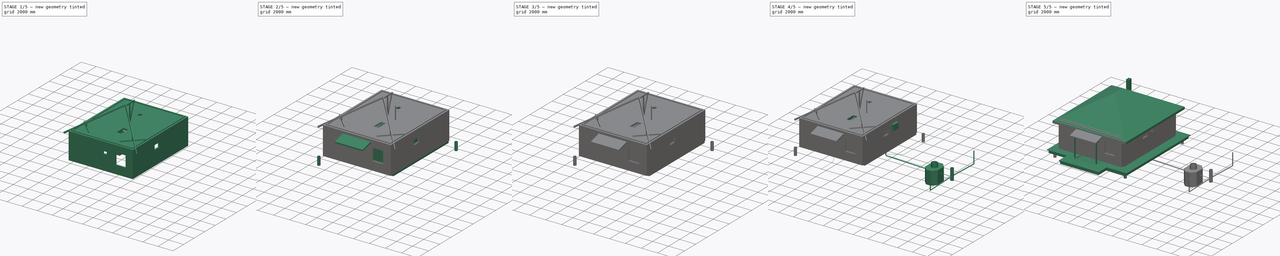
[diagram: build sequence overview — one tinted view per stage of 5, left to right]
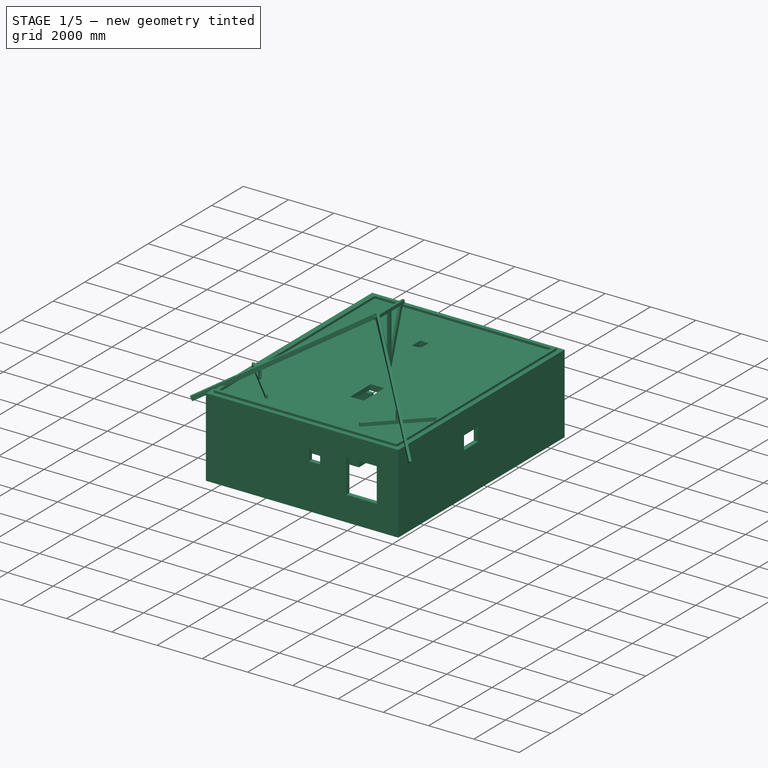
[diagram: stage 1 of 5 — iso view after this stage's code; geometry added in this stage tinted green]
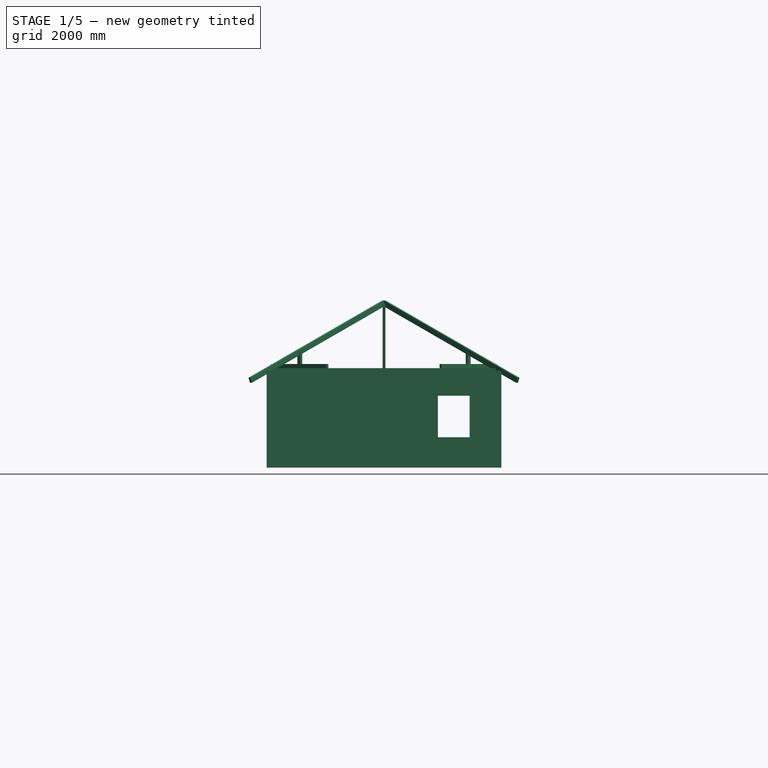
[diagram: stage 1 of 5 — front view after this stage's code; geometry added in this stage tinted green]
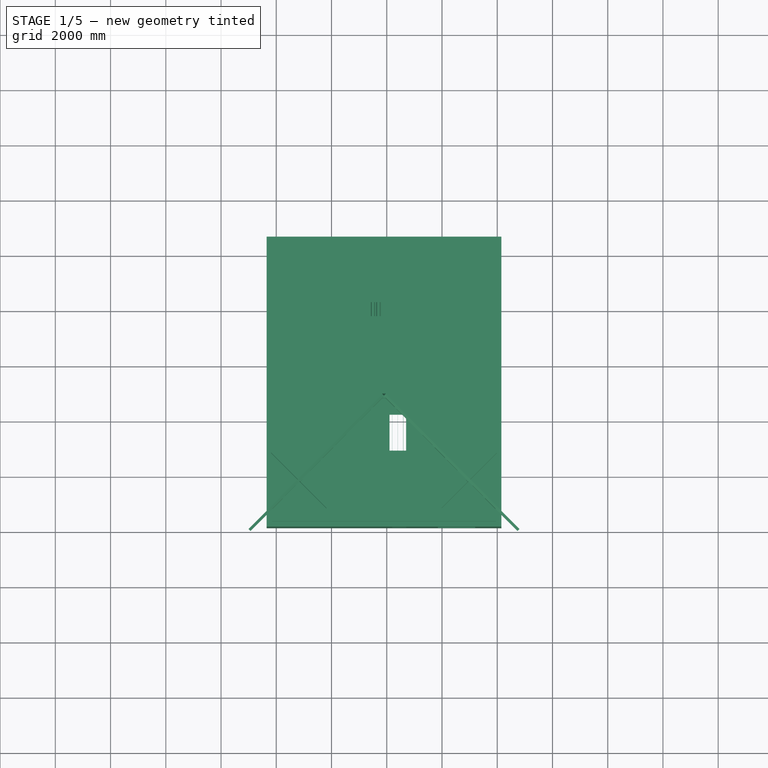
[diagram: stage 1 of 5 — top view after this stage's code; geometry added in this stage tinted green]
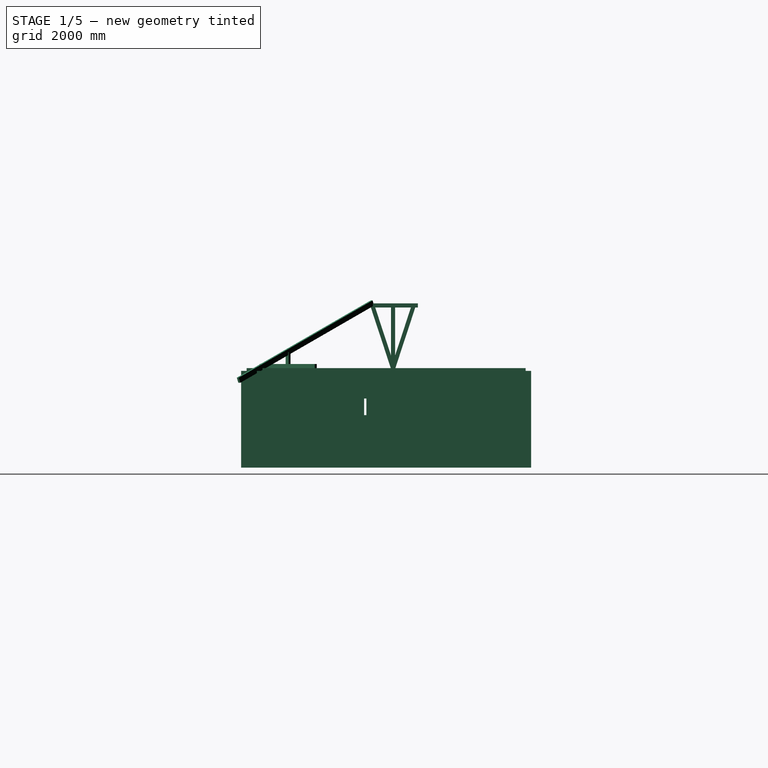
[diagram: stage 1 of 5 — right view after this stage's code; geometry added in this stage tinted green]
FCSTD DOCUMENT  (FreeCAD 0.18.4R)
Label: small_one_family_house_v8_1_monolit
License: All rights reserved
LicenseURL: http://en.wikipedia.org/wiki/All_rights_reserved
objects: Part::Part2DObjectPython×221, Part::FeaturePython×212, Part::Box×60, App::GeometryPython×31, App::DocumentObjectGroup×24, Sketcher::SketchObject×22, Part::Extrusion×10, App::FeaturePython×10, Part::Mirroring×9, Part::MultiFuse×8, Part::Feature×3, Part::Cylinder×2, Part::Fuse×1, Part::Loft×1, Part::Fillet×1
note: 581 computed .brp shape members not serialized (recipe doc carries the construction recipe); baked Part::Feature solids carry a one-line shape summary decoded from their .brp

FEATURE [Part::Part2DObjectPython] Rectangle387  label="проём в плите под лестн. 001"  # Draft 2D object (typed FeaturePython)
  ChamferSize = 0
  Columns = 1
  FilletRadius = 0
  Height = 1300
  Length = 600
  MakeFace = false
  Placement = pos=(4100,900,0) rot=(0,0,1;0rad)
  Rows = 1
FEATURE [Part::FeaturePython] Structure177  label="проём в плите под лестн."  # Arch/BIM object (typed FeaturePython)
  Base = -> Rectangle387
  FaceMaker = 0
  Height = 600
  HorizontalArea = 780000
  IfcRole = 0
  Length = 0
  MoveWithHost = false
  Nodes = (2) [(5450,5550,0),(5450,5550,500)]
  NodesOffset = 0
  Normal = (0,0,0)
  PerimeterLength = 3800
  Placement = pos=(0,0,2820) rot=(0,0,1;0rad)
  VerticalArea = 2280000
  Width = 100
FEATURE [Part::FeaturePython] Structure178  label="проём_дымохода"  # Arch/BIM object (typed FeaturePython)
  Base = -> Rectangle381
  FaceMaker = 0
  Height = 600
  HorizontalArea = 193800
  IfcRole = 0
  Length = 0
  MoveWithHost = false
  Nodes = (2) [(3838.98,5661.82,0),(3838.98,5661.82,500)]
  NodesOffset = 0
  Normal = (0,0,0)
  PerimeterLength = 1780
  Placement = pos=(0,0,2820) rot=(0,0,1;0rad)
  VerticalArea = 1068000
  Width = 100
FEATURE [Part::FeaturePython] Structure188  label="дверь"  # Arch/BIM object (typed FeaturePython)
  Base = -> Rectangle365
  FaceMaker = 0
  Height = 2420
  HorizontalArea = 350000
  IfcRole = 0
  Length = 0
  MoveWithHost = false
  Nodes = (2) [(-4225,7937.5,0),(-4225,7937.5,2250)]
  NodesOffset = 0
  Normal = (0,0,0)
  PerimeterLength = 2700
  VerticalArea = 6534000
  Width = 100
FEATURE [Part::FeaturePython] Structure191  label="окно_мал_60x90 ванная"  # Arch/BIM object (typed FeaturePython)
  Base = -> Rectangle364
  FaceMaker = 0
  Height = 600
  HorizontalArea = 315000
  IfcRole = 0
  Length = 0
  MoveWithHost = false
  Nodes = (2) [(-2750,7975,0),(-2750,7975,600)]
  NodesOffset = 0
  Normal = (0,0,0)
  PerimeterLength = 2500
  Placement = pos=(0,0,1720) rot=(0,0,1;0rad)
  VerticalArea = 1.5e+06
  Width = 100
FEATURE [Part::FeaturePython] Structure192  label="окно_бол_001"  # Arch/BIM object (typed FeaturePython)
  Base = -> Rectangle374
  FaceMaker = 0
  Height = 1500
  HorizontalArea = 472500
  IfcRole = 0
  Length = 0
  MoveWithHost = false
  Nodes = (2) [(1187.5,6500,0),(1187.5,6500,1500)]
  NodesOffset = 0
  Normal = (0,0,0)
  PerimeterLength = 3400
  Placement = pos=(0,0,920) rot=(0,0,1;0rad)
  VerticalArea = 5100000
  Width = 100
FEATURE [Part::FeaturePython] Structure193  label="окно_бол_016"  # Arch/BIM object (typed FeaturePython)
  Base = -> Rectangle375
  FaceMaker = 0
  Height = 1500
  HorizontalArea = 472500
  IfcRole = 0
  Length = 0
  MoveWithHost = false
  Nodes = (2) [(-2125,-187.5,0),(-2125,-187.5,1500)]
  NodesOffset = 0
  Normal = (0,0,0)
  PerimeterLength = 3400
  Placement = pos=(0,0,920) rot=(0,0,1;0rad)
  VerticalArea = 5100000
  Width = 100
FEATURE [Part::FeaturePython] Structure194  label="окно_бол_015"  # Arch/BIM object (typed FeaturePython)
  Base = -> Rectangle395
  FaceMaker = 0
  Height = 1500
  HorizontalArea = 472500
  IfcRole = 0
  Length = 0
  MoveWithHost = false
  Nodes = (2) [(7937.5,-2125,0),(7937.5,-2125,1500)]
  NodesOffset = 0
  Normal = (0,0,0)
  PerimeterLength = 3400
  Placement = pos=(0,0,920) rot=(0,0,1;0rad)
  VerticalArea = 5100000
  Width = 100
FEATURE [Part::FeaturePython] Structure195  label="окно_мал_50х50"  # Arch/BIM object (typed FeaturePython)
  Base = -> Rectangle377
  FaceMaker = 0
  Height = 500
  HorizontalArea = 175000
  IfcRole = 0
  Length = 0
  MoveWithHost = false
  Nodes = (2) [(-187.5,2950,0),(-187.5,2950,500)]
  NodesOffset = 0
  Normal = (0,0,0)
  PerimeterLength = 1700
  Placement = pos=(0,0,1820) rot=(0,0,1;0rad)
  VerticalArea = 850000
  Width = 100
FEATURE [App::GeometryPython] BuildingPart034  label="камино-печь 4х2.5 кирпича Н.Золотарёв001"  # Arch/BIM object (typed FeaturePython)
  Area = 0
  Group = -> [Structure173,Structure171,Wall]
  Height = 0
  IfcRole = 0
  LevelOffset = 0
FEATURE [Part::Part2DObjectPython] Rectangle605  label="проём_двери_на_террасу"  # Draft 2D object (typed FeaturePython)
  ChamferSize = 0
  Columns = 1
  FilletRadius = 0
  Height = 350
  Length = 800
  MakeFace = true
  Placement = pos=(6200,8300,0) rot=(0,0,1;0rad)
  Rows = 1
FEATURE [Part::Part2DObjectPython] Rectangle606  label="стена под окном на террасу"  # Draft 2D object (typed FeaturePython)
  ChamferSize = 0
  Columns = 1
  FilletRadius = 0
  Height = 350
  Length = 1000
  MakeFace = true
  Placement = pos=(5200,8300,0) rot=(0,0,1;0rad)
  Rows = 1
FEATURE [Part::FeaturePython] Structure196  label="окно_на_террасу"  # Arch/BIM object (typed FeaturePython)
  Base = -> Rectangle606
  FaceMaker = 0
  Height = 1500
  HorizontalArea = 350000
  IfcRole = 0
  Length = 0
  MoveWithHost = false
  Nodes = (2) [(5700,7937.5,0),(5700,7937.5,1500)]
  NodesOffset = 0
  Normal = (0,0,0)
  PerimeterLength = 2700
  Placement = pos=(0,0,920) rot=(0,0,1;0rad)
  VerticalArea = 4.05e+06
  Width = 100
FEATURE [Part::FeaturePython] Structure293  label="дверь_на_террасу"  # Arch/BIM object (typed FeaturePython)
  Base = -> Rectangle605
  FaceMaker = 0
  Height = 2420
  HorizontalArea = 280000
  IfcRole = 0
  Length = 0
  MoveWithHost = false
  Nodes = (2) [(6562.5,7937.5,0),(6562.5,7937.5,2500)]
  NodesOffset = 0
  Normal = (0,0,0)
  PerimeterLength = 2300
  VerticalArea = 5566000
  Width = 100
FEATURE [App::GeometryPython] BuildingPart068  label="пол (100 мм ПСБ-25 + стяжка 60мм+чист. 20мм)"  # Arch/BIM object (typed FeaturePython)
  Area = 0
  Group = -> [Structure345,Structure348,Structure357,Structure349,Structure347,Structure353,Structure351,Structure359,Structure355,Structure358,Structure354,Structure356,Structure350,Structure352,Structure346]
  Height = 0
  IfcRole = 0
  LevelOffset = 0
FEATURE [App::GeometryPython] BuildingPart069  label="Окна и двери"  # Arch/BIM object (typed FeaturePython)
  Area = 0
  Group = -> [Window,Window004,Window002,Window003,Window005,Window006,Window007,Window001]
  Height = 0
  IfcRole = 0
  LevelOffset = 0
FEATURE [Part::Part2DObjectPython] Rectangle668  label="профнастил Н114-600*13_001"  # Draft 2D object (typed FeaturePython)
  ChamferSize = 0
  Columns = 1
  FilletRadius = 0
  Height = 4600
  Length = 7846
  MakeFace = false
  Placement = pos=(-23,3750,2820) rot=(0,0,1;0rad)
  Rows = 1
FEATURE [Part::Part2DObjectPython] Rectangle669  label="профнастил Н114-600*13_002"  # Draft 2D object (typed FeaturePython)
  ChamferSize = 0
  Columns = 1
  FilletRadius = 0
  Height = 4750
  Length = 7846
  MakeFace = false
  Placement = pos=(-23,-1050,2820) rot=(0,0,1;0rad)
  Rows = 1
FEATURE [Part::Part2DObjectPython] Line648  # Draft 2D object (typed FeaturePython)
  ChamferSize = 0
  Closed = false
  End = (623,-2000,0)
  FilletRadius = 0
  Length = 23
  MakeFace = true
  Placement = pos=(600,-2000,0) rot=(0,0,1;0rad)
  Points = (2) [(0,0,0),(23,0,0)]
  Start = (600,-2000,0)
  Subdivisions = 0
FEATURE [Part::Part2DObjectPython] Wire201  label="профнастил Н114-600_профиль_01"  # Draft 2D object (typed FeaturePython)
  ChamferSize = 0
  Closed = false
  End = (623,-1050,2820)
  FilletRadius = 0
  Length = 1230.47
  MakeFace = true
  Placement = pos=(-23,-1050,2820) rot=(1,0,0;1.5708rad)
  Points = (14) [(0,0,0),(53,0,0),(71,114,0),(175,114,0),(193,0,0),(253,0,0),(271,114,0),(375,114,0),(393,0,0),(453,0,0),(471,114,0),(575,114,0),(593,0,0),(646,0,0)]
  Start = (-23,-1050,2820)
  Subdivisions = 0
FEATURE [Part::FeaturePython] Wall082  label="перекр. Н114-600 L4750"  # Arch/BIM object (typed FeaturePython)
  Align = 0
  Base = -> Wire201
  BlockHeight = 0
  BlockLength = 0
  CountBroken = 0
  CountEntire = 0
  Face = 0
  Height = 4750
  HorizontalArea = 0
  IfcRole = 156
  Joint = 0
  Length = 1230.47
  MakeBlocks = false
  MoveWithHost = false
  Normal = (0,1,0)
  OffsetFirst = 0
  OffsetSecond = 0
  PerimeterLength = 0
  VerticalArea = 0
  Width = 1
FEATURE [Part::Part2DObjectPython] Wire202  label="профнастил Н114-600_профиль_002"  # Draft 2D object (typed FeaturePython)
  ChamferSize = 0
  Closed = false
  End = (623,3750,2820)
  FilletRadius = 0
  Length = 1230.47
  MakeFace = true
  Placement = pos=(-23,3750,2820) rot=(1,0,0;1.5708rad)
  Points = (14) [(0,0,0),(53,0,0),(71,114,0),(175,114,0),(193,0,0),(253,0,0),(271,114,0),(375,114,0),(393,0,0),(453,0,0),(471,114,0),(575,114,0),(593,0,0),(646,0,0)]
  Start = (-23,3750,2820)
  Subdivisions = 0
FEATURE [App::DocumentObjectGroup] Group072  label="перекрытие"
  Group = -> [Rectangle668,Rectangle669,Wire201,Wire202]
FEATURE [Part::FeaturePython] Wall083  label="перекр. Н114-600 L4600"  # Arch/BIM object (typed FeaturePython)
  Align = 0
  Base = -> Wire202
  BlockHeight = 0
  BlockLength = 0
  CountBroken = 0
  CountEntire = 0
  Face = 0
  Height = 4600
  HorizontalArea = 0
  IfcRole = 156
  Joint = 0
  Length = 1230.47
  MakeBlocks = false
  MoveWithHost = false
  Normal = (0,1,0)
  OffsetFirst = 0
  OffsetSecond = 0
  PerimeterLength = 0
  VerticalArea = 0
  Width = 1
FEATURE [Part::FeaturePython] Array025  label="перекр. Н114-600 L4600*13"  # Draft array (typed FeaturePython)
  Angle = 360
  ArrayType = 0
  Axis = (0,0,1)
  Base = -> Wall083
  Center = (0,0,0)
  Fuse = false
  IntervalAxis = (0,0,0)
  IntervalX = (600,0,0)
  IntervalY = (0,1,0)
  IntervalZ = (0,0,1)
  NumberPolar = 1
  NumberX = 13
  NumberY = 1
  NumberZ = 1
FEATURE [Part::FeaturePython] Wall084  label="Утепление ПСБ-25 200мм"  # Arch/BIM object (typed FeaturePython)
  Align = 1
  Base = -> Rectangle667
  BlockHeight = 0
  BlockLength = 0
  CountBroken = 0
  CountEntire = 0
  Face = 0
  Height = 3500
  HorizontalArea = 7.87e+06
  IfcRole = 156
  Joint = 0
  Length = 38000
  MakeBlocks = false
  MoveWithHost = false
  Normal = (0,0,0)
  OffsetFirst = 0
  OffsetSecond = 0
  PerimeterLength = 37000
  Placement = pos=(0,0,-180) rot=(0,0,1;0rad)
  Subtractions = -> [Structure194,Structure196,Structure293,Structure195,Structure193,Structure188,Structure192,Structure191]
  VerticalArea = 207846000
  Width = 200
FEATURE [Part::Part2DObjectPython] Wire203  label="короб воздуховода и стояк 01"  # Draft 2D object (typed FeaturePython)
  ChamferSize = 0
  Closed = false
  End = (4800,3650,0)
  FilletRadius = 0
  Length = 1200
  MakeFace = false
  Placement = pos=(5050,2700,0) rot=(0,0,1;0rad)
  Points = (3) [(0,0,0),(-250,0,0),(-250,950,0)]
  Start = (5050,2700,0)
  Subdivisions = 0
FEATURE [Part::FeaturePython] Wall086  label="короб воздуховода и стояка гипрок"  # Arch/BIM object (typed FeaturePython)
  Align = 1
  Base = -> Wire203
  BlockHeight = 0
  BlockLength = 0
  CountBroken = 0
  CountEntire = 0
  Face = 0
  Height = 2420
  HorizontalArea = 18225
  IfcRole = 156
  Joint = 0
  Length = 1200
  MakeBlocks = false
  MoveWithHost = false
  Normal = (0,0,0)
  OffsetFirst = 0
  OffsetSecond = 0
  PerimeterLength = 2460
  VerticalArea = 5.9532e+06
  Width = 15
FEATURE [Part::FeaturePython] Structure360  label="плита перекрытия по профнастилу"  # Arch/BIM object (typed FeaturePython)
  Base = -> Rectangle666
  FaceMaker = 0
  Height = 150
  HorizontalArea = 8.08362e+07
  IfcRole = 0
  Length = 0
  MoveWithHost = false
  Nodes = (2) [(3900,3400,0),(3900,3400,150)]
  NodesOffset = 0
  Normal = (0,0,0)
  PerimeterLength = 36400
  Placement = pos=(0,0,2820) rot=(0,0,1;0rad)
  Subtractions = -> [Structure178,Structure177]
  VerticalArea = 6297000
  Width = 100
FEATURE [Part::FeaturePython] Structure362  label="стяжка 50мм"  # Arch/BIM object (typed FeaturePython)
  Base = -> Rectangle565
  FaceMaker = 0
  Height = 50
  HorizontalArea = 75466200
  IfcRole = 0
  Length = 0
  MoveWithHost = false
  Nodes = (2) [(3900,3400,0),(3900,3400,50)]
  NodesOffset = 0
  Normal = (0,0,0)
  PerimeterLength = 35200
  Placement = pos=(0,0,3270) rot=(0,0,1;0rad)
  Subtractions = -> [Structure178,Structure177]
  VerticalArea = 2039000
  Width = 100
FEATURE [Part::FeaturePython] Wall088  label="мауэрлат 150х100"  # Arch/BIM object (typed FeaturePython)
  Align = 1
  Base = -> Rectangle666
  BlockHeight = 0
  BlockLength = 0
  CountBroken = 0
  CountEntire = 0
  Face = 0
  Height = 100
  HorizontalArea = 5.37e+06
  IfcRole = 156
  Joint = 0
  Length = 36400
  MakeBlocks = false
  MoveWithHost = false
  Normal = (0,0,0)
  OffsetFirst = 0
  OffsetSecond = 0
  PerimeterLength = 36400
  Placement = pos=(0,0,3320) rot=(0,0,1;0rad)
  VerticalArea = 7160000
  Width = 150
FEATURE [Part::Part2DObjectPython] Line651  label="брус коньковый 001"  # Draft 2D object (typed FeaturePython)
  ChamferSize = 0
  Closed = false
  End = (3900,2750,5691.28)
  FilletRadius = 0
  Length = 1800
  MakeFace = false
  Placement = pos=(3900,4550,5701.28) rot=(0,0,1;0rad)
  Points = (2) [(0,9.09495e-13,-10),(0,-1800,-10)]
  Start = (3900,4550,5691.28)
  Subdivisions = 0
FEATURE [Part::FeaturePython] Pipe064  label="брус коньковый 002"  # Arch/BIM object (typed FeaturePython)
  Base = -> Line651
  Diameter = 50
  HorizontalArea = 0
  IfcRole = 98
  Length = 1800
  MoveWithHost = false
  OffsetEnd = 0
  OffsetStart = 0
  PerimeterLength = 0
  Profile = -> Rectangle665
  VerticalArea = 0
FEATURE [Part::Part2DObjectPython] Line652  label="ось  Y"  # Draft 2D object (typed FeaturePython)
  ChamferSize = 0
  Closed = false
  End = (3900,9350,0)
  FilletRadius = 0
  Length = 5700
  MakeFace = false
  Placement = pos=(3900,3650,0) rot=(0,0,1;0rad)
  Points = (2) [(0,0,0),(1.81899e-12,5700,0)]
  Start = (3900,3650,0)
  Subdivisions = 0
FEATURE [Part::Part2DObjectPython] Line653  label="ось X"  # Draft 2D object (typed FeaturePython)
  ChamferSize = 0
  Closed = false
  End = (3900,3650,0)
  FilletRadius = 0
  Length = 4950
  MakeFace = false
  Placement = pos=(8850,3650,0) rot=(0,0,1;0rad)
  Points = (2) [(0,0,0),(-4950,9.09495e-13,0)]
  Start = (8850,3650,0)
  Subdivisions = 0
FEATURE [Part::Part2DObjectPython] Line654  label="уровень перекрытия чердака"  # Draft 2D object (typed FeaturePython)
  ChamferSize = 0
  Closed = false
  End = (3900,3650,3320)
  FilletRadius = 0
  Length = 3320
  MakeFace = false
  Placement = pos=(3900,3650,0) rot=(0,0,1;0rad)
  Points = (2) [(0,0,0),(0,0,3320)]
  Start = (3900,3650,0)
  Subdivisions = 0
FEATURE [Part::Part2DObjectPython] Line655  label="лежень"  # Draft 2D object (typed FeaturePython)
  ChamferSize = 0
  Closed = false
  End = (3900,3650,3420)
  FilletRadius = 0
  Length = 100
  MakeFace = false
  Placement = pos=(3900,3650,3320) rot=(0,0,1;0rad)
  Points = (2) [(0,0,0),(0,0,100)]
  Start = (3900,3650,3320)
  Subdivisions = 0
FEATURE [Part::Part2DObjectPython] Line656  label="подкос_105"  # Draft 2D object (typed FeaturePython)
  ChamferSize = 0
  Closed = false
  End = (3900,3650,5691.28)
  FilletRadius = 0
  Length = 2281.28
  MakeFace = false
  Placement = pos=(3900,3650,3420) rot=(0,0,1;0rad)
  Points = (2) [(0,9.09495e-13,-10),(0,9.09495e-13,2271.28)]
  Start = (3900,3650,3410)
  Subdivisions = 0
FEATURE [Part::FeaturePython] Pipe067  label="подкос_106"  # Arch/BIM object (typed FeaturePython)
  Base = -> Line656
  Diameter = 50
  HorizontalArea = 0
  IfcRole = 98
  Length = 2281.28
  MoveWithHost = false
  OffsetEnd = 0
  OffsetStart = 0
  PerimeterLength = 0
  Profile = -> Rectangle665
  VerticalArea = 0
FEATURE [Part::Part2DObjectPython] Line657  label="подкос_103"  # Draft 2D object (typed FeaturePython)
  ChamferSize = 0
  Closed = false
  End = (3900,3650,3410)
  FilletRadius = 0
  Length = 2401.4
  MakeFace = false
  Placement = pos=(3900,2900,5701.28) rot=(0,0,1;0rad)
  Points = (2) [(0,9.09495e-13,-10),(0,750,-2291.28)]
  Start = (3900,2900,5691.28)
  Subdivisions = 0
FEATURE [Part::Part2DObjectPython] Line658  label="подкос_104"  # Draft 2D object (typed FeaturePython)
  ChamferSize = 0
  Closed = false
  End = (3900,4400,5691.28)
  FilletRadius = 0
  Length = 2401.4
  MakeFace = false
  Placement = pos=(3900,3650,3420) rot=(0,0,1;0rad)
  Points = (2) [(0,9.09495e-13,-10),(0,750,2271.28)]
  Start = (3900,3650,3410)
  Subdivisions = 0
FEATURE [Part::FeaturePython] Pipe068  label="подкос_111"  # Arch/BIM object (typed FeaturePython)
  Base = -> Line657
  Diameter = 50
  HorizontalArea = 0
  IfcRole = 98
  Length = 2401.4
  MoveWithHost = false
  OffsetEnd = 0
  OffsetStart = 0
  PerimeterLength = 0
  Profile = -> Rectangle665
  VerticalArea = 0
FEATURE [Part::FeaturePython] Pipe069  label="подкос_112"  # Arch/BIM object (typed FeaturePython)
  Base = -> Line658
  Diameter = 50
  HorizontalArea = 0
  IfcRole = 98
  Length = 2401.4
  MoveWithHost = false
  OffsetEnd = 0
  OffsetStart = 0
  PerimeterLength = 0
  Profile = -> Rectangle665
  VerticalArea = 0
FEATURE [Part::Part2DObjectPython] Rectangle  label="Стена ЖБ 150мм внутр. нес. 001"  # Draft 2D object (typed FeaturePython)
  ChamferSize = 0
  Columns = 1
  FilletRadius = 0
  Height = 150
  Length = 7800
  MakeFace = true
  Placement = pos=(-9.752e-13,3650,0) rot=(0,0,1;0rad)
  Rows = 1
FEATURE [App::DocumentObjectGroup] Group037  label="стены и перегородки"
  Group = -> [Wire060,Wire061,Wire062,Wire063,Wire064,Wire066,Rectangle377,Rectangle372,Rectangle367,Rectangle365,Rectangle364,Rectangle362,Rectangle363,Rectangle375,Rectangle374,Rectangle382,Rectangle395,Wire100,Rectangle541,Line518,Line517,Arc003,Arc006,Wire159,Rectangle563,Rectangle381,Arc,Line540,Arc007,Arc008,Line539,Line538,Rectangle586,Line549,Line552,Arc013,Line557,Line558,Rectangle595,Rectangle597,+9 more]
FEATURE [Part::FeaturePython] Structure363  label="проём двери вн. 002"  # Arch/BIM object (typed FeaturePython)
  Base = -> Rectangle563
  FaceMaker = 0
  Height = 2300
  HorizontalArea = 135000
  IfcRole = 0
  Length = 0
  MoveWithHost = false
  Nodes = (2) [(-4225,7937.5,0),(-4225,7937.5,2250)]
  NodesOffset = 0
  Normal = (0,0,0)
  PerimeterLength = 2100
  Placement = pos=(0,0,-180) rot=(0,0,1;0rad)
  VerticalArea = 4830000
  Width = 100
FEATURE [Part::FeaturePython] Structure364  label="проём двери вн. 001"  # Arch/BIM object (typed FeaturePython)
  Base = -> Rectangle382
  FaceMaker = 0
  Height = 2300
  HorizontalArea = 187500
  IfcRole = 0
  Length = 0
  MoveWithHost = false
  Nodes = (2) [(-4225,7937.5,0),(-4225,7937.5,2250)]
  NodesOffset = 0
  Normal = (0,0,0)
  PerimeterLength = 2800
  Placement = pos=(0,0,-180) rot=(0,0,1;0rad)
  VerticalArea = 6440000
  Width = 100
FEATURE [Part::FeaturePython] Wall089  label="проём теплоизол. трубы"  # Arch/BIM object (typed FeaturePython)
  Align = 0
  Base = -> Rectangle381
  BlockHeight = 0
  BlockLength = 0
  CountBroken = 0
  CountEntire = 0
  Face = 0
  Height = 300
  HorizontalArea = 434000
  IfcRole = 156
  Joint = 0
  Length = 1780
  MakeBlocks = false
  MoveWithHost = false
  Normal = (0,0,1)
  OffsetFirst = 0
  OffsetSecond = 0
  PerimeterLength = 3180
  Placement = pos=(0,0,2970) rot=(0,0,1;0rad)
  VerticalArea = 1488000
  Width = 175
FEATURE [Part::FeaturePython] Wall090  label="проём обрамление лестницы"  # Arch/BIM object (typed FeaturePython)
  Align = 0
  Base = -> Rectangle387
  BlockHeight = 0
  BlockLength = 0
  CountBroken = 0
  CountEntire = 0
  Face = 0
  Height = 300
  HorizontalArea = 787500
  IfcRole = 156
  Joint = 0
  Length = 3800
  MakeBlocks = false
  MoveWithHost = false
  Normal = (0,0,1)
  OffsetFirst = 0
  OffsetSecond = 0
  PerimeterLength = 5200
  Placement = pos=(0,0,2970) rot=(0,0,1;0rad)
  VerticalArea = 2700000
  Width = 175
FEATURE [App::GeometryPython] BuildingPart  label="проёмы"  # Arch/BIM object (typed FeaturePython)
  Area = 0
  Group = -> [Structure188,Structure191,Structure192,Structure193,Structure194,Structure195,Structure196,Structure177,Structure178,Structure293,Structure364,Structure363,Wall089,Wall090]
  Height = 0
  IfcRole = 0
  LevelOffset = 0
  Placement = pos=(-50,0,0) rot=(0,0,1;0rad)
FEATURE [Part::FeaturePython] Structure361  label="ППС-15 300мм утепл. перекр."  # Arch/BIM object (typed FeaturePython)
  Base = -> Rectangle565
  FaceMaker = 0
  Height = 300
  HorizontalArea = 74244700
  IfcRole = 0
  Length = 0
  MoveWithHost = false
  Nodes = (2) [(3900,3400,0),(3900,3400,300)]
  NodesOffset = 0
  Normal = (0,0,0)
  PerimeterLength = 35200
  Placement = pos=(0,0,2970) rot=(0,0,1;0rad)
  Subtractions = -> [Structure178,Structure177,Wall089,Wall090]
  VerticalArea = 13074000
  Width = 100
FEATURE [App::GeometryPython] BuildingPart055  label="Отопление и вентиляция"  # Arch/BIM object (typed FeaturePython)
  Area = 0
  Group = -> [Pipe032,Pipe038,Pipe039,Pipe037,Pipe034,Pipe036,Pipe033,Structure260,Structure261,Pipe040,Pipe035,Pipe041,Pipe042,Pipe043,Pipe044,Structure262,Pipe051,Pipe052,Pipe053,Pipe054,Pipe055,Pipe056]
  Height = 0
  IfcRole = 0
  LevelOffset = 0
FEATURE [App::GeometryPython] BuildingPart062  label="Инженерные системы"  # Arch/BIM object (typed FeaturePython)
  Area = 0
  Group = -> [BuildingPart060,BuildingPart051,BuildingPart055,BuildingPart061]
  Height = 0
  IfcRole = 0
  LevelOffset = 0
FEATURE [App::DocumentObjectGroup] Group067  label="инж.системы"
  Group = -> [Group066,Group071]
FEATURE [Part::Part2DObjectPython] Line  # Draft 2D object (typed FeaturePython)
  ChamferSize = 0
  Closed = false
  End = (600,3530,0)
  FilletRadius = 0
  Length = 80
  MakeFace = false
  Placement = pos=(600,3610,0) rot=(0,0,1;0rad)
  Points = (2) [(0,0,0),(0,-80,0)]
  Start = (600,3610,0)
  Subdivisions = 0
FEATURE [Part::Part2DObjectPython] Line660  # Draft 2D object (typed FeaturePython)
  ChamferSize = 0
  Closed = false
  End = (1000,3530,0)
  FilletRadius = 0
  Length = 400
  MakeFace = false
  Placement = pos=(600,3530,0) rot=(0,0,1;0rad)
  Points = (2) [(0,0,0),(400,0,0)]
  Start = (600,3530,0)
  Subdivisions = 0
FEATURE [Part::Part2DObjectPython] Line661  # Draft 2D object (typed FeaturePython)
  ChamferSize = 0
  Closed = false
  End = (1000,3080,0)
  FilletRadius = 0
  Length = 400
  MakeFace = false
  Placement = pos=(600,3080,0) rot=(0,0,1;0rad)
  Points = (2) [(0,0,0),(400,0,0)]
  Start = (600,3080,0)
  Subdivisions = 0
FEATURE [Part::Part2DObjectPython] Line662  # Draft 2D object (typed FeaturePython)
  ChamferSize = 0
  Closed = false
  End = (600,3000,0)
  FilletRadius = 0
  Length = 80
  MakeFace = false
  Placement = pos=(600,3080,0) rot=(0,0,1;0rad)
  Points = (2) [(0,0,0),(2.27374e-13,-80,0)]
  Start = (600,3080,0)
  Subdivisions = 0
FEATURE [Part::Part2DObjectPython] Line663  # Draft 2D object (typed FeaturePython)
  ChamferSize = 0
  Closed = false
  End = (-400,3080,0)
  FilletRadius = 0
  Length = 1000
  MakeFace = false
  Placement = pos=(600,3080,0) rot=(0,0,1;0rad)
  Points = (2) [(0,0,0),(-1000,0,0)]
  Start = (600,3080,0)
  Subdivisions = 0
FEATURE [Part::Part2DObjectPython] Line664  # Draft 2D object (typed FeaturePython)
  ChamferSize = 0
  Closed = false
  End = (3600,3080,0)
  FilletRadius = 0
  Length = 2600
  MakeFace = false
  Placement = pos=(1000,3080,0) rot=(0,0,1;0rad)
  Points = (2) [(0,0,0),(2600,0,0)]
  Start = (1000,3080,0)
  Subdivisions = 0
FEATURE [Part::Part2DObjectPython] Line665  # Draft 2D object (typed FeaturePython)
  ChamferSize = 0
  Closed = false
  End = (3600,3080,-200)
  FilletRadius = 0
  Length = 200
  MakeFace = false
  Placement = pos=(3600,3080,0) rot=(0,0,1;0rad)
  Points = (2) [(0,0,0),(0,0,-200)]
  Start = (3600,3080,0)
  Subdivisions = 0
FEATURE [Part::Part2DObjectPython] Line668  # Draft 2D object (typed FeaturePython)
  ChamferSize = 0
  Closed = false
  End = (8300,3500,0)
  FilletRadius = 0
  Length = 250
  MakeFace = false
  Placement = pos=(8300,3750,0) rot=(0,0,1;0rad)
  Points = (2) [(0,0,0),(0,-250,0)]
  Start = (8300,3750,0)
  Subdivisions = 0
FEATURE [Part::Part2DObjectPython] Line670  # Draft 2D object (typed FeaturePython)
  ChamferSize = 0
  Closed = false
  End = (8300,3750,-50)
  FilletRadius = 0
  Length = 50
  MakeFace = false
  Placement = pos=(8300,3750,0) rot=(0,0,1;0rad)
  Points = (2) [(0,0,0),(0,0,-50)]
  Start = (8300,3750,0)
  Subdivisions = 0
FEATURE [Part::Part2DObjectPython] Line672  # Draft 2D object (typed FeaturePython)
  ChamferSize = 0
  Closed = false
  End = (8350,3500,0)
  FilletRadius = 0
  Length = 100
  MakeFace = false
  Placement = pos=(8350,3600,0) rot=(0,0,1;0rad)
  Points = (2) [(0,0,0),(0,-100,0)]
  Start = (8350,3600,0)
  Subdivisions = 0
FEATURE [Part::Part2DObjectPython] Line673  # Draft 2D object (typed FeaturePython)
  ChamferSize = 0
  Closed = false
  End = (8350,3750,0)
  FilletRadius = 0
  Length = 150
  MakeFace = false
  Placement = pos=(8350,3600,0) rot=(0,0,1;0rad)
  Points = (2) [(0,0,0),(0,150,0)]
  Start = (8350,3600,0)
  Subdivisions = 0
FEATURE [Part::Part2DObjectPython] Line674  # Draft 2D object (typed FeaturePython)
  ChamferSize = 0
  Closed = false
  End = (8350,3750,-50)
  FilletRadius = 0
  Length = 50
  MakeFace = false
  Placement = pos=(8350,3750,0) rot=(0,0,1;0rad)
  Points = (2) [(0,0,0),(0,0,-50)]
  Start = (8350,3750,0)
  Subdivisions = 0
FEATURE [Part::Part2DObjectPython] Line675  # Draft 2D object (typed FeaturePython)
  ChamferSize = 0
  Closed = false
  End = (8350,3450,0)
  FilletRadius = 0
  Length = 300
  MakeFace = false
  Placement = pos=(8350,3750,0) rot=(0,0,1;0rad)
  Points = (2) [(0,0,0),(0,-300,0)]
  Start = (8350,3750,0)
  Subdivisions = 0
FEATURE [Part::Part2DObjectPython] Rectangle671  label="терморазрыв 100мм ЭППС верт."  # Draft 2D object (typed FeaturePython)
  ChamferSize = 0
  Columns = 1
  FilletRadius = 0
  Height = 625
  Length = 150
  MakeFace = true
  Placement = pos=(-150,-900,0) rot=(0,0,1;0rad)
  Rows = 1
FEATURE [Part::Part2DObjectPython] Rectangle673  label="терморазрыв 100мм ЭППС гор."  # Draft 2D object (typed FeaturePython)
  ChamferSize = 0
  Columns = 1
  FilletRadius = 0
  Height = 625
  Length = 150
  MakeFace = true
  Placement = pos=(850,-1150,0) rot=(0,0,1;1.5708rad)
  Rows = 1
FEATURE [Part::FeaturePython] Array  label="терморазрыв 250мм ГБ гор.  012"  # Draft array (typed FeaturePython)
  Angle = 360
  ArrayType = 0
  Axis = (0,0,1)
  Base = -> Rectangle673
  Center = (0,0,0)
  Fuse = false
  IntervalAxis = (0,0,0)
  IntervalX = (1000,0,0)
  IntervalY = (0,1,0)
  IntervalZ = (0,0,1)
  NumberPolar = 1
  NumberX = 7
  NumberY = 1
  NumberZ = 1
  Placement = pos=(375,0,0) rot=(0,0,1;0rad)
FEATURE [Part::FeaturePython] Array026  label="терморазрыв 250мм ГБ гор.  011"  # Draft array (typed FeaturePython)
  Angle = 360
  ArrayType = 0
  Axis = (0,0,1)
  Base = -> Rectangle673
  Center = (0,0,0)
  Fuse = false
  IntervalAxis = (0,0,0)
  IntervalX = (1000,0,0)
  IntervalY = (0,1,0)
  IntervalZ = (0,0,1)
  NumberPolar = 1
  NumberX = 7
  NumberY = 1
  NumberZ = 1
  Placement = pos=(375,9450,0) rot=(0,0,1;0rad)
FEATURE [Part::FeaturePython] Array027  label="терморазрыв 250мм ГБ верт.  002"  # Draft array (typed FeaturePython)
  Angle = 360
  ArrayType = 0
  Axis = (0,0,1)
  Base = -> Rectangle671
  Center = (0,0,0)
  Fuse = false
  IntervalAxis = (0,0,0)
  IntervalX = (0,0,0)
  IntervalY = (0,1000,0)
  IntervalZ = (0,0,1)
  NumberPolar = 1
  NumberX = 1
  NumberY = 9
  NumberZ = 1
  Placement = pos=(0,300,0) rot=(0,0,1;0rad)
FEATURE [Part::FeaturePython] Array028  label="терморазрыв 250мм ГБ верт.  001"  # Draft array (typed FeaturePython)
  Angle = 360
  ArrayType = 0
  Axis = (0,0,1)
  Base = -> Rectangle671
  Center = (0,0,0)
  Fuse = false
  IntervalAxis = (0,0,0)
  IntervalX = (0,0,0)
  IntervalY = (0,1000,0)
  IntervalZ = (0,0,1)
  NumberPolar = 1
  NumberX = 1
  NumberY = 9
  NumberZ = 1
  Placement = pos=(7950,300,0) rot=(0,0,1;0rad)
FEATURE [Part::FeaturePython] Structure365  label="терморазрыв  250мм ГБ 001"  # Arch/BIM object (typed FeaturePython)
  Base = -> Array
  FaceMaker = 0
  Height = 250
  HorizontalArea = 0
  IfcRole = 0
  Length = 0
  MoveWithHost = false
  NodesOffset = 0
  Normal = (0,0,0)
  PerimeterLength = 0
  Placement = pos=(0,0,2970) rot=(0,0,1;0rad)
  VerticalArea = 0
  Width = 100
FEATURE [Part::FeaturePython] Structure366  label="терморазрыв  250мм ГБ 002"  # Arch/BIM object (typed FeaturePython)
  Base = -> Array028
  FaceMaker = 0
  Height = 250
  HorizontalArea = 0
  IfcRole = 0
  Length = 0
  MoveWithHost = false
  NodesOffset = 0
  Normal = (0,0,0)
  PerimeterLength = 0
  Placement = pos=(0,0,2970) rot=(0,0,1;0rad)
  VerticalArea = 0
  Width = 100
FEATURE [Part::FeaturePython] Structure367  label="терморазрыв  250мм ГБ 003"  # Arch/BIM object (typed FeaturePython)
  Base = -> Array027
  FaceMaker = 0
  Height = 250
  HorizontalArea = 0
  IfcRole = 0
  Length = 0
  MoveWithHost = false
  NodesOffset = 0
  Normal = (0,0,0)
  PerimeterLength = 0
  Placement = pos=(0,0,2970) rot=(0,0,1;0rad)
  VerticalArea = 0
  Width = 100
FEATURE [Part::FeaturePython] Structure368  label="терморазрыв  250мм ГБ 004"  # Arch/BIM object (typed FeaturePython)
  Base = -> Array026
  FaceMaker = 0
  Height = 250
  HorizontalArea = 0
  IfcRole = 0
  Length = 0
  MoveWithHost = false
  NodesOffset = 0
  Normal = (0,0,0)
  PerimeterLength = 0
  Placement = pos=(0,0,2970) rot=(0,0,1;0rad)
  VerticalArea = 0
  Width = 100
FEATURE [Part::FeaturePython] Wall087  label="стена ЖБ 150мм под мауэрлат"  # Arch/BIM object (typed FeaturePython)
  Align = 1
  Base = -> Rectangle666
  BlockHeight = 0
  BlockLength = 0
  CountBroken = 0
  CountEntire = 0
  Face = 0
  Height = 350
  HorizontalArea = 5.22e+06
  IfcRole = 156
  Joint = 0
  Length = 36400
  MakeBlocks = false
  MoveWithHost = false
  Normal = (0,0,0)
  OffsetFirst = 0
  OffsetSecond = 0
  PerimeterLength = 35400
  Placement = pos=(0,0,2970) rot=(0,0,1;0rad)
  Subtractions = -> [Structure365,Structure368,Structure367,Structure366]
  VerticalArea = 24360000
  Width = 150
FEATURE [Part::FeaturePython] Array029  label="терморазрыв 250 мм  ГБ  гор. 001"  # Draft array (typed FeaturePython)
  Angle = 360
  ArrayType = 0
  Axis = (0,0,1)
  Base = -> Rectangle673
  Center = (0,0,0)
  Fuse = false
  IntervalAxis = (0,0,0)
  IntervalX = (1100,0,0)
  IntervalY = (0,1,0)
  IntervalZ = (0,0,1)
  NumberPolar = 1
  NumberX = 3
  NumberY = 1
  NumberZ = 1
  Placement = pos=(0,-500,0) rot=(0,0,1;0rad)
FEATURE [Part::FeaturePython] Array030  label="терморазрыв 250 мм  ГБ  гор. 018"  # Draft array (typed FeaturePython)
  Angle = 360
  ArrayType = 0
  Axis = (0,0,1)
  Base = -> Rectangle673
  Center = (0,0,0)
  Fuse = false
  IntervalAxis = (0,0,0)
  IntervalX = (950,0,0)
  IntervalY = (0,1,0)
  IntervalZ = (0,0,1)
  NumberPolar = 1
  NumberX = 3
  NumberY = 1
  NumberZ = 1
  Placement = pos=(150,9450,0) rot=(0,0,1;0rad)
FEATURE [Part::FeaturePython] Array031  label="терморазрыв 250 мм  ГБ верт. 019"  # Draft array (typed FeaturePython)
  Angle = 360
  ArrayType = 0
  Axis = (0,0,1)
  Base = -> Rectangle671
  Center = (0,0,0)
  Fuse = false
  IntervalAxis = (0,0,0)
  IntervalX = (0,0,0)
  IntervalY = (0,900,0)
  IntervalZ = (0,0,1)
  NumberPolar = 1
  NumberX = 1
  NumberY = 2
  NumberZ = 1
  Placement = pos=(7.82e-14,1525,0) rot=(0,0,1;0rad)
FEATURE [Part::FeaturePython] Array032  label="терморазрыв 250 мм  ГБ верт. 018"  # Draft array (typed FeaturePython)
  Angle = 360
  ArrayType = 0
  Axis = (0,0,1)
  Base = -> Rectangle671
  Center = (0,0,0)
  Fuse = false
  IntervalAxis = (0,0,0)
  IntervalX = (0,0,0)
  IntervalY = (0,1100,0)
  IntervalZ = (0,0,1)
  NumberPolar = 1
  NumberX = 1
  NumberY = 4
  NumberZ = 1
  Placement = pos=(7950,5000,0) rot=(0,0,1;0rad)
FEATURE [Part::FeaturePython] Array033  label="терморазрыв 250 мм  ГБ  гор. 014"  # Draft array (typed FeaturePython)
  Angle = 360
  ArrayType = 0
  Axis = (0,0,1)
  Base = -> Rectangle673
  Center = (0,0,0)
  Fuse = false
  IntervalAxis = (0,0,0)
  IntervalX = (900,0,0)
  IntervalY = (0,1,0)
  IntervalZ = (0,0,1)
  NumberPolar = 1
  NumberX = 2
  NumberY = 1
  NumberZ = 1
  Placement = pos=(5500,-500,0) rot=(0,0,1;0rad)
FEATURE [Part::FeaturePython] Array034  label="терморазрыв 250 мм  ГБ  гор. 016"  # Draft array (typed FeaturePython)
  Angle = 360
  ArrayType = 0
  Axis = (0,0,1)
  Base = -> Rectangle673
  Center = (0,0,0)
  Fuse = false
  IntervalAxis = (0,0,0)
  IntervalX = (950,0,0)
  IntervalY = (0,1,0)
  IntervalZ = (0,0,1)
  NumberPolar = 1
  NumberX = 2
  NumberY = 1
  NumberZ = 1
  Placement = pos=(0,4800,0) rot=(0,0,1;0rad)
FEATURE [Part::FeaturePython] Array035  label="терморазрыв 250 мм  ГБ  гор. 017"  # Draft array (typed FeaturePython)
  Angle = 360
  ArrayType = 0
  Axis = (0,0,1)
  Base = -> Rectangle673
  Center = (0,0,0)
  Fuse = false
  IntervalAxis = (0,0,0)
  IntervalX = (950,0,0)
  IntervalY = (0,1,0)
  IntervalZ = (0,0,1)
  NumberPolar = 1
  NumberX = 3
  NumberY = 1
  NumberZ = 1
  Placement = pos=(4750,4800,0) rot=(0,0,1;0rad)
FEATURE [Part::FeaturePython] Array036  label="терморазрыв 250 мм  ГБ  гор. 015"  # Draft array (typed FeaturePython)
  Angle = 360
  ArrayType = 0
  Axis = (0,0,1)
  Base = -> Rectangle673
  Center = (0,0,0)
  Fuse = false
  IntervalAxis = (0,0,0)
  IntervalX = (950,0,0)
  IntervalY = (0,1,0)
  IntervalZ = (0,0,1)
  NumberPolar = 1
  NumberX = 3
  NumberY = 1
  NumberZ = 1
  Placement = pos=(3075,9450,0) rot=(0,0,1;0rad)
FEATURE [Part::FeaturePython] Structure369  label="терморазрыв 250мм ГБ нижн. 001"  # Arch/BIM object (typed FeaturePython)
  Base = -> Array029
  FaceMaker = 0
  Height = 250
  HorizontalArea = 281250
  IfcRole = 0
  Length = 0
  MoveWithHost = false
  NodesOffset = 0
  Normal = (0,0,0)
  PerimeterLength = 0
  Placement = pos=(0,0,-180) rot=(0,0,1;0rad)
  VerticalArea = 1162500
  Width = 100
FEATURE [Part::FeaturePython] Structure370  label="терморазрыв 250мм ГБ нижн. 002"  # Arch/BIM object (typed FeaturePython)
  Base = -> Array034
  FaceMaker = 0
  Height = 250
  HorizontalArea = 187500
  IfcRole = 0
  Length = 0
  MoveWithHost = false
  NodesOffset = 0
  Normal = (0,0,0)
  PerimeterLength = 0
  Placement = pos=(0,0,-180) rot=(0,0,1;0rad)
  VerticalArea = 775000
  Width = 100
FEATURE [Part::FeaturePython] Structure371  label="терморазрыв 250мм ГБ нижн. 003"  # Arch/BIM object (typed FeaturePython)
  Base = -> Array035
  FaceMaker = 0
  Height = 250
  HorizontalArea = 281250
  IfcRole = 0
  Length = 0
  MoveWithHost = false
  NodesOffset = 0
  Normal = (0,0,0)
  PerimeterLength = 0
  Placement = pos=(0,0,-180) rot=(0,0,1;0rad)
  VerticalArea = 1162500
  Width = 100
FEATURE [Part::FeaturePython] Structure372  label="терморазрыв 250мм ГБ нижн. 004"  # Arch/BIM object (typed FeaturePython)
  Base = -> Array036
  FaceMaker = 0
  Height = 250
  HorizontalArea = 281250
  IfcRole = 0
  Length = 0
  MoveWithHost = false
  Nodes = (4) [(3950,8300,0),(3950,8450,0),(3400,8450,0),(3400,8300,0)]
  NodesOffset = 0
  Normal = (0,0,0)
  PerimeterLength = 1400
  Placement = pos=(0,0,-180) rot=(0,0,1;0rad)
  VerticalArea = 1162500
  Width = 100
FEATURE [Part::FeaturePython] Structure373  label="терморазрыв 250мм ГБ нижн. 005"  # Arch/BIM object (typed FeaturePython)
  Base = -> Array033
  FaceMaker = 0
  Height = 250
  HorizontalArea = 187500
  IfcRole = 0
  Length = 0
  MoveWithHost = false
  NodesOffset = 0
  Normal = (0,0,0)
  PerimeterLength = 0
  Placement = pos=(0,0,-180) rot=(0,0,1;0rad)
  VerticalArea = 775000
  Width = 100
FEATURE [Part::FeaturePython] Structure374  label="терморазрыв 250мм ГБ нижн. 006"  # Arch/BIM object (typed FeaturePython)
  Base = -> Array030
  FaceMaker = 0
  Height = 250
  HorizontalArea = 281250
  IfcRole = 0
  Length = 0
  MoveWithHost = false
  NodesOffset = 0
  Normal = (0,0,0)
  PerimeterLength = 0
  Placement = pos=(0,0,-180) rot=(0,0,1;0rad)
  VerticalArea = 1162500
  Width = 100
FEATURE [Part::FeaturePython] Structure375  label="терморазрыв 250мм ГБ нижн. 007"  # Arch/BIM object (typed FeaturePython)
  Base = -> Array032
  FaceMaker = 0
  Height = 250
  HorizontalArea = 0
  IfcRole = 0
  Length = 0
  MoveWithHost = false
  NodesOffset = 0
  Normal = (0,0,0)
  PerimeterLength = 0
  Placement = pos=(0,0,-180) rot=(0,0,1;0rad)
  VerticalArea = 0
  Width = 100
FEATURE [Part::FeaturePython] Structure376  label="терморазрыв 250мм ГБ нижн. 008"  # Arch/BIM object (typed FeaturePython)
  Base = -> Array031
  FaceMaker = 0
  Height = 250
  HorizontalArea = 187500
  IfcRole = 0
  Length = 0
  MoveWithHost = false
  NodesOffset = 0
  Normal = (0,0,0)
  PerimeterLength = 0
  Placement = pos=(0,0,-180) rot=(0,0,1;0rad)
  VerticalArea = 775000
  Width = 100
FEATURE [App::GeometryPython] BuildingPart071  label="Терморазрыв верхн. 100мм ЭППС"  # Arch/BIM object (typed FeaturePython)
  Area = 0
  Group = -> [Structure365,Structure367,Structure368,Structure366]
  Height = 0
  IfcRole = 0
  LevelOffset = 0
  Placement = pos=(0,0,2970) rot=(0,0,1;0rad)
FEATURE [App::GeometryPython] BuildingPart035  label="Перекрытие_001"  # Arch/BIM object (typed FeaturePython)
  Area = 0
  Group = -> [Wall078,Wall087,Array024,Array025,Structure360,Structure361,Structure362,Wall091,BuildingPart071]
  Height = 0
  IfcRole = 0
  LevelOffset = 0
FEATURE [App::GeometryPython] BuildingPart042  label="Чердак"  # Arch/BIM object (typed FeaturePython)
  Area = 0
  Group = -> [BuildingPart035,Stairs,Wall088]
  Height = 0
  IfcRole = 15
  LevelOffset = 0
FEATURE [Part::Part2DObjectPython] Rectangle674  # Draft 2D object (typed FeaturePython)
  ChamferSize = 0
  Columns = 1
  FilletRadius = 0
  Height = 2000
  Length = 2000
  MakeFace = false
  Placement = pos=(-150,6450,3420) rot=(0,0,1;0rad)
  Rows = 1
FEATURE [App::DocumentObjectGroup] Construction
  Group = -> [Rectangle398,Rectangle423,Rectangle425,Rectangle496,Rectangle504,Line436,Rectangle387,Rectangle416,Line568,Line583,Line584,Line648,Line,Line660,Line661,Line662,Line663,Line664,Line665,Line668,Line670,Line672,Line673,Line674,Line675,Rectangle674]
FEATURE [Part::Part2DObjectPython] Line676  label="подкос_123"  # Draft 2D object (typed FeaturePython)
  ChamferSize = 0
  Closed = false
  End = (1850,8450,3495)
  FilletRadius = 0
  Length = 2828.43
  MakeFace = false
  Placement = pos=(350,6350,6915) rot=(0,0,1;0rad)
  Points = (2) [(-500,100,-3420),(1500,2100,-3420)]
  Start = (-150,6450,3495)
  Subdivisions = 0
FEATURE [Part::Part2DObjectPython] Line678  label="подкос_124"  # Draft 2D object (typed FeaturePython)
  ChamferSize = 0
  Closed = false
  End = (850,7450,4005.36)
  FilletRadius = 0
  Length = 510.363
  MakeFace = false
  Placement = pos=(850,7450,3495) rot=(0,0,1;0rad)
  Points = (2) [(0,0,0),(0,0,510.363)]
  Start = (850,7450,3495)
  Subdivisions = 0
FEATURE [Part::Part2DObjectPython] Rectangle675  label="брус_сечение_004"  # Draft 2D object (typed FeaturePython)
  ChamferSize = 0
  Columns = 1
  FilletRadius = 0
  Height = 150
  Length = 100
  MakeFace = false
  Placement = pos=(708.579,7379.29,3470) rot=(0,0,-1;0.785398rad)
  Rows = 1
FEATURE [Part::FeaturePython] Pipe070  label="подкос_117"  # Arch/BIM object (typed FeaturePython)
  Base = -> Line676
  Diameter = 50
  HorizontalArea = 0
  IfcRole = 98
  Length = 2828.43
  MoveWithHost = false
  OffsetEnd = 0
  OffsetStart = 0
  PerimeterLength = 0
  Profile = -> Rectangle675
  VerticalArea = 0
FEATURE [Part::FeaturePython] Pipe071  label="подкос_118"  # Arch/BIM object (typed FeaturePython)
  Base = -> Line678
  Diameter = 50
  HorizontalArea = 0
  IfcRole = 98
  Length = 510.363
  MoveWithHost = false
  OffsetEnd = 0
  OffsetStart = 0
  PerimeterLength = 0
  Profile = -> Rectangle675
  VerticalArea = 0
FEATURE [Part::Part2DObjectPython] Rectangle676  # Draft 2D object (typed FeaturePython)
  ChamferSize = 0
  Columns = 1
  FilletRadius = 0
  Height = 200
  Length = 100
  MakeFace = false
  Placement = pos=(-1050,9350,2833.4) rot=(0,0,1;0.785398rad)
  Rows = 1
FEATURE [App::DocumentObjectGroup] Group070  label="стр.система вальмовая"
  Group = -> [Line626,Rectangle665,Line651,Line652,Line653,Line654,Line655,Line657,Line656,Line658,Rectangle676,Rectangle675,Line678,Line676]
FEATURE [Part::FeaturePython] Pipe065  label="накосное стропило 01"  # Arch/BIM object (typed FeaturePython)
  Base = -> Line626
  Diameter = 50
  HorizontalArea = 0
  IfcRole = 98
  Length = 7400
  MoveWithHost = false
  OffsetEnd = 0
  OffsetStart = 0
  PerimeterLength = 0
  Placement = pos=(0,0,-200) rot=(0,0,1;0rad)
  Profile = -> Rectangle676
  VerticalArea = 0
FEATURE [Part::Mirroring] mirror  label="Mirror of накосное стропило 01"
  Base = (3900,4400,0)
  Normal = (1,-4e-16,0)
  Source = -> Pipe065
FEATURE [Part::Mirroring] mirror001  label="Mirror of накосное стропило 002"
  Base = (3950,3650,0)
  Normal = (-1e-16,-1,0)
  Source = -> Pipe065
FEATURE [Part::Mirroring] mirror002  label="Mirror of Mirror of накосное стропило 01"
  Base = (4650,3650,0)
  Normal = (-1e-16,-1,0)
  Source = -> mirror
FEATURE [Part::Mirroring] mirror003  label="Mirror of подкос_118"
  Base = (3900,9350,0)
  Normal = (-1,2e-16,0)
  Source = -> Pipe071
FEATURE [Part::Mirroring] mirror004  label="Mirror of подкос_117"
  Base = (3900,9350,0)
  Normal = (-1,2e-16,0)
  Source = -> Pipe070
FEATURE [Part::Mirroring] mirror005  label="Mirror of подкос_119"
  Base = (3900,3650,0)
  Normal = (0,-1,0)
  Source = -> Pipe071
FEATURE [Part::Mirroring] mirror006  label="Mirror of подкос_120"
  Base = (3900,3650,0)
  Normal = (0,-1,0)
  Source = -> Pipe070
FEATURE [Part::Mirroring] mirror008  label="Mirror of Mirror of подкос_117"
  Base = (3900,3650,0)
  Normal = (0,-1,0)
  Source = -> mirror004
FEATURE [Part::Mirroring] mirror009  label="Mirror of Mirror of подкос_118"
  Base = (3900,3650,0)
  Normal = (0,-1,0)
  Source = -> mirror003
FEATURE [App::GeometryPython] BuildingPart036  label="Кровля"  # Arch/BIM object (typed FeaturePython)
  Area = 0
  Group = -> [Roof002,Pipe064,Pipe067,Pipe068,Pipe069,mirror001,mirror002,Pipe065,mirror,mirror005,mirror006,mirror008,mirror009,Pipe071,Pipe070,mirror003,mirror004]
  Height = 0
  IfcRole = 0
  LevelOffset = 0
FEATURE [Sketcher::SketchObject] Sketch036
  MapMode = 5
  Placement = pos=(-150,0,2820) rot=(0.57735,-0.57735,-0.57735;2.0944rad)
  Support = -> [Structure360]
  sketch-geometry (1):
    g0: LineSegment StartX=-1130 StartY=25 StartZ=0 EndX=8430 EndY=25 EndZ=0
FEATURE [Part::FeaturePython] Rebar022  label="арматура нижняя"  # Arch/BIM object (typed FeaturePython)
  Amount = 40
  AmountCheck = false
  Base = -> Sketch036
  Cover = 25
  CoverAlong = Bottom Side
  Diameter = 8
  Direction = (0,0,0)
  Distance = 0
  FrontCover = 150
  HorizontalArea = 0
  Host = -> Structure360
  IfcRole = 109
  LeftBottomCover = 20
  Length = 9560
  MoveWithHost = false
  OffsetEnd = 150
  OffsetStart = 150
  Orientation = Horizontal
  PerimeterLength = 0
  Placement = pos=(0,7290,0) rot=(0,0,1;0rad)
  PlacementList = 40 placements: arithmetic series from (150,0,0) step (200,0,0) to (7950,0,0)
  RightTopCover = 20
  Rounding = 0
  Spacing = 200
  TotalLength = 382400
  TrueSpacing = 200
  VerticalArea = 0
FEATURE [Part::FeaturePython] Array037  label="терморазрыв 250 мм  ГБ верт. 017"  # Draft array (typed FeaturePython)
  Angle = 360
  ArrayType = 0
  Axis = (0,0,1)
  Base = -> Rectangle671
  Center = (0,0,0)
  Fuse = false
  IntervalAxis = (0,0,0)
  IntervalX = (0,0,0)
  IntervalY = (0,1000,0)
  IntervalZ = (0,0,1)
  NumberPolar = 1
  NumberX = 1
  NumberY = 4
  NumberZ = 1
  Placement = pos=(7950,200,0) rot=(0,0,1;0rad)
FEATURE [Part::FeaturePython] Array038  label="терморазрыв 250 мм  ГБ верт. 016"  # Draft array (typed FeaturePython)
  Angle = 360
  ArrayType = 0
  Axis = (0,0,1)
  Base = -> Rectangle671
  Center = (0,0,0)
  Fuse = false
  IntervalAxis = (0,0,0)
  IntervalX = (0,0,0)
  IntervalY = (0,900,0)
  IntervalZ = (0,0,1)
  NumberPolar = 1
  NumberX = 1
  NumberY = 1
  NumberZ = 1
  Placement = pos=(7.82e-14,475,0) rot=(0,0,1;0rad)
FEATURE [Part::FeaturePython] Array039  label="терморазрыв 250 мм  ГБ верт. 001"  # Draft array (typed FeaturePython)
  Angle = 360
  ArrayType = 0
  Axis = (0,0,1)
  Base = -> Rectangle671
  Center = (0,0,0)
  Fuse = false
  IntervalAxis = (0,0,0)
  IntervalX = (0,0,0)
  IntervalY = (0,1100,0)
  IntervalZ = (0,0,1)
  NumberPolar = 1
  NumberX = 1
  NumberY = 5
  NumberZ = 1
  Placement = pos=(7.82e-14,3900,0) rot=(0,0,1;0rad)
FEATURE [Part::FeaturePython] Structure377  label="терморазрыв 250мм ГБ нижн. 011"  # Arch/BIM object (typed FeaturePython)
  Base = -> Array037
  FaceMaker = 0
  Height = 250
  HorizontalArea = 247500
  IfcRole = 0
  Length = 0
  MoveWithHost = false
  NodesOffset = 0
  Normal = (0,0,0)
  PerimeterLength = 0
  Placement = pos=(0,0,-180) rot=(0,0,1;0rad)
  VerticalArea = 420000
  Width = 100
FEATURE [Part::FeaturePython] Structure378  label="терморазрыв 250мм ГБ нижн. 009"  # Arch/BIM object (typed FeaturePython)
  Base = -> Array038
  FaceMaker = 0
  Height = 250
  HorizontalArea = 93750
  IfcRole = 0
  Length = 0
  MoveWithHost = false
  Nodes = (4) [(-150,-425,0),(8.52651e-14,-425,0),(8.52651e-14,200,0),(-150,200,0)]
  NodesOffset = 0
  Normal = (0,0,0)
  PerimeterLength = 1550
  Placement = pos=(0,0,-180) rot=(0,0,1;0rad)
  VerticalArea = 387500
  Width = 100
FEATURE [Part::FeaturePython] Structure379  label="терморазрыв 250мм ГБ нижн. 010"  # Arch/BIM object (typed FeaturePython)
  Base = -> Array039
  FaceMaker = 0
  Height = 250
  HorizontalArea = 247500
  IfcRole = 0
  Length = 0
  MoveWithHost = false
  NodesOffset = 0
  Normal = (0,0,0)
  PerimeterLength = 0
  Placement = pos=(0,0,-180) rot=(0,0,1;0rad)
  VerticalArea = 420000
  Width = 100
FEATURE [App::GeometryPython] BuildingPart070  label="терморазрыв 250мм ГБ"  # Arch/BIM object (typed FeaturePython)
  Area = 0
  Group = -> [Structure369,Structure373,Structure376,Structure372,Structure370,Structure375,Structure371,Structure374,Structure377,Structure378,Structure379]
  Height = 0
  IfcRole = 0
  LevelOffset = 0
  Placement = pos=(0,0,-180) rot=(0,0,1;0rad)
FEATURE [App::GeometryPython] BuildingPart044  label="1й Этаж"  # Arch/BIM object (typed FeaturePython)
  Area = 0
  Group = -> [BuildingPart034,BuildingPart033,BuildingPart068,BuildingPart069,Wall084,Wall053,Wall085,Wall086,BuildingPart070]
  Height = 0
  IfcRole = 15
  LevelOffset = 0
FEATURE [App::GeometryPython] BuildingPart045  label="строение"  # Arch/BIM object (typed FeaturePython)
  Area = 0
  BuildingType = 0
  Group = -> [BuildingPart044,BuildingPart042,BuildingPart028,BuildingPart036,BuildingPart046,BuildingPart062,BuildingPart]
  Height = 0
  IfcRole = 11
  LevelOffset = 0
FEATURE [Part::Part2DObjectPython] Wire001  label="граница_участка"  # Draft 2D object (typed FeaturePython)
  ChamferSize = 0
  Closed = true
  End = (-9521.42,-9000,0)
  FilletRadius = 0
  Length = 112010
  MakeFace = false
  Placement = pos=(-8721.42,19000,0) rot=(0,0,-1;1.5708rad)
  Points = (8) [(0,0,0),(0,25200,0),(16300,23621.4,0),(16300,27085.6,0),(21200,27084.5,0),(21200,23146.9,0),(28000,22488.3,0),(28000,-800,0)]
  Start = (-8721.42,19000,0)
  Subdivisions = 0
FEATURE [Part::Part2DObjectPython] Rectangle073  label="граница_участка001"  # Draft 2D object (typed FeaturePython)
  ChamferSize = 0
  Columns = 1
  FilletRadius = 0
  Height = 25200
  Length = 28000
  MakeFace = false
  Placement = pos=(-8721.42,19000,0) rot=(0,0,-1;1.5708rad)
  Rows = 1
FEATURE [Part::Part2DObjectPython] Rectangle067  label="баня_старая"  # Draft 2D object (typed FeaturePython)
  ChamferSize = 0
  Columns = 1
  FilletRadius = 0
  Height = 4400
  Length = 2300
  MakeFace = true
  Placement = pos=(-7321.42,19000,0) rot=(0,0,-1;1.5708rad)
  Rows = 1
FEATURE [Part::Part2DObjectPython] Rectangle072  label="площадка"  # Draft 2D object (typed FeaturePython)
  ChamferSize = 0
  Columns = 1
  FilletRadius = 0
  Height = 3000
  Length = 3000
  MakeFace = true
  Placement = pos=(-3735.14,11600,0) rot=(0,0,-1;1.5708rad)
  Rows = 1
FEATURE [Part::Part2DObjectPython] Rectangle069  label="дом"  # Draft 2D object (typed FeaturePython)
  ChamferSize = 0
  Columns = 1
  FilletRadius = 0
  Height = 6700
  Length = 7900
  MakeFace = true
  Placement = pos=(2164.86,7500,0) rot=(0,0,-1;1.5708rad)
  Rows = 1
FEATURE [Part::Part2DObjectPython] Rectangle070  label="гараж"  # Draft 2D object (typed FeaturePython)
  ChamferSize = 0
  Columns = 1
  FilletRadius = 0
  Height = 8000
  Length = 3300
  MakeFace = true
  Placement = pos=(864.859,-400,0) rot=(0,0,-1;1.5708rad)
  Rows = 1
FEATURE [Part::Part2DObjectPython] Rectangle074  label="крыльцо001"  # Draft 2D object (typed FeaturePython)
  ChamferSize = 0
  Columns = 1
  FilletRadius = 0
  Height = 3100
  Length = 4900
  MakeFace = true
  Placement = pos=(-935.141,6000,0) rot=(0,0,-1;1.5708rad)
  Rows = 1
FEATURE [App::DocumentObjectGroup] Group073  label="участок"
  Group = -> [Wire001,Rectangle073,Rectangle067,Rectangle072,Rectangle069,Rectangle070,Rectangle074]
FEATURE [Part::Box] Box3143  label="шкаф 130х60х240 003"
  AttacherType = Attacher::AttachEngine3D
  Height = 2400
  Length = 2200
  Placement = pos=(1550,1950,0) rot=(0,0,1;0rad)
  Width = 450
FEATURE [App::DocumentObjectGroup] Group069  label="тамбур и прихожая"
  Group = -> [Box3130,Box3143]
FEATURE [App::DocumentObjectGroup] Group006  label="мебель"
  Group = -> [Group015,Group039,Group069,____________002]
FEATURE [App::DocumentObjectGroup] Group029  label="Оборудование"
  Group = -> [Group009,Group006]
note: 9 file-system paths scrubbed to <path> (originals preserved in the JSON sidecar)
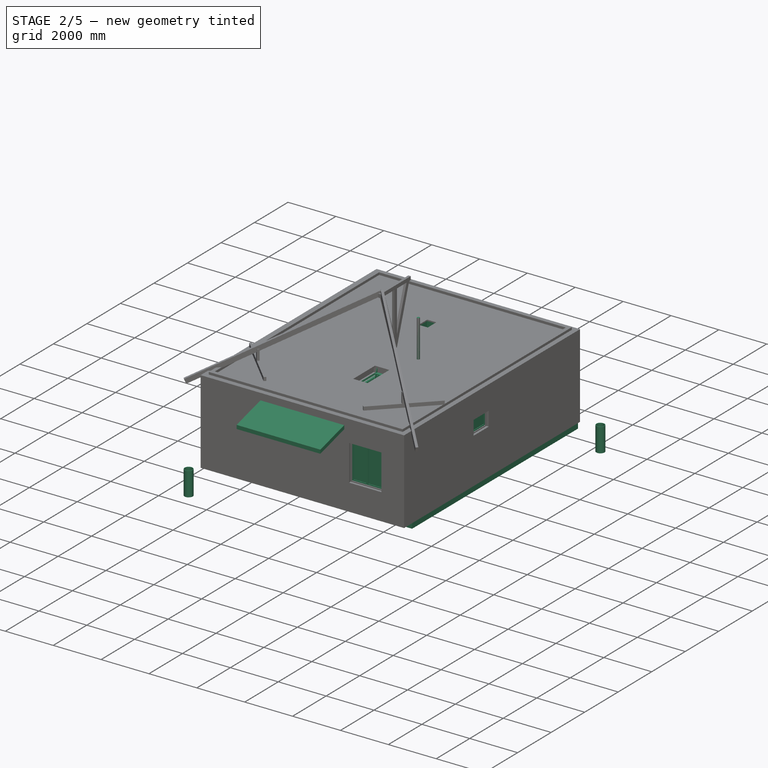
[diagram: stage 2 of 5 — iso view after this stage's code; geometry added in this stage tinted green]
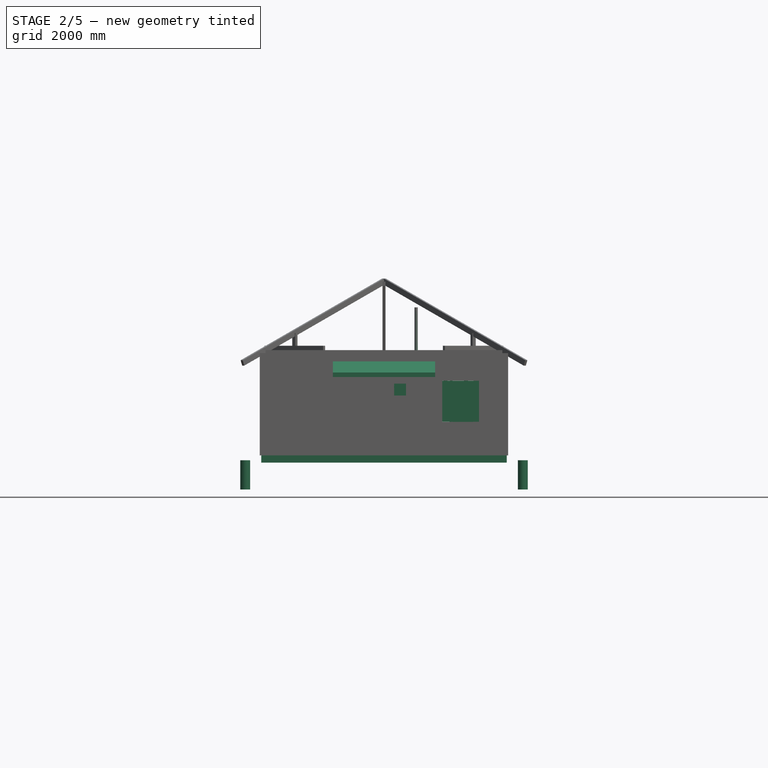
[diagram: stage 2 of 5 — front view after this stage's code; geometry added in this stage tinted green]
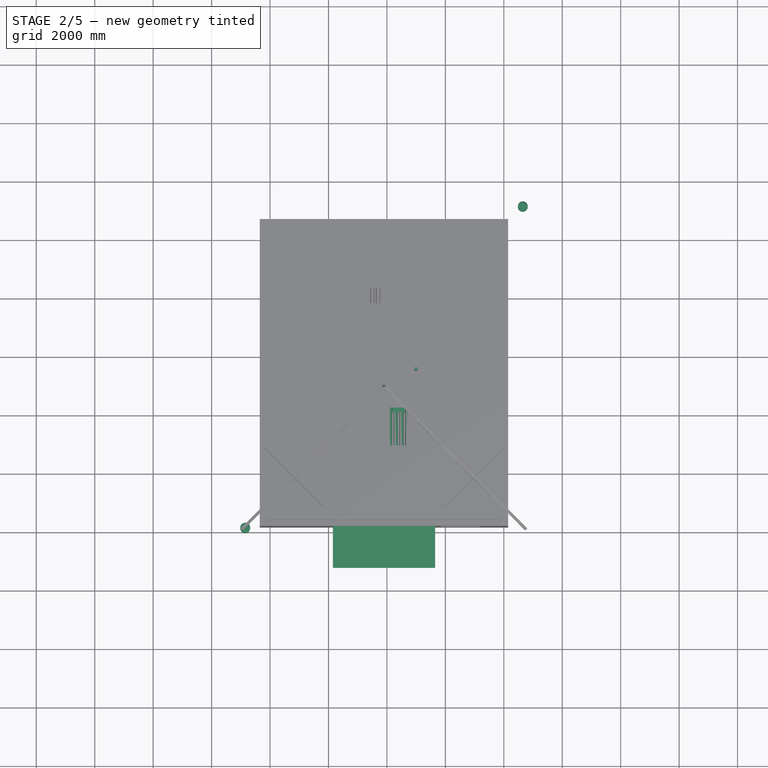
[diagram: stage 2 of 5 — top view after this stage's code; geometry added in this stage tinted green]
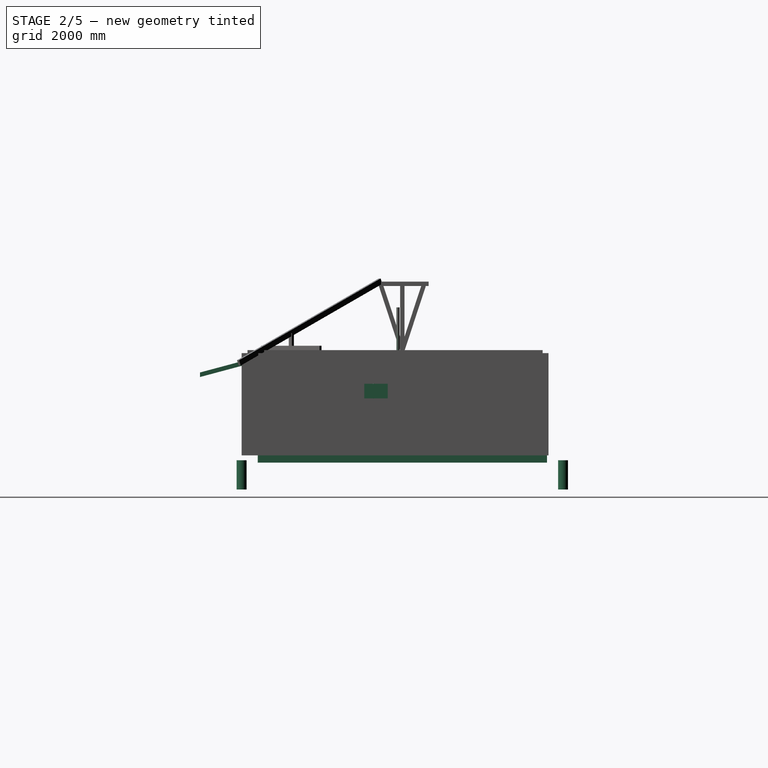
[diagram: stage 2 of 5 — right view after this stage's code; geometry added in this stage tinted green]
FEATURE [Part::Box] Box3133  label="ножка034"
  AttacherType = Attacher::AttachEngine3D
  Height = 720
  Length = 40
  Placement = pos=(7136.3,-1434.35,0) rot=(0,0,-1;1.5708rad)
  Width = 40
FEATURE [Part::Box] Box3134  label="ножка035"
  AttacherType = Attacher::AttachEngine3D
  Height = 720
  Length = 40
  Placement = pos=(5776.3,-1434.35,0) rot=(0,0,-1;1.5708rad)
  Width = 40
FEATURE [Part::Box] Box3135  label="ножка036"
  AttacherType = Attacher::AttachEngine3D
  Height = 720
  Length = 40
  Placement = pos=(5776.3,-824.337,0) rot=(0,0,-1;1.5708rad)
  Width = 40
FEATURE [Part::Box] Box3136  label="столешница005"
  AttacherType = Attacher::AttachEngine3D
  Height = 30
  Length = 650
  Placement = pos=(5776.3,-824.351,720) rot=(0,0,-1;1.5708rad)
  Width = 1400
FEATURE [Part::Part2DObjectPython] Arc013  # Draft 2D object (typed FeaturePython)
  FirstAngle = 26.5651
  LastAngle = 90
  MakeFace = false
  Placement = pos=(4800,450,0) rot=(0,0,1;1.5708rad)
  Radius = 800
FEATURE [Part::Part2DObjectPython] Line552  # Draft 2D object (typed FeaturePython)
  ChamferSize = 0
  Closed = false
  End = (4800,450,0)
  FilletRadius = 0
  Length = 800
  MakeFace = false
  Placement = pos=(4486.95,1076.1,0) rot=(0,0,1;1.5708rad)
  Points = (2) [(89.4427,44.7215,0),(-626.099,-313.05,0)]
  Start = (4442.23,1165.54,0)
  Subdivisions = 0
FEATURE [Part::Part2DObjectPython] Line553  label="подающий воздуховод 047"  # Draft 2D object (typed FeaturePython)
  ChamferSize = 0
  Closed = false
  End = (1700,2600,1.6414e-12)
  FilletRadius = 0
  Length = 200
  MakeFace = true
  Placement = pos=(1700,2600,50) rot=(0,0.707107,-0.707107;3.14159rad)
  Points = (2) [(2.27374e-13,250,0),(0,50,0)]
  Start = (1700,2600,-200)
  Subdivisions = 0
FEATURE [Part::FeaturePython] Pipe051  label="подающий воздуховод 048"  # Arch/BIM object (typed FeaturePython)
  Base = -> Line553
  Diameter = 200
  HorizontalArea = 0
  IfcRole = 98
  Length = 200
  MoveWithHost = false
  OffsetEnd = 0
  OffsetStart = 0
  PerimeterLength = 0
  Placement = pos=(0,0,2650) rot=(0,0,1;0rad)
  VerticalArea = 0
FEATURE [Part::Part2DObjectPython] Line554  label="подающий воздуховод 049"  # Draft 2D object (typed FeaturePython)
  ChamferSize = 0
  Closed = false
  End = (7000,2400,0)
  FilletRadius = 0
  Length = 1000
  MakeFace = true
  Placement = pos=(7000,900,0) rot=(0,0,1;3.14159rad)
  Points = (2) [(0,-500,0),(0,-1500,0)]
  Start = (7000,1400,0)
  Subdivisions = 0
FEATURE [Part::FeaturePython] Pipe052  label="подающий воздуховод 050"  # Arch/BIM object (typed FeaturePython)
  Base = -> Line554
  Diameter = 200
  HorizontalArea = 0
  IfcRole = 98
  Length = 1000
  MoveWithHost = false
  OffsetEnd = 0
  OffsetStart = 0
  PerimeterLength = 0
  Placement = pos=(0,0,2650) rot=(0,0,1;0rad)
  VerticalArea = 0
FEATURE [Part::Part2DObjectPython] Line555  label="подающий воздуховод 051"  # Draft 2D object (typed FeaturePython)
  ChamferSize = 0
  Closed = false
  End = (6600,2400,-200)
  FilletRadius = 0
  Length = 200
  MakeFace = true
  Placement = pos=(6600,2400,0) rot=(0,0,1;0rad)
  Points = (2) [(0,0,0),(0,0,-200)]
  Start = (6600,2400,0)
  Subdivisions = 0
FEATURE [Part::FeaturePython] Pipe053  label="подающий воздуховод 052"  # Arch/BIM object (typed FeaturePython)
  Base = -> Line555
  Diameter = 200
  HorizontalArea = 0
  IfcRole = 98
  Length = 200
  MoveWithHost = false
  OffsetEnd = 0
  OffsetStart = 0
  PerimeterLength = 0
  Placement = pos=(0,0,2650) rot=(0,0,1;0rad)
  VerticalArea = 0
FEATURE [Part::Part2DObjectPython] Rectangle595  label="перегородка 50мм 003"  # Draft 2D object (typed FeaturePython)
  ChamferSize = 0
  Columns = 1
  FilletRadius = 0
  Height = 400
  Length = 75
  MakeFace = true
  Placement = pos=(5600,2662.5,0) rot=(0,0,1;1.5708rad)
  Rows = 1
FEATURE [Part::Part2DObjectPython] Rectangle596  label="перегородка 50мм 001"  # Draft 2D object (typed FeaturePython)
  ChamferSize = 0
  Columns = 1
  FilletRadius = 0
  Height = 200
  Length = 75
  MakeFace = true
  Placement = pos=(6312.5,1650,0) rot=(0,0,1;0rad)
  Rows = 1
FEATURE [Part::Part2DObjectPython] Line557  label="шторка 001"  # Draft 2D object (typed FeaturePython)
  ChamferSize = 0
  Closed = false
  End = (6312.5,2700,0)
  FilletRadius = 0
  Length = 712.5
  MakeFace = true
  Placement = pos=(5675,2700,0) rot=(0,0,1;0rad)
  Points = (2) [(-75,-1.81899e-12,0),(637.5,-1.81899e-12,0)]
  Start = (5600,2700,0)
  Subdivisions = 0
FEATURE [Part::Part2DObjectPython] Line558  label="шторка 002"  # Draft 2D object (typed FeaturePython)
  ChamferSize = 0
  Closed = false
  End = (6350,1850,0)
  FilletRadius = 0
  Length = 750
  MakeFace = true
  Placement = pos=(6350,2600,0) rot=(0,0,1;0rad)
  Points = (2) [(0,0,0),(0,-750,0)]
  Start = (6350,2600,0)
  Subdivisions = 0
FEATURE [Part::Part2DObjectPython] Rectangle597  label="перегородка 50мм 002"  # Draft 2D object (typed FeaturePython)
  ChamferSize = 0
  Columns = 1
  FilletRadius = 0
  Height = 1050
  Length = 75
  MakeFace = true
  Placement = pos=(6312.5,2600,0) rot=(0,0,1;0rad)
  Rows = 1
FEATURE [Part::Box] Box3138  label="шкаф 120х45х240 008"
  AttacherType = Attacher::AttachEngine3D
  Height = 2400
  Length = 1200
  Placement = pos=(7776.61,278.991,0) rot=(0,0,1;1.5708rad)
  Width = 450
FEATURE [Part::Box] Box3139  label="тумбочка 400х450 004"
  AttacherType = Attacher::AttachEngine3D
  Height = 650
  Length = 400
  Placement = pos=(7208.98,-1468.14,0) rot=(0,0,1;0rad)
  Width = 450
FEATURE [Part::Box] Box3140  label="тумбочка 400х450 005"
  AttacherType = Attacher::AttachEngine3D
  Height = 650
  Length = 400
  Placement = pos=(5333.74,-1462.73,0) rot=(0,0,1;0rad)
  Width = 450
FEATURE [Part::Part2DObjectPython] Wire171  label="вытяжная вентиляция 006"  # Draft 2D object (typed FeaturePython)
  ChamferSize = 0
  Closed = false
  End = (7650,4750,-200)
  FilletRadius = 0
  Length = 8179.99
  MakeFace = true
  Placement = pos=(3350,2700,-200) rot=(0,0,1;0rad)
  Points = (9) [(-249.995,380.006,0),(249.997,380.001,0),(250,-400,0),(2400,-400,0),(2400,300,0),(4300,300,0),(4300,300,200),(4300,2050,200),(4300,2050,0)]
  Start = (3100,3080,-200)
  Subdivisions = 0
FEATURE [Part::FeaturePython] Pipe054  label="вытяжная вентиляция 007"  # Arch/BIM object (typed FeaturePython)
  Base = -> Wire171
  Diameter = 125
  HorizontalArea = 0
  IfcRole = 98
  Length = 8179.99
  MoveWithHost = false
  OffsetEnd = 0
  OffsetStart = 0
  PerimeterLength = 0
  Placement = pos=(0,0,2675) rot=(0,0,1;0rad)
  VerticalArea = 0
FEATURE [Part::Part2DObjectPython] Wire172  label="крыша_крыльца_001"  # Draft 2D object (typed FeaturePython)
  ChamferSize = 0
  Closed = true
  End = (2150,-1275,2500)
  FilletRadius = 0
  Length = 11000
  MakeFace = false
  Placement = pos=(2150,-3275,2500) rot=(0,0,1;0rad)
  Points = (4) [(0,0,0),(3500,9.09495e-13,0),(3500,2000,0),(9.09495e-13,2000,0)]
  Start = (2150,-3275,2500)
  Subdivisions = 0
FEATURE [Part::FeaturePython] Roof  label="крыша_крыльца_002"  # Arch/BIM object (typed FeaturePython)
  Angles = [15,90,90,90]
  Base = -> Wire172
  BorderLength = 11141.1
  Face = 0
  Flip = false
  Heights = [535.898,535.898,535.898,535.898]
  HorizontalArea = 7e+06
  IdRel = [0,0,0,0]
  IfcRole = 111
  MoveWithHost = false
  Overhang = [0,0,0,0]
  PerimeterLength = 11000
  RidgeLength = 0
  Runs = [2000,500,0,500,500]
  Thickness = [150,50,50,50]
  VerticalArea = 1.70821e+06
FEATURE [App::GeometryPython] BuildingPart046  label="крыльцо"  # Arch/BIM object (typed FeaturePython)
  Area = 0
  Group = -> [Structure243,Structure245,Structure244,Roof]
  Height = 0
  IfcRole = 0
  LevelOffset = 0
FEATURE [Part::Part2DObjectPython] Line560  label="вытяжная вентиляция 009"  # Draft 2D object (typed FeaturePython)
  ChamferSize = 0
  Closed = false
  End = (6700,3000,-200)
  FilletRadius = 0
  Length = 200
  MakeFace = true
  Placement = pos=(6700,3000,-150) rot=(0,0.707107,-0.707107;3.14159rad)
  Points = (2) [(0,250,0),(0,50,0)]
  Start = (6700,3000,-400)
  Subdivisions = 0
FEATURE [Part::FeaturePython] Pipe055  label="вытяжная вентиляция 008"  # Arch/BIM object (typed FeaturePython)
  Base = -> Line560
  Diameter = 125
  HorizontalArea = 0
  IfcRole = 98
  Length = 200
  MoveWithHost = false
  OffsetEnd = 0
  OffsetStart = 0
  PerimeterLength = 0
  Placement = pos=(0,0,2675) rot=(0,0,1;0rad)
  VerticalArea = 0
FEATURE [Part::Part2DObjectPython] Line561  label="вытяжная вентиляция 011"  # Draft 2D object (typed FeaturePython)
  ChamferSize = 0
  Closed = false
  End = (6000,3000,-200)
  FilletRadius = 0
  Length = 200
  MakeFace = true
  Placement = pos=(6000,3000,-150) rot=(0,0.707107,-0.707107;3.14159rad)
  Points = (2) [(0,250,0),(0,50,0)]
  Start = (6000,3000,-400)
  Subdivisions = 0
FEATURE [Part::FeaturePython] Pipe056  label="вытяжная вентиляция 010"  # Arch/BIM object (typed FeaturePython)
  Base = -> Line561
  Diameter = 125
  HorizontalArea = 0
  IfcRole = 98
  Length = 200
  MoveWithHost = false
  OffsetEnd = 0
  OffsetStart = 0
  PerimeterLength = 0
  Placement = pos=(0,0,2675) rot=(0,0,1;0rad)
  VerticalArea = 0
FEATURE [Part::Part2DObjectPython] Rectangle603  label="кух.зона003"  # Draft 2D object (typed FeaturePython)
  ChamferSize = 0
  Columns = 1
  FilletRadius = 0
  Height = 600
  Length = 500
  MakeFace = false
  Placement = pos=(7300,3800,0) rot=(0,0,1;0rad)
  Rows = 1
FEATURE [Part::FeaturePython] Structure286  label="кух.зона 007"  # Arch/BIM object (typed FeaturePython)
  Base = -> Rectangle603
  FaceMaker = 0
  Height = 1000
  HorizontalArea = 300000
  IfcRole = 0
  Length = 0
  MoveWithHost = false
  Nodes = (2) [(-4700,-6400,0),(-4700,-6400,800)]
  NodesOffset = 0
  Normal = (0,0,0)
  PerimeterLength = 2200
  Placement = pos=(0,0,1500) rot=(0,0,1;0rad)
  VerticalArea = 2200000
  Width = 100
FEATURE [Part::Part2DObjectPython] Arc015  # Draft 2D object (typed FeaturePython)
  FirstAngle = 0
  LastAngle = 90
  MakeFace = false
  Placement = pos=(1550,2650,0) rot=(0,0,1;0rad)
  Radius = 901.388
FEATURE [Part::Part2DObjectPython] Circle011  # Draft 2D object (typed FeaturePython)
  FirstAngle = 0
  LastAngle = 0
  MakeFace = false
  Placement = pos=(-850,-1850,0) rot=(0,0,1;0rad)
  Radius = 170
FEATURE [Part::Part2DObjectPython] Circle012  # Draft 2D object (typed FeaturePython)
  FirstAngle = 0
  LastAngle = 0
  MakeFace = false
  Placement = pos=(-850,-1850,0) rot=(0,0,1;0rad)
  Radius = 150
FEATURE [Part::FeaturePython] Structure288  label="Structure023"  # Arch/BIM object (typed FeaturePython)
  Base = -> Circle012
  FaceMaker = 0
  Height = 1500
  HorizontalArea = 70685.8
  IfcRole = 0
  Length = 0
  MoveWithHost = false
  Nodes = (2) [(-850,-1850,0),(-850,-1850,-1500)]
  NodesOffset = 0
  Normal = (0,0,-1)
  PerimeterLength = 942.478
  VerticalArea = 1.41372e+06
  Width = 100
FEATURE [Part::FeaturePython] Structure287  label="Structure022"  # Arch/BIM object (typed FeaturePython)
  Base = -> Circle011
  FaceMaker = 0
  Height = 1000
  HorizontalArea = 20106.2
  IfcRole = 0
  Length = 0
  MoveWithHost = false
  Nodes = (2) [(-850,-1850,0),(-850,-1850,-1000)]
  NodesOffset = 0
  Normal = (0,0,-1)
  PerimeterLength = 1068.14
  Placement = pos=(0,0,-350) rot=(0,0,1;0rad)
  Subtractions = -> [Structure288]
  VerticalArea = 2.01062e+06
  Width = 100
FEATURE [Part::FeaturePython] Structure289  label="Structure024"  # Arch/BIM object (typed FeaturePython)
  Base = -> Circle011
  FaceMaker = 0
  Height = 30
  HorizontalArea = 90792
  IfcRole = 0
  Length = 0
  MoveWithHost = false
  Nodes = (2) [(-850,-1850,0),(-850,-1850,30)]
  NodesOffset = 0
  Normal = (0,0,0)
  PerimeterLength = 1068.14
  Placement = pos=(0,0,-1350) rot=(0,0,1;0rad)
  VerticalArea = 32044.2
  Width = 100
FEATURE [App::GeometryPython] BuildingPart066  label="дренажный колодец D340 h1000 003"  # Arch/BIM object (typed FeaturePython)
  Area = 0
  Group = -> [Structure287,Structure289]
  Height = 0
  IfcRole = 0
  LevelOffset = 0
  Placement = pos=(0,50,1) rot=(0,0,1;0rad)
FEATURE [Part::Part2DObjectPython] Circle013  # Draft 2D object (typed FeaturePython)
  FirstAngle = 0
  LastAngle = 0
  MakeFace = false
  Placement = pos=(8650,9150,0) rot=(0,0,1;0rad)
  Radius = 170
FEATURE [Part::Part2DObjectPython] Circle014  # Draft 2D object (typed FeaturePython)
  FirstAngle = 0
  LastAngle = 0
  MakeFace = false
  Placement = pos=(8650,9150,0) rot=(0,0,1;0rad)
  Radius = 150
FEATURE [Part::FeaturePython] Structure291  label="Structure026"  # Arch/BIM object (typed FeaturePython)
  Base = -> Circle014
  FaceMaker = 0
  Height = 1500
  HorizontalArea = 70685.8
  IfcRole = 0
  Length = 0
  MoveWithHost = false
  Nodes = (2) [(8650,9150,0),(8650,9150,-1500)]
  NodesOffset = 0
  Normal = (0,0,-1)
  PerimeterLength = 942.478
  VerticalArea = 1.41372e+06
  Width = 100
FEATURE [Part::FeaturePython] Structure290  label="Structure025"  # Arch/BIM object (typed FeaturePython)
  Base = -> Circle013
  FaceMaker = 0
  Height = 1000
  HorizontalArea = 20106.2
  IfcRole = 0
  Length = 0
  MoveWithHost = false
  Nodes = (2) [(8650,9150,0),(8650,9150,-1000)]
  NodesOffset = 0
  Normal = (0,0,-1)
  PerimeterLength = 1068.14
  Placement = pos=(0,0,-350) rot=(0,0,1;0rad)
  Subtractions = -> [Structure291]
  VerticalArea = 2.01062e+06
  Width = 100
FEATURE [Part::FeaturePython] Structure292  label="Structure027"  # Arch/BIM object (typed FeaturePython)
  Base = -> Circle013
  FaceMaker = 0
  Height = 30
  HorizontalArea = 90792
  IfcRole = 0
  Length = 0
  MoveWithHost = false
  Nodes = (2) [(8650,9150,0),(8650,9150,30)]
  NodesOffset = 0
  Normal = (0,0,0)
  PerimeterLength = 1068.14
  Placement = pos=(0,0,-1350) rot=(0,0,1;0rad)
  VerticalArea = 32044.2
  Width = 100
FEATURE [App::GeometryPython] BuildingPart067  label="дренажный колодец D340 h1000 004"  # Arch/BIM object (typed FeaturePython)
  Area = 0
  Group = -> [Structure290,Structure292]
  Height = 0
  IfcRole = 0
  LevelOffset = 0
  Placement = pos=(0,50,1) rot=(0,0,1;0rad)
FEATURE [App::GeometryPython] BuildingPart058  label="Дренаж"  # Arch/BIM object (typed FeaturePython)
  Area = 0
  Group = -> [BuildingPart057,BuildingPart059,Pipe046,Pipe047,BuildingPart066,BuildingPart067]
  Height = 0
  IfcRole = 0
  LevelOffset = 0
  Placement = pos=(0,50,0) rot=(0,0,1;0rad)
FEATURE [Part::Box] Box3142  label="микроволновка"
  AttacherType = Attacher::AttachEngine3D
  Height = 300
  Length = 500
  Placement = pos=(7650,3800,1175) rot=(0,0,1;1.5708rad)
  Width = 350
FEATURE [Part::FeaturePython] Structure173  label="фундамент печи"  # Arch/BIM object (typed FeaturePython)
  Base = -> Rectangle604
  FaceMaker = 0
  Height = 180
  HorizontalArea = 641827
  IfcRole = 0
  Length = 0
  MoveWithHost = false
  Nodes = (2) [(2725,3165,0),(2725,3165,-250)]
  NodesOffset = 0
  Normal = (0,0,-1)
  PerimeterLength = 3248.5
  VerticalArea = 584729
  Width = 100
FEATURE [Part::FeaturePython] Wall077  label="Утепление торца плиты 100мм ЭППС"  # Arch/BIM object (typed FeaturePython)
  Align = 0
  Base = -> Rectangle445
  BlockHeight = 0
  BlockLength = 0
  CountBroken = 0
  CountEntire = 0
  Face = 0
  Height = 250
  HorizontalArea = 3620000
  IfcRole = 156
  Joint = 0
  Length = 35800
  MakeBlocks = false
  MoveWithHost = false
  Normal = (0,0,0)
  OffsetFirst = 0
  OffsetSecond = 0
  PerimeterLength = 36600
  Placement = pos=(0,0,-430) rot=(0,0,1;0rad)
  VerticalArea = 18100000
  Width = 100
FEATURE [Part::Part2DObjectPython] Rectangle609  label="основание под перегородки ГБ 250 h0.2 001"  # Draft 2D object (typed FeaturePython)
  ChamferSize = 0
  Columns = 1
  FilletRadius = 0
  Height = 1740
  Length = 250
  MakeFace = false
  Placement = pos=(3075,6635,0) rot=(0,0,1;0rad)
  Rows = 1
FEATURE [Part::Part2DObjectPython] Rectangle610  label="основание под перегородки ГБ 250 h0.2 059"  # Draft 2D object (typed FeaturePython)
  ChamferSize = 0
  Columns = 1
  FilletRadius = 0
  Height = 7750
  Length = 250
  MakeFace = false
  Placement = pos=(7750,3575,0) rot=(0,0,1;1.5708rad)
  Rows = 1
FEATURE [Part::Part2DObjectPython] Rectangle612  label="основание под перегородки ГБ 250 h0.2 062"  # Draft 2D object (typed FeaturePython)
  ChamferSize = 0
  Columns = 1
  FilletRadius = 0
  Height = 1790
  Length = 250
  MakeFace = false
  Placement = pos=(3075,3825,0) rot=(0,0,1;0rad)
  Rows = 1
FEATURE [Part::Part2DObjectPython] Rectangle613  label="основание под перегородки ГБ 250 h0.2 060"  # Draft 2D object (typed FeaturePython)
  ChamferSize = 0
  Columns = 1
  FilletRadius = 0
  Height = 3475
  Length = 250
  MakeFace = false
  Placement = pos=(3075,-1000,0) rot=(0,0,1;0rad)
  Rows = 1
FEATURE [Part::Part2DObjectPython] Rectangle614  label="основание под перегородки ГБ 250 h0.2 064"  # Draft 2D object (typed FeaturePython)
  ChamferSize = 0
  Columns = 1
  FilletRadius = 0
  Height = 4575
  Length = 250
  MakeFace = false
  Placement = pos=(5025,-1000,0) rot=(0,0,1;0rad)
  Rows = 1
FEATURE [Part::Part2DObjectPython] Rectangle615  label="основание под перегородки ГБ 250 h0.2 061"  # Draft 2D object (typed FeaturePython)
  ChamferSize = 0
  Columns = 1
  FilletRadius = 0
  Height = 1100
  Length = 250
  MakeFace = false
  Placement = pos=(1850,2475,0) rot=(0,0,1;0rad)
  Rows = 1
FEATURE [Part::Part2DObjectPython] Rectangle616  label="основание под перегородки ГБ 250 h0.2 058"  # Draft 2D object (typed FeaturePython)
  ChamferSize = 0
  Columns = 1
  FilletRadius = 0
  Height = 2475
  Length = 250
  MakeFace = false
  Placement = pos=(7750,1425,-90) rot=(0,0,1;1.5708rad)
  Rows = 1
FEATURE [Part::Part2DObjectPython] Rectangle617  label="основание под перегородки ГБ 250 h0.2 057"  # Draft 2D object (typed FeaturePython)
  ChamferSize = 0
  Columns = 1
  FilletRadius = 0
  Height = 3075
  Length = 250
  MakeFace = false
  Placement = pos=(3075,2225,0) rot=(0,0,1;1.5708rad)
  Rows = 1
FEATURE [Part::Part2DObjectPython] Rectangle618  label="основание под перегородки ГБ 250 h0.2 063"  # Draft 2D object (typed FeaturePython)
  ChamferSize = 0
  Columns = 1
  FilletRadius = 0
  Height = 1700
  Length = 250
  MakeFace = false
  Placement = pos=(5025,275,0) rot=(0,0,1;1.5708rad)
  Rows = 1
FEATURE [App::DocumentObjectGroup] Group056  label="основание ГБ250мм"
  Group = -> [Rectangle444,Rectangle445,Rectangle446,Rectangle609,Rectangle610,Rectangle612,Rectangle613,Rectangle614,Rectangle615,Rectangle616,Rectangle617,Rectangle618]
FEATURE [Part::FeaturePython] Wall078  label="теплоизол. трубы ГБ 150мм"  # Arch/BIM object (typed FeaturePython)
  Align = 0
  Base = -> Rectangle381
  BlockHeight = 0
  BlockLength = 0
  CountBroken = 0
  CountEntire = 0
  Face = 0
  Height = 300
  HorizontalArea = 387000
  IfcRole = 156
  Joint = 0
  Length = 1780
  MakeBlocks = false
  MoveWithHost = false
  Normal = (0,0,1)
  Offset = 25
  OffsetFirst = 0
  OffsetSecond = 0
  PerimeterLength = 3180
  Placement = pos=(0,0,2970) rot=(0,0,1;0rad)
  VerticalArea = 1548000
  Width = 150
FEATURE [Part::Part2DObjectPython] Arc016  # Draft 2D object (typed FeaturePython)
  FirstAngle = 90
  LastAngle = 171.13
  MakeFace = true
  Placement = pos=(5050,1750,0) rot=(0,0,1;0rad)
  Radius = 800
FEATURE [Part::Part2DObjectPython] Line564  # Draft 2D object (typed FeaturePython)
  ChamferSize = 0
  Closed = false
  End = (4259.57,1873.36,0)
  FilletRadius = 0
  Length = 800
  MakeFace = true
  Placement = pos=(5050,1750,0) rot=(0,0,1;0rad)
  Points = (2) [(0,0,0),(-790.432,123.357,0)]
  Start = (5050,1750,0)
  Subdivisions = 0
FEATURE [Part::Part2DObjectPython] Line568  label="лестница Fakro LWT Thermo 60x130 line"  # Draft 2D object (typed FeaturePython)
  ChamferSize = 0
  Closed = false
  End = (4175,2200,3410)
  FilletRadius = 0
  Length = 3667.51
  MakeFace = false
  Placement = pos=(4175,600,0) rot=(0,0,1;0rad)
  Points = (2) [(0,250,0),(0,1600,3410)]
  Start = (4175,850,0)
  Subdivisions = 0
FEATURE [Part::FeaturePython] Stairs  label="лестница Fakro LWT Thermo 60x130x300"  # Arch/BIM object (typed FeaturePython)
  AbsTop = (4175,850,3410)
  Align = 0
  Base = -> Line568
  BlondelRatio = 0
  Flight = 0
  Height = 3000
  HorizontalArea = 0
  IfcRole = 124
  LandingDepth = 0
  Landings = 0
  Length = 4500
  MoveWithHost = false
  Nosing = 0
  NumberOfSteps = 11
  OutlineLeft = (2) [(4176,850,281),(4176,2200,3381)]
  OutlineLeftAll = (2) [(4176,850,281),(4176,2200,3381)]
  OutlineRight = (2) [(4624,2200,3381),(4624,850,281)]
  OutlineRightAll = (2) [(4624,2200,3381),(4624,850,281)]
  PerimeterLength = 0
  RailingHeightLeft = 1
  RailingHeightRight = 1
  RailingOffsetLeft = 1
  RailingOffsetRight = 1
  RiserHeight = 310
  RiserHeightEnforce = 0
  StringerOverlap = 200
  StringerWidth = 25
  Structure = 3
  StructureOffset = 0
  StructureThickness = 75
  TreadDepth = 366.751
  TreadDepthEnforce = 0
  TreadThickness = 30
  VerticalArea = 0
  Width = 450
  Winders = 0
FEATURE [Part::Part2DObjectPython] ShapeString008  label="надпись 009"  # Draft 2D object (typed FeaturePython)
  FontFile = <path>
  Placement = pos=(2942.1,2823.24,0) rot=(0,0,1;0rad)
  Size = 100
  String = прихожая и коридор 7.2 м2
  Tracking = 0
FEATURE [Part::Part2DObjectPython] Line583  # Draft 2D object (typed FeaturePython)
  ChamferSize = 0
  Closed = false
  End = (4070,850,0)
  FilletRadius = 0
  Length = 50
  MakeFace = true
  Placement = pos=(4070,900,0) rot=(0,0,1;0rad)
  Points = (2) [(0,0,0),(0,-50,0)]
  Start = (4070,900,0)
  Subdivisions = 0
FEATURE [Part::Part2DObjectPython] Line584  # Draft 2D object (typed FeaturePython)
  ChamferSize = 0
  Closed = false
  End = (4070,2200,0)
  FilletRadius = 0
  Length = 1350
  MakeFace = true
  Placement = pos=(4070,850,0) rot=(0,0,1;0rad)
  Points = (2) [(0,0,0),(0,1350,0)]
  Start = (4070,850,0)
  Subdivisions = 0
FEATURE [Part::Part2DObjectPython] Wire173  label="фановая d110 002"  # Draft 2D object (typed FeaturePython)
  ChamferSize = 100
  Closed = false
  End = (5000,3500,4881.81)
  FilletRadius = 0
  Length = 7672.6
  MakeFace = false
  Placement = pos=(7600,3450,-320) rot=(0,0,1;0rad)
  Points = (4) [(0,0,0),(0,9.09495e-13,201.806),(-2600,50,251.806),(-2600,50,5201.81)]
  Start = (7600,3450,-320)
  Subdivisions = 0
FEATURE [Part::FeaturePython] Pipe057  label="фановая d110 001"  # Arch/BIM object (typed FeaturePython)
  Base = -> Wire173
  Diameter = 110
  HorizontalArea = 0
  IfcRole = 98
  Length = 7672.6
  MoveWithHost = false
  OffsetEnd = 0
  OffsetStart = 0
  PerimeterLength = 0
  VerticalArea = 0
FEATURE [Part::Part2DObjectPython] Wire174  label="фановая d110 004"  # Draft 2D object (typed FeaturePython)
  ChamferSize = 0
  Closed = false
  End = (5400,3200,150)
  FilletRadius = 0
  Length = 636.897
  MakeFace = false
  Placement = pos=(5490.96,3490.58,-77.613) rot=(0,0,1;0rad)
  Points = (6) [(0,0,0),(-99.96,1.9,1.9),(-190.957,-90.5808,27.613),(-190.957,-190.581,52.613),(-190.957,-290.581,227.613),(-90.9573,-290.581,227.613)]
  Start = (5490.96,3490.58,-77.613)
  Subdivisions = 0
FEATURE [Part::FeaturePython] Pipe058  label="фановая d110 003"  # Arch/BIM object (typed FeaturePython)
  Base = -> Wire174
  Diameter = 110
  HorizontalArea = 0
  IfcRole = 98
  Length = 636.897
  MoveWithHost = false
  OffsetEnd = 0
  OffsetStart = 0
  PerimeterLength = 0
  VerticalArea = 0
FEATURE [Part::Part2DObjectPython] Wire175  label="фановая d50 002"  # Draft 2D object (typed FeaturePython)
  ChamferSize = 0
  Closed = false
  End = (7682,6382,568.731)
  FilletRadius = 0
  Length = 3485.64
  MakeFace = false
  Placement = pos=(7682,3532,18.731) rot=(0,0,1;0rad)
  Points = (4) [(-82,-82,-115.966),(-30,-30,-42.4264),(0,2850,50),(0,2850,550)]
  Start = (7600,3450,-97.2345)
  Subdivisions = 0
FEATURE [Part::FeaturePython] Pipe059  label="фановая d50 001"  # Arch/BIM object (typed FeaturePython)
  Base = -> Wire175
  Diameter = 50
  HorizontalArea = 0
  IfcRole = 98
  Length = 3485.64
  MoveWithHost = false
  OffsetEnd = 0
  OffsetStart = 0
  PerimeterLength = 0
  VerticalArea = 0
FEATURE [Part::Part2DObjectPython] Wire176  label="фановая d50 006"  # Draft 2D object (typed FeaturePython)
  ChamferSize = 0
  Closed = false
  End = (5769.38,1639.62,560)
  FilletRadius = 0
  Length = 2180.88
  MakeFace = false
  Placement = pos=(7506.69,3356.69,0) rot=(0,0,1;0rad)
  Points = (4) [(-56.6863,-1717.06,30),(-63.5169,-1717.06,30.1219),(-1737.3,-1717.06,60),(-1737.3,-1717.06,560)]
  Start = (7450,1639.62,30)
  Subdivisions = 0
FEATURE [Part::FeaturePython] Pipe060  label="фановая d50 003"  # Arch/BIM object (typed FeaturePython)
  Base = -> Wire176
  Diameter = 50
  HorizontalArea = 0
  IfcRole = 98
  Length = 2180.88
  MoveWithHost = false
  OffsetEnd = 0
  OffsetStart = 0
  PerimeterLength = 0
  VerticalArea = 0
FEATURE [Part::Cylinder] Cylinder001  label="гидроаккумулятор 001"
  Angle = 360
  AttacherType = Attacher::AttachEngine3D
  Height = 1000
  Placement = pos=(6800,1875,2600) rot=(0,-1,0;1.5708rad)
  Radius = 200
FEATURE [Part::Fillet] Fillet  label="гидроаккумулятор"
  Base = -> Cylinder001
  Edges = 2 edges r=150: [Edge1,Edge3]
FEATURE [App::GeometryPython] BuildingPart061  label="Водоснабжение"  # Arch/BIM object (typed FeaturePython)
  Area = 0
  Group = -> [Pipe049,Fillet]
  Height = 0
  IfcRole = 0
  LevelOffset = 0
FEATURE [Part::Part2DObjectPython] Wire178  label="фановая d50 008"  # Draft 2D object (typed FeaturePython)
  ChamferSize = 0
  Closed = false
  End = (7375,3225,250)
  FilletRadius = 0
  Length = 599.804
  MakeFace = true
  Placement = pos=(7600,3450,-97.2345) rot=(0,0,1;0rad)
  Points = (4) [(0,0,0),(-52,-52,73.5391),(-225,-225,97.2345),(-225,-225,347.235)]
  Start = (7600,3450,-97.2345)
  Subdivisions = 0
FEATURE [Part::FeaturePython] Pipe062  label="фановая d50 007"  # Arch/BIM object (typed FeaturePython)
  Base = -> Wire178
  Diameter = 50
  HorizontalArea = 0
  IfcRole = 98
  Length = 599.804
  MoveWithHost = false
  OffsetEnd = 0
  OffsetStart = 0
  PerimeterLength = 0
  VerticalArea = 0
FEATURE [Part::Part2DObjectPython] Wire179  label="фановая d50 010"  # Draft 2D object (typed FeaturePython)
  ChamferSize = 0
  Closed = false
  End = (7504.1,3354.1,-17.6822)
  FilletRadius = 0
  Length = 3896.88
  MakeFace = true
  Placement = pos=(5769.38,1639.62,560) rot=(0,0,1;0rad)
  Points = (4) [(0,0,0),(0,-2.95586e-12,-500),(1680.62,-2.18064e-05,-530),(1734.71,1714.48,-577.682)]
  Start = (5769.38,1639.62,560)
  Subdivisions = 0
FEATURE [App::DocumentObjectGroup] Group071  label="канализация и водоснабжение"
  Group = -> [Wire173,Wire174,Wire175,Wire118,Wire119,Wire176,Wire178,Wire179,Wire103]
FEATURE [Part::FeaturePython] Pipe063  label="фановая d50 009"  # Arch/BIM object (typed FeaturePython)
  Base = -> Wire179
  Diameter = 50
  HorizontalArea = 0
  IfcRole = 98
  Length = 3896.88
  MoveWithHost = false
  OffsetEnd = 0
  OffsetStart = 0
  PerimeterLength = 0
  VerticalArea = 0
FEATURE [App::GeometryPython] BuildingPart028  label="Фундамент и основание"  # Arch/BIM object (typed FeaturePython)
  Area = 0
  Group = -> [Structure130,Structure159,Structure160,Structure237,Structure239,Wall068,Structure242,BuildingPart058,Wall077,Wall069]
  Height = 0
  IfcRole = 0
  LevelOffset = 0
FEATURE [Sketcher::SketchObject] Sketch028
  Placement = pos=(4200,-1850,1820) rot=(1,0,0;1.5708rad)
  sketch-geometry (16):
    g0: LineSegment StartX=0 StartY=0 StartZ=0 EndX=500 EndY=0 EndZ=0
    g1: LineSegment StartX=500 StartY=0 StartZ=0 EndX=500 EndY=500 EndZ=0
    g2: LineSegment StartX=500 StartY=500 StartZ=0 EndX=0 EndY=500 EndZ=0
    g3: LineSegment StartX=0 StartY=500 StartZ=0 EndX=0 EndY=0 EndZ=0
    g4: LineSegment StartX=44 StartY=44 StartZ=0 EndX=456 EndY=44 EndZ=0
    g5: LineSegment StartX=456 StartY=44 StartZ=0 EndX=456 EndY=456 EndZ=0
    g6: LineSegment StartX=456 StartY=456 StartZ=0 EndX=44 EndY=456 EndZ=0
    g7: LineSegment StartX=44 StartY=456 StartZ=0 EndX=44 EndY=44 EndZ=0
    g8: LineSegment StartX=46.5 StartY=46.5 StartZ=0 EndX=453.5 EndY=46.5 EndZ=0
    g9: LineSegment StartX=453.5 StartY=46.5 StartZ=0 EndX=453.5 EndY=453.5 EndZ=0
    g10: LineSegment StartX=453.5 StartY=453.5 StartZ=0 EndX=46.5 EndY=453.5 EndZ=0
    g11: LineSegment StartX=46.5 StartY=453.5 StartZ=0 EndX=46.5 EndY=46.5 EndZ=0
    g12: LineSegment StartX=90.5 StartY=90.5 StartZ=0 EndX=409.5 EndY=90.5 EndZ=0
    g13: LineSegment StartX=409.5 StartY=90.5 StartZ=0 EndX=409.5 EndY=409.5 EndZ=0
    g14: LineSegment StartX=409.5 StartY=409.5 StartZ=0 EndX=90.5 EndY=409.5 EndZ=0
    g15: LineSegment StartX=90.5 StartY=409.5 StartZ=0 EndX=90.5 EndY=90.5 EndZ=0
  constraints (47):
    c: Coincident(g0,g1)
    c: Coincident(g1,g2)
    c: Coincident(g2,g3)
    c: Coincident(g3,g0)
    c: Horizontal(g0)
    c: Horizontal(g2)
    c: Vertical(g1)
    c: Vertical(g3)
    c: Coincident(g4,g5)
    c: Coincident(g5,g6)
    c: Coincident(g6,g7)
    c: Coincident(g7,g4)
    c: Horizontal(g4)
    c: Horizontal(g6)
    c: Vertical(g5)
    c: Vertical(g7)
    c: DistanceY(g1) = 500  'Height'
    c: DistanceX(g0) = 500  'Width'
    c: DistanceY(g6,g2) = 44  'Frame1'
    c: DistanceX(g2,g6) = 44  'Frame2'
    c: DistanceX(g4,g0) = 44  'Frame3'
    c: DistanceY(g0,g4) = 44  'Frame4'
    c: Coincident(g0,g-1)
    c: Coincident(g8,g9)
    c: Coincident(g9,g10)
    c: Coincident(g10,g11)
    c: Coincident(g11,g8)
    c: Horizontal(g8)
    c: Horizontal(g10)
    c: Vertical(g9)
    c: Vertical(g11)
    c: Coincident(g12,g13)
    c: Coincident(g13,g14)
    c: Coincident(g14,g15)
    c: Coincident(g15,g12)
    c: Horizontal(g12)
    c: Horizontal(g14)
    c: Vertical(g13)
    c: Vertical(g15)
    c: DistanceX(g8,g12) = 44  'Frame5'
    c: DistanceY(g8,g12) = 44  'Frame6'
    c: DistanceX(g14,g10) = 44  'Frame8'
    c: DistanceY(g14,g10) = 44  'Frame7'
    c: DistanceX(g4,g8) = 2.5
    c: DistanceY(g4,g8) = 2.5
    c: DistanceX(g10,g6) = 2.5
    c: DistanceY(g10,g6) = 2.5
FEATURE [Part::FeaturePython] Window  label="окно_50х50"  # Arch/BIM object (typed FeaturePython)
  Area = 250000
  Base = -> Sketch028
  Frame = 44
  Height = 500
  HoleDepth = 0
  HoleWire = 0
  HorizontalArea = 0
  IfcRole = 160
  LouvreSpacing = 0
  LouvreWidth = 0
  MoveWithHost = true
  Normal = (0,1,0)
  Offset = 100
  Opening = 0
  PerimeterLength = 0
  Preset = 2
  SymbolElevation = false
  SymbolPlan = false
  VerticalArea = 0
  Width = 500
  WindowParts = OuterFrame | Frame | Wire0,Wire1 | 50.0+V | 0.00+V | InnerFrame | Frame | Wire2,Wire3 | 50.0 | 25.0+V | InnerGlass | Glass panel | Wire3 | 5.0 | 50.0+V
FEATURE [Sketcher::SketchObject] Sketch029
  Placement = pos=(8150,2300,1720) rot=(0.57735,0.57735,0.57735;2.0944rad)
  sketch-geometry (16):
    g0: LineSegment StartX=0 StartY=0 StartZ=0 EndX=900 EndY=0 EndZ=0
    g1: LineSegment StartX=900 StartY=0 StartZ=0 EndX=900 EndY=600 EndZ=0
    g2: LineSegment StartX=900 StartY=600 StartZ=0 EndX=0 EndY=600 EndZ=0
    g3: LineSegment StartX=0 StartY=600 StartZ=0 EndX=0 EndY=0 EndZ=0
    g4: LineSegment StartX=44 StartY=44 StartZ=0 EndX=856 EndY=44 EndZ=0
    g5: LineSegment StartX=856 StartY=44 StartZ=0 EndX=856 EndY=556 EndZ=0
    g6: LineSegment StartX=856 StartY=556 StartZ=0 EndX=44 EndY=556 EndZ=0
    g7: LineSegment StartX=44 StartY=556 StartZ=0 EndX=44 EndY=44 EndZ=0
    g8: LineSegment StartX=48.4 StartY=48.4 StartZ=0 EndX=851.6 EndY=48.4 EndZ=0
    g9: LineSegment StartX=851.6 StartY=48.4 StartZ=0 EndX=851.6 EndY=551.6 EndZ=0
    g10: LineSegment StartX=851.6 StartY=551.6 StartZ=0 EndX=48.4 EndY=551.6 EndZ=0
    g11: LineSegment StartX=48.4 StartY=551.6 StartZ=0 EndX=48.4 EndY=48.4 EndZ=0
    g12: LineSegment StartX=92.4 StartY=92.4 StartZ=0 EndX=807.6 EndY=92.4 EndZ=0
    g13: LineSegment StartX=807.6 StartY=92.4 StartZ=0 EndX=807.6 EndY=507.6 EndZ=0
    g14: LineSegment StartX=807.6 StartY=507.6 StartZ=0 EndX=92.4 EndY=507.6 EndZ=0
    g15: LineSegment StartX=92.4 StartY=507.6 StartZ=0 EndX=92.4 EndY=92.4 EndZ=0
  constraints (47):
    c: Coincident(g0,g1)
    c: Coincident(g1,g2)
    c: Coincident(g2,g3)
    c: Coincident(g3,g0)
    c: Horizontal(g0)
    c: Horizontal(g2)
    c: Vertical(g1)
    c: Vertical(g3)
    c: Coincident(g4,g5)
    c: Coincident(g5,g6)
    c: Coincident(g6,g7)
    c: Coincident(g7,g4)
    c: Horizontal(g4)
    c: Horizontal(g6)
    c: Vertical(g5)
    c: Vertical(g7)
    c: DistanceY(g1) = 600  'Height'
    c: DistanceX(g0) = 900  'Width'
    c: DistanceY(g6,g2) = 44  'Frame1'
    c: DistanceX(g2,g6) = 44  'Frame2'
    c: DistanceX(g4,g0) = 44  'Frame3'
    c: DistanceY(g0,g4) = 44  'Frame4'
    c: Coincident(g0,g-1)
    c: Coincident(g8,g9)
    c: Coincident(g9,g10)
    c: Coincident(g10,g11)
    c: Coincident(g11,g8)
    c: Horizontal(g8)
    c: Horizontal(g10)
    c: Vertical(g9)
    c: Vertical(g11)
    c: Coincident(g12,g13)
    c: Coincident(g13,g14)
    c: Coincident(g14,g15)
    c: Coincident(g15,g12)
    c: Horizontal(g12)
    c: Horizontal(g14)
    c: Vertical(g13)
    c: Vertical(g15)
    c: DistanceX(g8,g12) = 44  'Frame5'
    c: DistanceY(g8,g12) = 44  'Frame6'
    c: DistanceX(g14,g10) = 44  'Frame8'
    c: DistanceY(g14,g10) = 44  'Frame7'
    c: DistanceX(g4,g8) = 4.4
    c: DistanceY(g4,g8) = 4.4
    c: DistanceX(g10,g6) = 4.4
    c: DistanceY(g10,g6) = 4.4
FEATURE [Part::FeaturePython] Window001  label="окно_60х90_ванная"  # Arch/BIM object (typed FeaturePython)
  Area = 540000
  Base = -> Sketch029
  Frame = 44
  Height = 600
  HoleDepth = 0
  HoleWire = 0
  HorizontalArea = 0
  IfcRole = 160
  LouvreSpacing = 0
  LouvreWidth = 0
  MoveWithHost = true
  Normal = (-1,0,0)
  Offset = 100
  Opening = 0
  PerimeterLength = 0
  Preset = 2
  SymbolElevation = false
  SymbolPlan = false
  VerticalArea = 0
  Width = 900
  WindowParts = OuterFrame | Frame | Wire0,Wire1 | 50.0+V | 0.00+V | InnerFrame | Frame | Wire2,Wire3 | 50.0 | 25.0+V | InnerGlass | Glass panel | Wire3 | 5.0 | 50.0+V
FEATURE [Sketcher::SketchObject] Sketch030
  Placement = pos=(6200,8650,920) rot=(0,0.707107,0.707107;3.14159rad)
  sketch-geometry (16):
    g0: LineSegment StartX=0 StartY=0 StartZ=0 EndX=1000 EndY=0 EndZ=0
    g1: LineSegment StartX=1000 StartY=0 StartZ=0 EndX=1000 EndY=1500 EndZ=0
    g2: LineSegment StartX=1000 StartY=1500 StartZ=0 EndX=0 EndY=1500 EndZ=0
    g3: LineSegment StartX=0 StartY=1500 StartZ=0 EndX=0 EndY=0 EndZ=0
    g4: LineSegment StartX=44 StartY=44 StartZ=0 EndX=956 EndY=44 EndZ=0
    g5: LineSegment StartX=956 StartY=44 StartZ=0 EndX=956 EndY=1456 EndZ=0
    g6: LineSegment StartX=956 StartY=1456 StartZ=0 EndX=44 EndY=1456 EndZ=0
    g7: LineSegment StartX=44 StartY=1456 StartZ=0 EndX=44 EndY=44 EndZ=0
    g8: LineSegment StartX=48.4 StartY=48.4 StartZ=0 EndX=951.6 EndY=48.4 EndZ=0
    g9: LineSegment StartX=951.6 StartY=48.4 StartZ=0 EndX=951.6 EndY=1451.6 EndZ=0
    g10: LineSegment StartX=951.6 StartY=1451.6 StartZ=0 EndX=48.4 EndY=1451.6 EndZ=0
    g11: LineSegment StartX=48.4 StartY=1451.6 StartZ=0 EndX=48.4 EndY=48.4 EndZ=0
    g12: LineSegment StartX=92.4 StartY=92.4 StartZ=0 EndX=907.6 EndY=92.4 EndZ=0
    g13: LineSegment StartX=907.6 StartY=92.4 StartZ=0 EndX=907.6 EndY=1407.6 EndZ=0
    g14: LineSegment StartX=907.6 StartY=1407.6 StartZ=0 EndX=92.4 EndY=1407.6 EndZ=0
    g15: LineSegment StartX=92.4 StartY=1407.6 StartZ=0 EndX=92.4 EndY=92.4 EndZ=0
  constraints (47):
    c: Coincident(g0,g1)
    c: Coincident(g1,g2)
    c: Coincident(g2,g3)
    c: Coincident(g3,g0)
    c: Horizontal(g0)
    c: Horizontal(g2)
    c: Vertical(g1)
    c: Vertical(g3)
    c: Coincident(g4,g5)
    c: Coincident(g5,g6)
    c: Coincident(g6,g7)
    c: Coincident(g7,g4)
    c: Horizontal(g4)
    c: Horizontal(g6)
    c: Vertical(g5)
    c: Vertical(g7)
    c: DistanceY(g1) = 1500  'Height'
    c: DistanceX(g0) = 1000  'Width'
    c: DistanceY(g6,g2) = 44  'Frame1'
    c: DistanceX(g2,g6) = 44  'Frame2'
    c: DistanceX(g4,g0) = 44  'Frame3'
    c: DistanceY(g0,g4) = 44  'Frame4'
    c: Coincident(g0,g-1)
    c: Coincident(g8,g9)
    c: Coincident(g9,g10)
    c: Coincident(g10,g11)
    c: Coincident(g11,g8)
    c: Horizontal(g8)
    c: Horizontal(g10)
    c: Vertical(g9)
    c: Vertical(g11)
    c: Coincident(g12,g13)
    c: Coincident(g13,g14)
    c: Coincident(g14,g15)
    c: Coincident(g15,g12)
    c: Horizontal(g12)
    c: Horizontal(g14)
    c: Vertical(g13)
    c: Vertical(g15)
    c: DistanceX(g8,g12) = 44  'Frame5'
    c: DistanceY(g8,g12) = 44  'Frame6'
    c: DistanceX(g14,g10) = 44  'Frame8'
    c: DistanceY(g14,g10) = 44  'Frame7'
    c: DistanceX(g4,g8) = 4.4
    c: DistanceY(g4,g8) = 4.4
    c: DistanceX(g10,g6) = 4.4
    c: DistanceY(g10,g6) = 4.4
FEATURE [Part::FeaturePython] Window002  label="окно_150х100_терраса"  # Arch/BIM object (typed FeaturePython)
  Area = 1500000
  Base = -> Sketch030
  Frame = 44
  Height = 1500
  HoleDepth = 0
  HoleWire = 0
  HorizontalArea = 0
  IfcRole = 160
  LouvreSpacing = 0
  LouvreWidth = 0
  MoveWithHost = true
  Normal = (0,-1,2e-16)
  Offset = 100
  Opening = 0
  PerimeterLength = 0
  Preset = 2
  SymbolElevation = false
  SymbolPlan = false
  VerticalArea = 0
  Width = 1000
  WindowParts = OuterFrame | Frame | Wire0,Wire1 | 50.0+V | 0.00+V | InnerFrame | Frame | Wire2,Wire3 | 50.0 | 25.0+V | InnerGlass | Glass panel | Wire3 | 5.0 | 50.0+V
FEATURE [Sketcher::SketchObject] Sketch031
  Placement = pos=(7000,8650,0) rot=(0,0.707107,0.707107;3.14159rad)
  sketch-geometry (16):
    g0: LineSegment StartX=0 StartY=0 StartZ=0 EndX=800 EndY=0 EndZ=0
    g1: LineSegment StartX=800 StartY=0 StartZ=0 EndX=800 EndY=2420 EndZ=0
    g2: LineSegment StartX=800 StartY=2420 StartZ=0 EndX=0 EndY=2420 EndZ=0
    g3: LineSegment StartX=0 StartY=2420 StartZ=0 EndX=0 EndY=0 EndZ=0
    g4: LineSegment StartX=44 StartY=0 StartZ=0 EndX=756 EndY=0 EndZ=0
    g5: LineSegment StartX=756 StartY=0 StartZ=0 EndX=756 EndY=2376 EndZ=0
    g6: LineSegment StartX=756 StartY=2376 StartZ=0 EndX=44 EndY=2376 EndZ=0
    g7: LineSegment StartX=44 StartY=2376 StartZ=0 EndX=44 EndY=0 EndZ=0
    g8: LineSegment StartX=48.4 StartY=4.4 StartZ=0 EndX=751.6 EndY=4.4 EndZ=0
    g9: LineSegment StartX=751.6 StartY=4.4 StartZ=0 EndX=751.6 EndY=2371.6 EndZ=0
    g10: LineSegment StartX=751.6 StartY=2371.6 StartZ=0 EndX=48.4 EndY=2371.6 EndZ=0
    g11: LineSegment StartX=48.4 StartY=2371.6 StartZ=0 EndX=48.4 EndY=4.4 EndZ=0
    g12: LineSegment StartX=92.4 StartY=48.4 StartZ=0 EndX=707.6 EndY=48.4 EndZ=0
    g13: LineSegment StartX=707.6 StartY=48.4 StartZ=0 EndX=707.6 EndY=2327.6 EndZ=0
    g14: LineSegment StartX=707.6 StartY=2327.6 StartZ=0 EndX=92.4 EndY=2327.6 EndZ=0
    g15: LineSegment StartX=92.4 StartY=2327.6 StartZ=0 EndX=92.4 EndY=48.4 EndZ=0
  constraints (47):
    c: Coincident(g0,g1)
    c: Coincident(g1,g2)
    c: Coincident(g2,g3)
    c: Coincident(g3,g0)
    c: Horizontal(g0)
    c: Horizontal(g2)
    c: Vertical(g1)
    c: Vertical(g3)
    c: Coincident(g4,g5)
    c: Coincident(g5,g6)
    c: Coincident(g6,g7)
    c: Coincident(g7,g4)
    c: Horizontal(g4)
    c: Horizontal(g6)
    c: Vertical(g5)
    c: Vertical(g7)
    c: DistanceY(g1) = 2420  'Height'
    c: DistanceX(g0) = 800  'Width'
    c: DistanceY(g6,g2) = 44  'Frame1'
    c: DistanceX(g2,g6) = 44  'Frame2'
    c: DistanceX(g4,g0) = 44  'Frame3'
    c: DistanceY(g0,g4) = 0
    c: Coincident(g0,g-1)
    c: Coincident(g8,g9)
    c: Coincident(g9,g10)
    c: Coincident(g10,g11)
    c: Coincident(g11,g8)
    c: Horizontal(g8)
    c: Horizontal(g10)
    c: Vertical(g9)
    c: Vertical(g11)
    c: Coincident(g12,g13)
    c: Coincident(g13,g14)
    c: Coincident(g14,g15)
    c: Coincident(g15,g12)
    c: Horizontal(g12)
    c: Horizontal(g14)
    c: Vertical(g13)
    c: Vertical(g15)
    c: DistanceX(g8,g12) = 44  'Frame5'
    c: DistanceY(g8,g12) = 44  'Frame6'
    c: DistanceX(g14,g10) = 44  'Frame8'
    c: DistanceY(g14,g10) = 44  'Frame7'
    c: DistanceX(g4,g8) = 4.4
    c: DistanceY(g4,g8) = 4.4
    c: DistanceX(g10,g6) = 4.4
    c: DistanceY(g10,g6) = 4.4
FEATURE [Part::FeaturePython] Window003  label="дверь_242х80_терраса"  # Arch/BIM object (typed FeaturePython)
  Area = 1936000
  Base = -> Sketch031
  Frame = 44
  Height = 2420
  HoleDepth = 0
  HoleWire = 0
  HorizontalArea = 0
  IfcRole = 42
  LouvreSpacing = 0
  LouvreWidth = 0
  MoveWithHost = true
  Normal = (0,-1,2e-16)
  Offset = 100
  Opening = 0
  PerimeterLength = 0
  Preset = 7
  SymbolElevation = false
  SymbolPlan = false
  VerticalArea = 0
  Width = 800
  WindowParts = OuterFrame | Frame | Wire0,Wire1 | 50.0+V | 0.00+V | InnerFrame | Frame | Wire2,Wire3 | 50.0 | 25.0+V | InnerGlass | Glass panel | Wire3 | 5.0 | 50.0+V
FEATURE [Sketcher::SketchObject] Sketch032
  Placement = pos=(2800,8650,920) rot=(0,0.707107,0.707107;3.14159rad)
  sketch-geometry (24):
    g0: LineSegment StartX=0 StartY=0 StartZ=0 EndX=1350 EndY=0 EndZ=0
    g1: LineSegment StartX=1350 StartY=0 StartZ=0 EndX=1350 EndY=1500 EndZ=0
    g2: LineSegment StartX=1350 StartY=1500 StartZ=0 EndX=0 EndY=1500 EndZ=0
    g3: LineSegment StartX=0 StartY=1500 StartZ=0 EndX=0 EndY=0 EndZ=0
    g4: LineSegment StartX=44 StartY=44 StartZ=0 EndX=1306 EndY=44 EndZ=0
    g5: LineSegment StartX=1306 StartY=44 StartZ=0 EndX=1306 EndY=1456 EndZ=0
    g6: LineSegment StartX=1306 StartY=1456 StartZ=0 EndX=44 EndY=1456 EndZ=0
    g7: LineSegment StartX=44 StartY=1456 StartZ=0 EndX=44 EndY=44 EndZ=0
    g8: LineSegment StartX=48.4 StartY=48.4 StartZ=0 EndX=672.8 EndY=48.4 EndZ=0
    g9: LineSegment StartX=672.8 StartY=48.4 StartZ=0 EndX=672.8 EndY=1451.6 EndZ=0
    g10: LineSegment StartX=672.8 StartY=1451.6 StartZ=0 EndX=48.4 EndY=1451.6 EndZ=0
    g11: LineSegment StartX=48.4 StartY=1451.6 StartZ=0 EndX=48.4 EndY=48.4 EndZ=0
    g12: LineSegment StartX=92.4 StartY=92.4 StartZ=0 EndX=628.8 EndY=92.4 EndZ=0
    g13: LineSegment StartX=628.8 StartY=92.4 StartZ=0 EndX=628.8 EndY=1407.6 EndZ=0
    g14: LineSegment StartX=628.8 StartY=1407.6 StartZ=0 EndX=92.4 EndY=1407.6 EndZ=0
    g15: LineSegment StartX=92.4 StartY=1407.6 StartZ=0 EndX=92.4 EndY=92.4 EndZ=0
    g16: LineSegment StartX=677.2 StartY=48.4 StartZ=0 EndX=1301.6 EndY=48.4 EndZ=0
    g17: LineSegment StartX=1301.6 StartY=48.4 StartZ=0 EndX=1301.6 EndY=1451.6 EndZ=0
    g18: LineSegment StartX=1301.6 StartY=1451.6 StartZ=0 EndX=677.2 EndY=1451.6 EndZ=0
    g19: LineSegment StartX=677.2 StartY=1451.6 StartZ=0 EndX=677.2 EndY=48.4 EndZ=0
    g20: LineSegment StartX=721.2 StartY=92.4 StartZ=0 EndX=1257.6 EndY=92.4 EndZ=0
    g21: LineSegment StartX=1257.6 StartY=92.4 StartZ=0 EndX=1257.6 EndY=1407.6 EndZ=0
    g22: LineSegment StartX=1257.6 StartY=1407.6 StartZ=0 EndX=721.2 EndY=1407.6 EndZ=0
    g23: LineSegment StartX=721.2 StartY=1407.6 StartZ=0 EndX=721.2 EndY=92.4 EndZ=0
  constraints (71):
    c: Coincident(g0,g1)
    c: Coincident(g1,g2)
    c: Coincident(g2,g3)
    c: Coincident(g3,g0)
    c: Horizontal(g0)
    c: Horizontal(g2)
    c: Vertical(g1)
    c: Vertical(g3)
    c: Coincident(g4,g5)
    c: Coincident(g5,g6)
    c: Coincident(g6,g7)
    c: Coincident(g7,g4)
    c: Horizontal(g4)
    c: Horizontal(g6)
    c: Vertical(g5)
    c: Vertical(g7)
    c: DistanceY(g1) = 1500  'Height'
    c: DistanceX(g0) = 1350  'Width'
    c: DistanceY(g6,g2) = 44  'Frame1'
    c: DistanceX(g2,g6) = 44  'Frame2'
    c: DistanceX(g4,g0) = 44  'Frame3'
    c: DistanceY(g0,g4) = 44  'Frame4'
    c: Coincident(g0,g-1)
    c: Coincident(g8,g9)
    c: Coincident(g9,g10)
    c: Coincident(g10,g11)
    c: Coincident(g11,g8)
    c: Horizontal(g8)
    c: Horizontal(g10)
    c: Vertical(g9)
    c: Vertical(g11)
    c: Coincident(g12,g13)
    c: Coincident(g13,g14)
    c: Coincident(g14,g15)
    c: Coincident(g15,g12)
    c: Horizontal(g12)
    c: Horizontal(g14)
    c: Vertical(g13)
    c: Vertical(g15)
    c: Coincident(g16,g17)
    c: Coincident(g17,g18)
    c: Coincident(g18,g19)
    c: Coincident(g19,g16)
    c: Horizontal(g16)
    c: Horizontal(g18)
    c: Vertical(g17)
    c: Vertical(g19)
    c: Coincident(g20,g21)
    c: Coincident(g21,g22)
    c: Coincident(g22,g23)
    c: Coincident(g23,g20)
    c: Horizontal(g20)
    c: Horizontal(g22)
    c: Vertical(g21)
    c: Vertical(g23)
    c: DistanceY(g8,g12) = 44  'Frame5'
    c: DistanceX(g8,g12) = 44  'Frame6'
    c: DistanceX(g21,g17) = 44  'Frame7'
    c: DistanceY(g21,g17) = 44  'Frame8'
    c: DistanceX(g16,g20) = 44  'Frame9'
    c: DistanceX(g14,g10) = 44  'Frame10'
    c: Equal(g22,g14)
    c: DistanceY(g8,g16) = 0
    c: DistanceY(g10,g18) = 0
    c: DistanceX(g4,g8) = 4.4
    c: DistanceY(g4,g8) = 4.4
    c: DistanceX(g6,g18) = -4.4
    c: DistanceY(g6,g18) = -4.4
    c: DistanceX(g9,g19) = 4.4
    c: PointOnObject(g13,g22)
    c: PointOnObject(g20,g12)
FEATURE [Part::FeaturePython] Window004  label="окно_150х135_001"  # Arch/BIM object (typed FeaturePython)
  Area = 2025000
  Base = -> Sketch032
  Frame = 44
  Height = 1500
  HoleDepth = 0
  HoleWire = 0
  HorizontalArea = 0
  IfcRole = 160
  LouvreSpacing = 0
  LouvreWidth = 0
  MoveWithHost = true
  Normal = (1e-16,-1,2e-16)
  Offset = 100
  Opening = 0
  PerimeterLength = 0
  Preset = 3
  SymbolElevation = false
  SymbolPlan = false
  VerticalArea = 0
  Width = 1350
  WindowParts = OuterFrame | Frame | Wire0,Wire1 | 50.0+V | 0.00+V | LeftFrame | Frame | Wire2,Wire3 | 50.0 | 25.0+V | LeftGlass | Glass panel | Wire3 | 5.0 | 50.0+V | RightFrame | Frame | Wire4,Wire5 | 50.0 | 25.0+V | RightGlass | Glass panel | Wire5 | 5.0 | 50.0+V
FEATURE [Sketcher::SketchObject] Sketch033
  Placement = pos=(-350,450,920) rot=(0.57735,-0.57735,-0.57735;2.0944rad)
  sketch-geometry (24):
    g0: LineSegment StartX=0 StartY=0 StartZ=0 EndX=1350 EndY=0 EndZ=0
    g1: LineSegment StartX=1350 StartY=0 StartZ=0 EndX=1350 EndY=1500 EndZ=0
    g2: LineSegment StartX=1350 StartY=1500 StartZ=0 EndX=0 EndY=1500 EndZ=0
    g3: LineSegment StartX=0 StartY=1500 StartZ=0 EndX=0 EndY=0 EndZ=0
    g4: LineSegment StartX=44 StartY=44 StartZ=0 EndX=1306 EndY=44 EndZ=0
    g5: LineSegment StartX=1306 StartY=44 StartZ=0 EndX=1306 EndY=1456 EndZ=0
    g6: LineSegment StartX=1306 StartY=1456 StartZ=0 EndX=44 EndY=1456 EndZ=0
    g7: LineSegment StartX=44 StartY=1456 StartZ=0 EndX=44 EndY=44 EndZ=0
    g8: LineSegment StartX=48.4 StartY=48.4 StartZ=0 EndX=672.8 EndY=48.4 EndZ=0
    g9: LineSegment StartX=672.8 StartY=48.4 StartZ=0 EndX=672.8 EndY=1451.6 EndZ=0
    g10: LineSegment StartX=672.8 StartY=1451.6 StartZ=0 EndX=48.4 EndY=1451.6 EndZ=0
    g11: LineSegment StartX=48.4 StartY=1451.6 StartZ=0 EndX=48.4 EndY=48.4 EndZ=0
    g12: LineSegment StartX=92.4 StartY=92.4 StartZ=0 EndX=628.8 EndY=92.4 EndZ=0
    g13: LineSegment StartX=628.8 StartY=92.4 StartZ=0 EndX=628.8 EndY=1407.6 EndZ=0
    g14: LineSegment StartX=628.8 StartY=1407.6 StartZ=0 EndX=92.4 EndY=1407.6 EndZ=0
    g15: LineSegment StartX=92.4 StartY=1407.6 StartZ=0 EndX=92.4 EndY=92.4 EndZ=0
    g16: LineSegment StartX=677.2 StartY=48.4 StartZ=0 EndX=1301.6 EndY=48.4 EndZ=0
    g17: LineSegment StartX=1301.6 StartY=48.4 StartZ=0 EndX=1301.6 EndY=1451.6 EndZ=0
    g18: LineSegment StartX=1301.6 StartY=1451.6 StartZ=0 EndX=677.2 EndY=1451.6 EndZ=0
    g19: LineSegment StartX=677.2 StartY=1451.6 StartZ=0 EndX=677.2 EndY=48.4 EndZ=0
    g20: LineSegment StartX=721.2 StartY=92.4 StartZ=0 EndX=1257.6 EndY=92.4 EndZ=0
    g21: LineSegment StartX=1257.6 StartY=92.4 StartZ=0 EndX=1257.6 EndY=1407.6 EndZ=0
    g22: LineSegment StartX=1257.6 StartY=1407.6 StartZ=0 EndX=721.2 EndY=1407.6 EndZ=0
    g23: LineSegment StartX=721.2 StartY=1407.6 StartZ=0 EndX=721.2 EndY=92.4 EndZ=0
  constraints (71):
    c: Coincident(g0,g1)
    c: Coincident(g1,g2)
    c: Coincident(g2,g3)
    c: Coincident(g3,g0)
    c: Horizontal(g0)
    c: Horizontal(g2)
    c: Vertical(g1)
    c: Vertical(g3)
    c: Coincident(g4,g5)
    c: Coincident(g5,g6)
    c: Coincident(g6,g7)
    c: Coincident(g7,g4)
    c: Horizontal(g4)
    c: Horizontal(g6)
    c: Vertical(g5)
    c: Vertical(g7)
    c: DistanceY(g1) = 1500  'Height'
    c: DistanceX(g0) = 1350  'Width'
    c: DistanceY(g6,g2) = 44  'Frame1'
    c: DistanceX(g2,g6) = 44  'Frame2'
    c: DistanceX(g4,g0) = 44  'Frame3'
    c: DistanceY(g0,g4) = 44  'Frame4'
    c: Coincident(g0,g-1)
    c: Coincident(g8,g9)
    c: Coincident(g9,g10)
    c: Coincident(g10,g11)
    c: Coincident(g11,g8)
    c: Horizontal(g8)
    c: Horizontal(g10)
    c: Vertical(g9)
    c: Vertical(g11)
    c: Coincident(g12,g13)
    c: Coincident(g13,g14)
    c: Coincident(g14,g15)
    c: Coincident(g15,g12)
    c: Horizontal(g12)
    c: Horizontal(g14)
    c: Vertical(g13)
    c: Vertical(g15)
    c: Coincident(g16,g17)
    c: Coincident(g17,g18)
    c: Coincident(g18,g19)
    c: Coincident(g19,g16)
    c: Horizontal(g16)
    c: Horizontal(g18)
    c: Vertical(g17)
    c: Vertical(g19)
    c: Coincident(g20,g21)
    c: Coincident(g21,g22)
    c: Coincident(g22,g23)
    c: Coincident(g23,g20)
    c: Horizontal(g20)
    c: Horizontal(g22)
    c: Vertical(g21)
    c: Vertical(g23)
    c: DistanceY(g8,g12) = 44  'Frame5'
    c: DistanceX(g8,g12) = 44  'Frame6'
    c: DistanceX(g21,g17) = 44  'Frame7'
    c: DistanceY(g21,g17) = 44  'Frame8'
    c: DistanceX(g16,g20) = 44  'Frame9'
    c: DistanceX(g14,g10) = 44  'Frame10'
    c: Equal(g22,g14)
    c: DistanceY(g8,g16) = 0
    c: DistanceY(g10,g18) = 0
    c: DistanceX(g4,g8) = 4.4
    c: DistanceY(g4,g8) = 4.4
    c: DistanceX(g6,g18) = -4.4
    c: DistanceY(g6,g18) = -4.4
    c: DistanceX(g9,g19) = 4.4
    c: PointOnObject(g13,g22)
    c: PointOnObject(g20,g12)
FEATURE [Part::FeaturePython] Window005  label="окно_150х135_002"  # Arch/BIM object (typed FeaturePython)
  Area = 2025000
  Base = -> Sketch033
  Frame = 44
  Height = 1500
  HoleDepth = 0
  HoleWire = 0
  HorizontalArea = 0
  IfcRole = 160
  LouvreSpacing = 0
  LouvreWidth = 0
  MoveWithHost = true
  Normal = (1,0,0)
  Offset = 100
  Opening = 0
  PerimeterLength = 0
  Preset = 3
  SymbolElevation = false
  SymbolPlan = false
  VerticalArea = 0
  Width = 1350
  WindowParts = <same value as first occurrence — deduplicated (x3 in doc)>
FEATURE [Sketcher::SketchObject] Sketch034
  Placement = pos=(5850,-1850,920) rot=(1,0,0;1.5708rad)
  sketch-geometry (24):
    g0: LineSegment StartX=0 StartY=0 StartZ=0 EndX=1350 EndY=0 EndZ=0
    g1: LineSegment StartX=1350 StartY=0 StartZ=0 EndX=1350 EndY=1500 EndZ=0
    g2: LineSegment StartX=1350 StartY=1500 StartZ=0 EndX=0 EndY=1500 EndZ=0
    g3: LineSegment StartX=0 StartY=1500 StartZ=0 EndX=0 EndY=0 EndZ=0
    g4: LineSegment StartX=44 StartY=44 StartZ=0 EndX=1306 EndY=44 EndZ=0
    g5: LineSegment StartX=1306 StartY=44 StartZ=0 EndX=1306 EndY=1456 EndZ=0
    g6: LineSegment StartX=1306 StartY=1456 StartZ=0 EndX=44 EndY=1456 EndZ=0
    g7: LineSegment StartX=44 StartY=1456 StartZ=0 EndX=44 EndY=44 EndZ=0
    g8: LineSegment StartX=48.4 StartY=48.4 StartZ=0 EndX=672.8 EndY=48.4 EndZ=0
    g9: LineSegment StartX=672.8 StartY=48.4 StartZ=0 EndX=672.8 EndY=1451.6 EndZ=0
    g10: LineSegment StartX=672.8 StartY=1451.6 StartZ=0 EndX=48.4 EndY=1451.6 EndZ=0
    g11: LineSegment StartX=48.4 StartY=1451.6 StartZ=0 EndX=48.4 EndY=48.4 EndZ=0
    g12: LineSegment StartX=92.4 StartY=92.4 StartZ=0 EndX=628.8 EndY=92.4 EndZ=0
    g13: LineSegment StartX=628.8 StartY=92.4 StartZ=0 EndX=628.8 EndY=1407.6 EndZ=0
    g14: LineSegment StartX=628.8 StartY=1407.6 StartZ=0 EndX=92.4 EndY=1407.6 EndZ=0
    g15: LineSegment StartX=92.4 StartY=1407.6 StartZ=0 EndX=92.4 EndY=92.4 EndZ=0
    g16: LineSegment StartX=677.2 StartY=48.4 StartZ=0 EndX=1301.6 EndY=48.4 EndZ=0
    g17: LineSegment StartX=1301.6 StartY=48.4 StartZ=0 EndX=1301.6 EndY=1451.6 EndZ=0
    g18: LineSegment StartX=1301.6 StartY=1451.6 StartZ=0 EndX=677.2 EndY=1451.6 EndZ=0
    g19: LineSegment StartX=677.2 StartY=1451.6 StartZ=0 EndX=677.2 EndY=48.4 EndZ=0
    g20: LineSegment StartX=721.2 StartY=92.4 StartZ=0 EndX=1257.6 EndY=92.4 EndZ=0
    g21: LineSegment StartX=1257.6 StartY=92.4 StartZ=0 EndX=1257.6 EndY=1407.6 EndZ=0
    g22: LineSegment StartX=1257.6 StartY=1407.6 StartZ=0 EndX=721.2 EndY=1407.6 EndZ=0
    g23: LineSegment StartX=721.2 StartY=1407.6 StartZ=0 EndX=721.2 EndY=92.4 EndZ=0
  constraints (71):
    c: Coincident(g0,g1)
    c: Coincident(g1,g2)
    c: Coincident(g2,g3)
    c: Coincident(g3,g0)
    c: Horizontal(g0)
    c: Horizontal(g2)
    c: Vertical(g1)
    c: Vertical(g3)
    c: Coincident(g4,g5)
    c: Coincident(g5,g6)
    c: Coincident(g6,g7)
    c: Coincident(g7,g4)
    c: Horizontal(g4)
    c: Horizontal(g6)
    c: Vertical(g5)
    c: Vertical(g7)
    c: DistanceY(g1) = 1500  'Height'
    c: DistanceX(g0) = 1350  'Width'
    c: DistanceY(g6,g2) = 44  'Frame1'
    c: DistanceX(g2,g6) = 44  'Frame2'
    c: DistanceX(g4,g0) = 44  'Frame3'
    c: DistanceY(g0,g4) = 44  'Frame4'
    c: Coincident(g0,g-1)
    c: Coincident(g8,g9)
    c: Coincident(g9,g10)
    c: Coincident(g10,g11)
    c: Coincident(g11,g8)
    c: Horizontal(g8)
    c: Horizontal(g10)
    c: Vertical(g9)
    c: Vertical(g11)
    c: Coincident(g12,g13)
    c: Coincident(g13,g14)
    c: Coincident(g14,g15)
    c: Coincident(g15,g12)
    c: Horizontal(g12)
    c: Horizontal(g14)
    c: Vertical(g13)
    c: Vertical(g15)
    c: Coincident(g16,g17)
    c: Coincident(g17,g18)
    c: Coincident(g18,g19)
    c: Coincident(g19,g16)
    c: Horizontal(g16)
    c: Horizontal(g18)
    c: Vertical(g17)
    c: Vertical(g19)
    c: Coincident(g20,g21)
    c: Coincident(g21,g22)
    c: Coincident(g22,g23)
    c: Coincident(g23,g20)
    c: Horizontal(g20)
    c: Horizontal(g22)
    c: Vertical(g21)
    c: Vertical(g23)
    c: DistanceY(g8,g12) = 44  'Frame5'
    c: DistanceX(g8,g12) = 44  'Frame6'
    c: DistanceX(g21,g17) = 44  'Frame7'
    c: DistanceY(g21,g17) = 44  'Frame8'
    c: DistanceX(g16,g20) = 44  'Frame9'
    c: DistanceX(g14,g10) = 44  'Frame10'
    c: Equal(g22,g14)
    c: DistanceY(g8,g16) = 0
    c: DistanceY(g10,g18) = 0
    c: DistanceX(g4,g8) = 4.4
    c: DistanceY(g4,g8) = 4.4
    c: DistanceX(g6,g18) = -4.4
    c: DistanceY(g6,g18) = -4.4
    c: DistanceX(g9,g19) = 4.4
    c: PointOnObject(g13,g22)
    c: PointOnObject(g20,g12)
FEATURE [Part::FeaturePython] Window006  label="окно_150х135_003"  # Arch/BIM object (typed FeaturePython)
  Area = 2025000
  Base = -> Sketch034
  Frame = 44
  Height = 1500
  HoleDepth = 0
  HoleWire = 0
  HorizontalArea = 0
  IfcRole = 160
  LouvreSpacing = 0
  LouvreWidth = 0
  MoveWithHost = true
  Normal = (2e-16,1,-2e-16)
  Offset = 100
  Opening = 0
  PerimeterLength = 0
  Preset = 3
  SymbolElevation = false
  SymbolPlan = false
  VerticalArea = 0
  Width = 1350
  WindowParts = <same value as first occurrence — deduplicated (x3 in doc)>
FEATURE [Sketcher::SketchObject] Sketch035
  Placement = pos=(-350,3600,0) rot=(-0.57735,0.57735,0.57735;4.18879rad)
  sketch-geometry (16):
    g0: LineSegment StartX=0 StartY=0 StartZ=0 EndX=1000 EndY=0 EndZ=0
    g1: LineSegment StartX=1000 StartY=0 StartZ=0 EndX=1000 EndY=2420 EndZ=0
    g2: LineSegment StartX=1000 StartY=2420 StartZ=0 EndX=0 EndY=2420 EndZ=0
    g3: LineSegment StartX=0 StartY=2420 StartZ=0 EndX=0 EndY=0 EndZ=0
    g4: LineSegment StartX=44 StartY=0 StartZ=0 EndX=956 EndY=0 EndZ=0
    g5: LineSegment StartX=956 StartY=0 StartZ=0 EndX=956 EndY=2376 EndZ=0
    g6: LineSegment StartX=956 StartY=2376 StartZ=0 EndX=44 EndY=2376 EndZ=0
    g7: LineSegment StartX=44 StartY=2376 StartZ=0 EndX=44 EndY=0 EndZ=0
    g8: LineSegment StartX=48.4 StartY=4.4 StartZ=0 EndX=951.6 EndY=4.4 EndZ=0
    g9: LineSegment StartX=951.6 StartY=4.4 StartZ=0 EndX=951.6 EndY=2371.6 EndZ=0
    g10: LineSegment StartX=951.6 StartY=2371.6 StartZ=0 EndX=48.4 EndY=2371.6 EndZ=0
    g11: LineSegment StartX=48.4 StartY=2371.6 StartZ=0 EndX=48.4 EndY=4.4 EndZ=0
    g12: LineSegment StartX=348.4 StartY=804.4 StartZ=0 EndX=651.6 EndY=804.4 EndZ=0
    g13: LineSegment StartX=651.6 StartY=804.4 StartZ=0 EndX=651.6 EndY=2071.6 EndZ=0
    g14: LineSegment StartX=651.6 StartY=2071.6 StartZ=0 EndX=348.4 EndY=2071.6 EndZ=0
    g15: LineSegment StartX=348.4 StartY=2071.6 StartZ=0 EndX=348.4 EndY=804.4 EndZ=0
  constraints (47):
    c: Coincident(g0,g1)
    c: Coincident(g1,g2)
    c: Coincident(g2,g3)
    c: Coincident(g3,g0)
    c: Horizontal(g0)
    c: Horizontal(g2)
    c: Vertical(g1)
    c: Vertical(g3)
    c: Coincident(g4,g5)
    c: Coincident(g5,g6)
    c: Coincident(g6,g7)
    c: Coincident(g7,g4)
    c: Horizontal(g4)
    c: Horizontal(g6)
    c: Vertical(g5)
    c: Vertical(g7)
    c: DistanceY(g1) = 2420  'Height'
    c: DistanceX(g0) = 1000  'Width'
    c: DistanceY(g6,g2) = 44  'Frame1'
    c: DistanceX(g2,g6) = 44  'Frame2'
    c: DistanceX(g4,g0) = 44  'Frame3'
    c: DistanceY(g0,g4) = 0
    c: Coincident(g0,g-1)
    c: Coincident(g8,g9)
    c: Coincident(g9,g10)
    c: Coincident(g10,g11)
    c: Coincident(g11,g8)
    c: Horizontal(g8)
    c: Horizontal(g10)
    c: Vertical(g9)
    c: Vertical(g11)
    c: Coincident(g12,g13)
    c: Coincident(g13,g14)
    c: Coincident(g14,g15)
    c: Coincident(g15,g12)
    c: Horizontal(g12)
    c: Horizontal(g14)
    c: Vertical(g13)
    c: Vertical(g15)
    c: DistanceX(g8,g12) = 300
    c: DistanceY(g8,g12) = 800
    c: DistanceX(g14,g10) = 300
    c: DistanceY(g14,g10) = 300
    c: DistanceX(g4,g8) = 4.4
    c: DistanceY(g4,g8) = 4.4
    c: DistanceX(g10,g6) = 4.4
    c: DistanceY(g10,g6) = 4.4
FEATURE [Part::FeaturePython] Window007  label="Дверь"  # Arch/BIM object (typed FeaturePython)
  Area = 2420000
  Base = -> Sketch035
  Frame = 44
  Height = 2420
  HoleDepth = 0
  HoleWire = 0
  HorizontalArea = 0
  IfcRole = 42
  LouvreSpacing = 0
  LouvreWidth = 0
  MoveWithHost = true
  Normal = (1,0,0)
  Offset = 50
  Opening = 0
  PerimeterLength = 0
  Preset = 7
  SymbolElevation = false
  SymbolPlan = false
  VerticalArea = 0
  Width = 1000
  WindowParts = OuterFrame | Frame | Wire0,Wire1 | 0.0+V | 0.00+V | InnerFrame | Frame | Wire2,Wire3 | 0.00+V | 0.0+V | InnerGlass | Glass panel | Wire3 | 10.0 | 50.0+V
FEATURE [Part::FeaturePython] Structure345  label="пол_в_проёме_001"  # Arch/BIM object (typed FeaturePython)
  Base = -> Rectangle362
  FaceMaker = 0
  Height = 180
  HorizontalArea = 120000
  IfcRole = 0
  Length = 0
  MoveWithHost = false
  Nodes = (2) [(-4400,-375,0),(-4400,-375,180)]
  NodesOffset = 0
  Normal = (0,0,0)
  PerimeterLength = 1900
  Placement = pos=(0,0,-180) rot=(0,0,1;0rad)
  VerticalArea = 342000
  Width = 100
FEATURE [Part::FeaturePython] Structure346  label="пол_в_проёме_007"  # Arch/BIM object (typed FeaturePython)
  Base = -> Rectangle367
  FaceMaker = 0
  Height = 180
  HorizontalArea = 135000
  IfcRole = 0
  Length = 0
  MoveWithHost = false
  Nodes = (2) [(3675,1250,0),(3675,1250,180)]
  NodesOffset = 0
  Normal = (0,0,0)
  PerimeterLength = 2100
  Placement = pos=(0,0,-180) rot=(0,0,1;0rad)
  VerticalArea = 378000
  Width = 100
FEATURE [Part::FeaturePython] Structure347  label="пол_в_проёме_004"  # Arch/BIM object (typed FeaturePython)
  Base = -> Rectangle563
  FaceMaker = 0
  Height = 180
  HorizontalArea = 135000
  IfcRole = 0
  Length = 0
  MoveWithHost = false
  Nodes = (2) [(2650,3725,0),(2650,3725,180)]
  NodesOffset = 0
  Normal = (0,0,0)
  PerimeterLength = 2100
  Placement = pos=(0,0,-180) rot=(0,0,1;0rad)
  VerticalArea = 378000
  Width = 100
FEATURE [Part::FeaturePython] Structure348  label="пол_в_проёме_002"  # Arch/BIM object (typed FeaturePython)
  Base = -> Rectangle382
  FaceMaker = 0
  Height = 180
  HorizontalArea = 187500
  IfcRole = 0
  Length = 0
  MoveWithHost = false
  Nodes = (2) [(-3725,4075,0),(-3725,4075,180)]
  NodesOffset = 0
  Normal = (0,0,0)
  PerimeterLength = 2800
  Placement = pos=(0,0,-180) rot=(0,0,1;0rad)
  VerticalArea = 504000
  Width = 100
FEATURE [Part::FeaturePython] Structure349  label="пол_в_проёме_003"  # Arch/BIM object (typed FeaturePython)
  Base = -> Rectangle586
  FaceMaker = 0
  Height = 180
  HorizontalArea = 120000
  IfcRole = 0
  Length = 0
  MoveWithHost = false
  Nodes = (2) [(5125,2150,0),(5125,2150,180)]
  NodesOffset = 0
  Normal = (0,0,0)
  PerimeterLength = 1900
  Placement = pos=(0,0,-180) rot=(0,0,1;0rad)
  VerticalArea = 342000
  Width = 100
FEATURE [Part::FeaturePython] Structure350  label="пол_в_проёме_006"  # Arch/BIM object (typed FeaturePython)
  Base = -> Rectangle541
  FaceMaker = 0
  Height = 180
  HorizontalArea = 120000
  IfcRole = 0
  Length = 0
  MoveWithHost = false
  Nodes = (2) [(1000,-5125,0),(1000,-5125,180)]
  NodesOffset = 0
  Normal = (0,0,0)
  PerimeterLength = 1900
  Placement = pos=(0,0,-180) rot=(0,0,1;0rad)
  VerticalArea = 342000
  Width = 100
FEATURE [Part::FeaturePython] Structure351  label="пол_в_проёме_005"  # Arch/BIM object (typed FeaturePython)
  Base = -> Rectangle363
  FaceMaker = 0
  Height = 180
  HorizontalArea = 135000
  IfcRole = 0
  Length = 0
  MoveWithHost = false
  Nodes = (2) [(3100,-1475,0),(3100,-1475,180)]
  NodesOffset = 0
  Normal = (0,0,0)
  PerimeterLength = 2100
  Placement = pos=(0,0,-180) rot=(0,0,1;0rad)
  VerticalArea = 378000
  Width = 100
FEATURE [Part::FeaturePython] Structure352  label="пол_в_помещениях_001"  # Arch/BIM object (typed FeaturePython)
  Base = -> Rectangle575
  FaceMaker = 0
  Height = 180
  HorizontalArea = 2.34e+06
  IfcRole = 0
  Length = 0
  MoveWithHost = false
  Nodes = (2) [(4400,-600,0),(4400,-600,180)]
  NodesOffset = 0
  Normal = (0,0,0)
  PerimeterLength = 6200
  Placement = pos=(0,0,-180) rot=(0,0,1;0rad)
  VerticalArea = 1.116e+06
  Width = 100
FEATURE [Part::FeaturePython] Structure353  label="пол_в_помещениях_023"  # Arch/BIM object (typed FeaturePython)
  Base = -> Rectangle576
  FaceMaker = 0
  Height = 180
  HorizontalArea = 1.43749e+07
  IfcRole = 0
  Length = 0
  MoveWithHost = false
  Nodes = (2) [(1600,6050,0),(1600,6050,180)]
  NodesOffset = 0
  Normal = (0,0,0)
  PerimeterLength = 15425
  Placement = pos=(0,0,-180) rot=(0,0,1;0rad)
  Subtractions = -> [Structure173]
  VerticalArea = 2.77651e+06
  Width = 100
FEATURE [Part::FeaturePython] Structure354  label="пол_в_помещениях_027"  # Arch/BIM object (typed FeaturePython)
  Base = -> Rectangle583
  FaceMaker = 0
  Height = 180
  HorizontalArea = 1.188e+07
  IfcRole = 0
  Length = 0
  MoveWithHost = false
  Nodes = (2) [(1800,150,0),(1800,150,180)]
  NodesOffset = 0
  Normal = (0,0,0)
  PerimeterLength = 13800
  Placement = pos=(0,0,-180) rot=(0,0,1;0rad)
  VerticalArea = 2.484e+06
  Width = 100
FEATURE [Part::FeaturePython] Structure355  label="пол_в_помещениях_025"  # Arch/BIM object (typed FeaturePython)
  Base = -> Wire162
  FaceMaker = 0
  Height = 180
  HorizontalArea = 7.9e+06
  IfcRole = 0
  Length = 0
  MoveWithHost = false
  Nodes = (2) [(3571.52,2405.06,0),(3571.52,2405.06,180)]
  NodesOffset = 0
  Normal = (0,0,1)
  PerimeterLength = 13400
  Placement = pos=(0,0,-180) rot=(0,0,1;0rad)
  VerticalArea = 2412000
  Width = 100
FEATURE [Part::FeaturePython] Structure356  label="пол_в_помещениях_028"  # Arch/BIM object (typed FeaturePython)
  Base = -> Rectangle582
  FaceMaker = 0
  Height = 180
  HorizontalArea = 2.38e+06
  IfcRole = 0
  Length = 0
  MoveWithHost = false
  Nodes = (2) [(700,2800,0),(700,2800,180)]
  NodesOffset = 0
  Normal = (0,0,0)
  PerimeterLength = 6200
  Placement = pos=(0,0,-180) rot=(0,0,1;0rad)
  VerticalArea = 1116000
  Width = 100
FEATURE [Part::FeaturePython] Structure357  label="пол_в_помещениях_022"  # Arch/BIM object (typed FeaturePython)
  Base = -> Rectangle580
  FaceMaker = 0
  Height = 180
  HorizontalArea = 7800000
  IfcRole = 0
  Length = 0
  MoveWithHost = false
  Nodes = (2) [(6500,-9.15092e-13,0),(6500,-9.15092e-13,180)]
  NodesOffset = 0
  Normal = (0,0,0)
  PerimeterLength = 11200
  Placement = pos=(0,0,-180) rot=(0,0,1;0rad)
  VerticalArea = 2016000
  Width = 100
FEATURE [Part::FeaturePython] Structure358  label="пол_в_помещениях_026"  # Arch/BIM object (typed FeaturePython)
  Base = -> Rectangle581
  FaceMaker = 0
  Height = 180
  HorizontalArea = 5200000
  IfcRole = 0
  Length = 0
  MoveWithHost = false
  Nodes = (2) [(6500,2650,0),(6500,2650,180)]
  NodesOffset = 0
  Normal = (0,0,0)
  PerimeterLength = 9200
  Placement = pos=(0,0,-180) rot=(0,0,1;0rad)
  VerticalArea = 1656000
  Width = 100
FEATURE [Part::FeaturePython] Structure359  label="пол_в_помещениях_024"  # Arch/BIM object (typed FeaturePython)
  Base = -> Rectangle577
  FaceMaker = 0
  Height = 180
  HorizontalArea = 1.95613e+07
  IfcRole = 0
  Length = 0
  MoveWithHost = false
  Nodes = (2) [(5575,6050,0),(5575,6050,180)]
  NodesOffset = 0
  Normal = (0,0,0)
  PerimeterLength = 18784.2
  Placement = pos=(0,0,-180) rot=(0,0,1;0rad)
  Subtractions = -> [Structure173]
  VerticalArea = 3.38116e+06
  Width = 100
FEATURE [Part::FeaturePython] Array024  label="перекр. Н114-600 L4750*13"  # Draft array (typed FeaturePython)
  Angle = 360
  ArrayType = 0
  Axis = (0,0,1)
  Base = -> Wall082
  Center = (0,0,0)
  Fuse = false
  IntervalAxis = (0,0,0)
  IntervalX = (600,0,0)
  IntervalY = (0,1,0)
  IntervalZ = (0,0,1)
  NumberPolar = 1
  NumberX = 13
  NumberY = 1
  NumberZ = 1
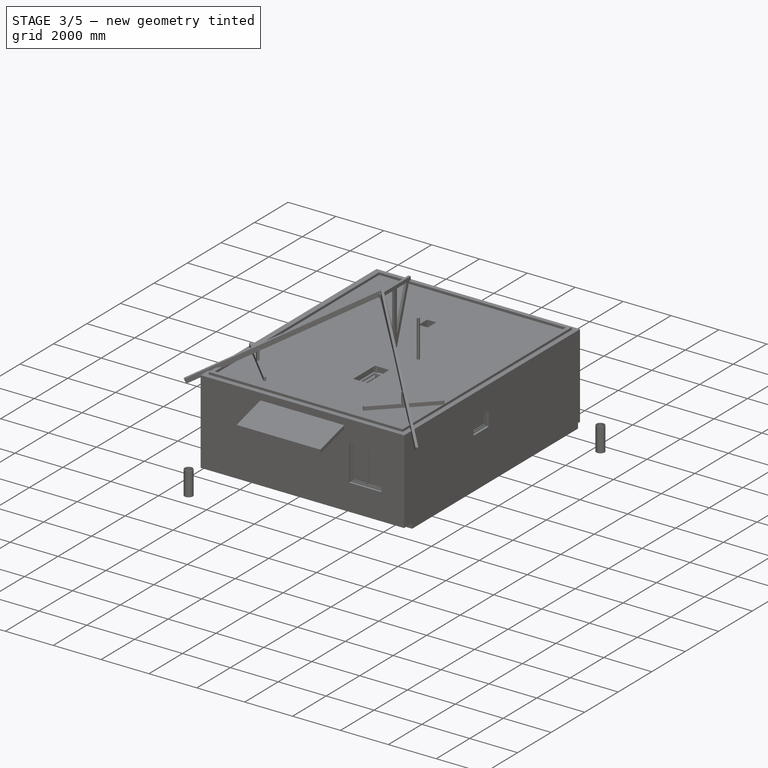
[diagram: stage 3 of 5 — iso view after this stage's code; geometry added in this stage tinted green]
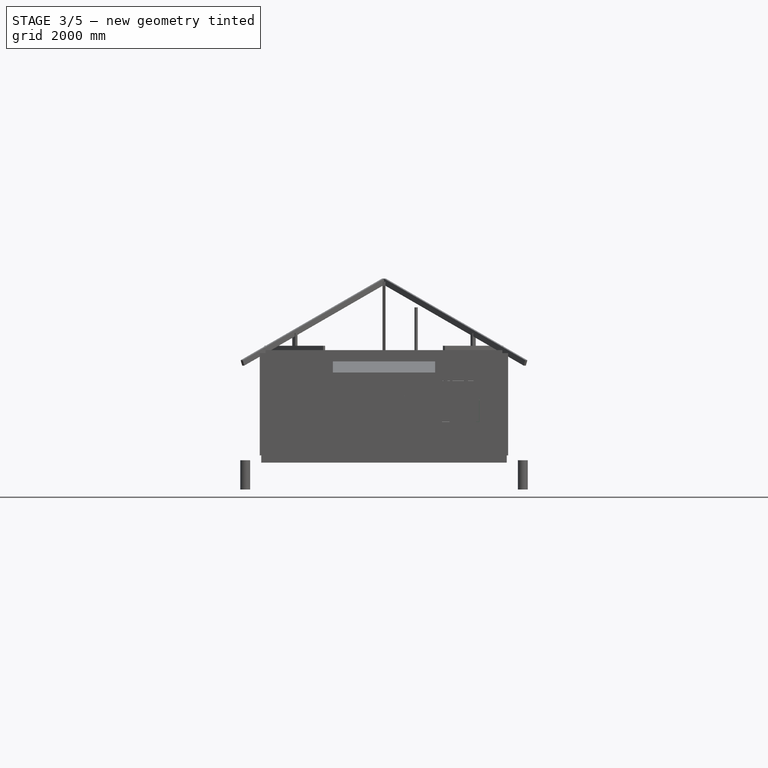
[diagram: stage 3 of 5 — front view after this stage's code; geometry added in this stage tinted green]
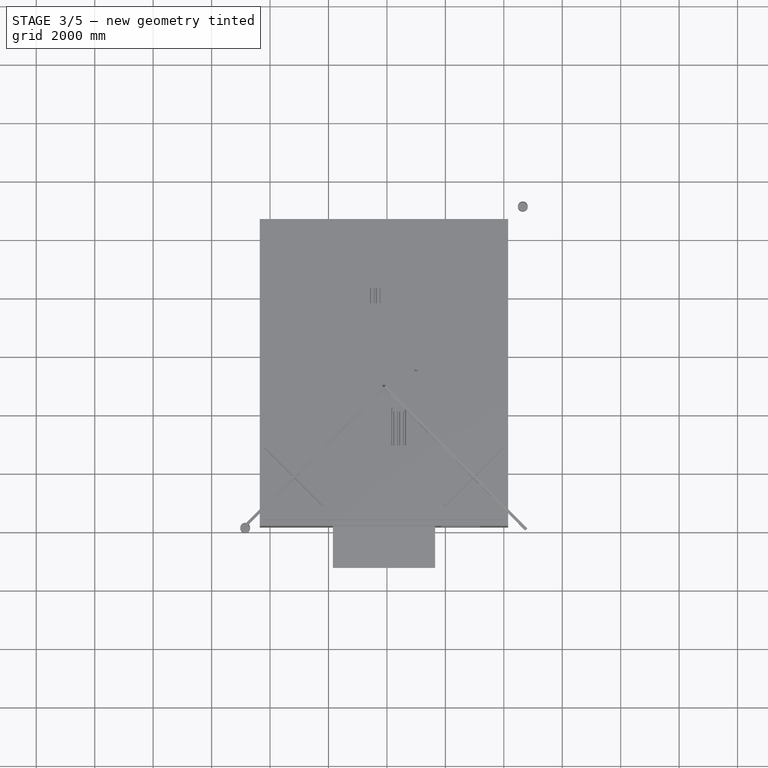
[diagram: stage 3 of 5 — top view after this stage's code; geometry added in this stage tinted green]
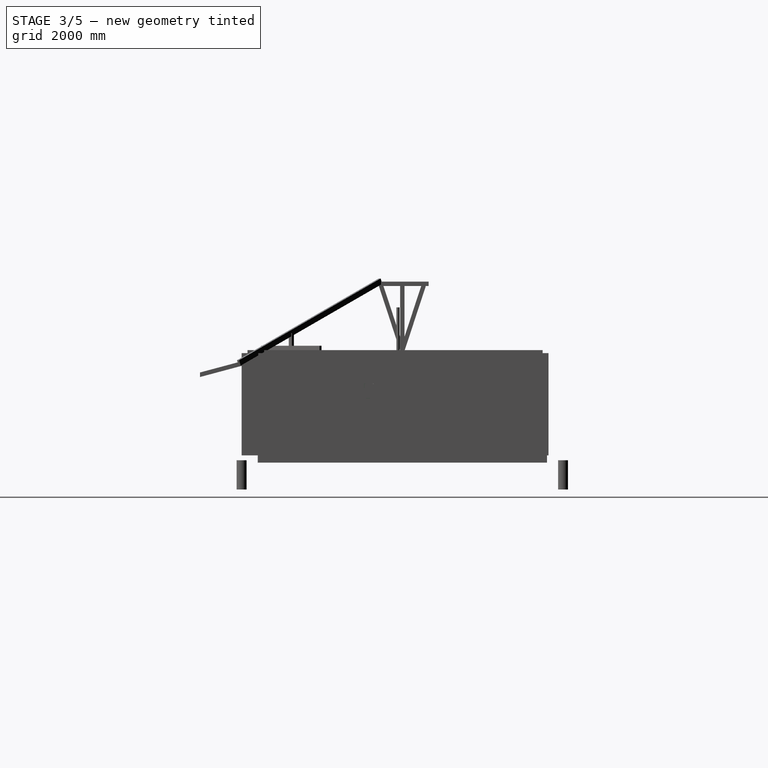
[diagram: stage 3 of 5 — right view after this stage's code; geometry added in this stage tinted green]
FEATURE [Part::Part2DObjectPython] Rectangle007  label="кровать_2_сп_005"  # Draft 2D object (typed FeaturePython)
  ChamferSize = 0
  Columns = 1
  FilletRadius = 25
  Height = 1700
  Length = 2100
  MakeFace = false
  Placement = pos=(3561.6,-1057.82,0) rot=(0,1,0;3.14159rad)
  Rows = 1
FEATURE [Part::Part2DObjectPython] Rectangle009  label="подушка_001"  # Draft 2D object (typed FeaturePython)
  ChamferSize = 0
  Columns = 1
  FilletRadius = 75
  Height = 600
  Length = 500
  MakeFace = false
  Placement = pos=(3517.47,-842.521,0) rot=(0,1,0;3.14159rad)
  Rows = 1
FEATURE [App::DocumentObjectGroup] Group  label="кровать_15_сп_003"
FEATURE [Part::Feature] Face  label="Водогрей"
  Placement = pos=(10286.5,2040,1200) rot=(0,0,1;3.14159rad)
  shape: bbox 500 x 450 x 2e-07 mm, 1 faces, 0 solids (baked)
FEATURE [Part::Part2DObjectPython] Ellipse  # Draft 2D object (typed FeaturePython)
  FirstAngle = 0
  LastAngle = 0
  MajorRadius = 163.5
  MakeFace = false
  MinorRadius = 136.114
  Placement = pos=(5639.4,3244.88,400) rot=(0,0,1;0rad)
FEATURE [Part::Feature] Face002
  Placement = pos=(7898.82,4749.32,400) rot=(0,0,-1;1.5708rad)
  shape: bbox 700 x 400 x 2e-07 mm, 1 faces, 0 solids (baked)
FEATURE [Part::Feature] Face001  label="умывальник"
  Placement = pos=(1519.38,3657.18,600) rot=(0,0,1;0rad)
  shape: bbox 600 x 353.2 x 2e-07 mm, 1 faces, 0 solids (baked)
FEATURE [Part::Part2DObjectPython] Ellipse001  # Draft 2D object (typed FeaturePython)
  FirstAngle = 0
  LastAngle = 0
  MajorRadius = 200.765
  MakeFace = false
  MinorRadius = 76.8815
  Placement = pos=(5820.15,1834.06,800) rot=(0,0,1;0rad)
FEATURE [Part::Extrusion] Extrude034  label="подушка_005"
  Base = -> Rectangle009
  Dir = (0,0,1)
  DirMode = 0
  FaceMakerClass = Part::FaceMakerBullseye
  LengthFwd = 150
  LengthRev = 0
  Placement = pos=(0,0,300) rot=(0,0,1;0rad)
  Solid = true
  Symmetric = false
FEATURE [Part::Extrusion] Extrude037  label="кровать_15_сп_002"
  Base = -> Rectangle007
  Dir = (0,0,1)
  DirMode = 0
  FaceMakerClass = Part::FaceMakerBullseye
  LengthFwd = 300
  LengthRev = 0
  Solid = true
  Symmetric = false
FEATURE [App::GeometryPython] BuildingPart037  label="Ванна_001"  # Arch/BIM object (typed FeaturePython)
  Area = 0
  Group = -> [Structure179]
  Height = 0
  IfcRole = 0
  LevelOffset = 0
FEATURE [Part::Part2DObjectPython] Rectangle403  label="кровать_2сп_002"  # Draft 2D object (typed FeaturePython)
  ChamferSize = 0
  Columns = 1
  FilletRadius = 25
  Height = 1700
  Length = 2100
  MakeFace = false
  Placement = pos=(45.4669,6870.15,0) rot=(1,0,0;3.14159rad)
  Rows = 1
FEATURE [Part::Part2DObjectPython] Rectangle404  label="подушка_007"  # Draft 2D object (typed FeaturePython)
  ChamferSize = 0
  Columns = 1
  FilletRadius = 75
  Height = 700
  Length = 500
  MakeFace = false
  Placement = pos=(145.463,5970.15,0) rot=(1,0,0;3.14159rad)
  Rows = 1
FEATURE [Part::Part2DObjectPython] Rectangle405  label="подушка_008"  # Draft 2D object (typed FeaturePython)
  ChamferSize = 0
  Columns = 1
  FilletRadius = 75
  Height = 700
  Length = 500
  MakeFace = false
  Placement = pos=(145.463,6770.15,0) rot=(1,0,0;3.14159rad)
  Rows = 1
FEATURE [Part::Extrusion] Extrude051  label="подушка_009"
  Base = -> Rectangle404
  Dir = (0,0,1)
  DirMode = 0
  FaceMakerClass = Part::FaceMakerBullseye
  LengthFwd = 150
  LengthRev = 0
  Placement = pos=(0,0,300) rot=(0,0,1;0rad)
  Solid = true
  Symmetric = false
FEATURE [Part::Extrusion] Extrude052  label="подушка_010"
  Base = -> Rectangle405
  Dir = (0,0,1)
  DirMode = 0
  FaceMakerClass = Part::FaceMakerBullseye
  LengthFwd = 150
  LengthRev = 0
  Placement = pos=(0,0,300) rot=(0,0,1;0rad)
  Solid = true
  Symmetric = false
FEATURE [Part::Extrusion] Extrude053  label="кровать_2_сп_003"
  Base = -> Rectangle403
  Dir = (0,0,1)
  DirMode = 0
  FaceMakerClass = Part::FaceMakerBullseye
  LengthFwd = 300
  LengthRev = 0
  Solid = true
  Symmetric = false
FEATURE [App::FeaturePython] Dimension016  # Draft dimension (typed FeaturePython)
  Diameter = false
  Dimline = (3768.08,6876.05,0)
  Direction = (0,0,0)
  Distance = 4200
  End = (-5.717e-13,7750,0)
  Normal = (0,0,1)
  Start = (-1.2471e-12,3550,0)
FEATURE [App::FeaturePython] Dimension017  # Draft dimension (typed FeaturePython)
  Diameter = false
  Dimline = (4568.08,3776.05,0)
  Direction = (0,0,0)
  Distance = 1400
  End = (4400,3550,0)
  Normal = (0,0,1)
  Start = (4400,4950,0)
FEATURE [App::FeaturePython] Dimension022  # Draft dimension (typed FeaturePython)
  Diameter = false
  Dimline = (1200,4500,0)
  Direction = (0,0,0)
  Distance = 4400
  End = (4400,5000,0)
  Normal = (0,0,1)
  Start = (-1.0139e-12,5000,0)
FEATURE [App::FeaturePython] Dimension023  # Draft dimension (typed FeaturePython)
  Diameter = false
  Dimline = (6649.59,-926.122,0)
  Direction = (0,0,0)
  Distance = 4300
  End = (7750,-1000,0)
  Normal = (0,0,1)
  Start = (7750,3300,0)
FEATURE [App::FeaturePython] Dimension024  # Draft dimension (typed FeaturePython)
  Diameter = false
  Dimline = (2300,2500,0)
  Direction = (0,0,0)
  Distance = 2800
  End = (2800,-1000,0)
  Normal = (0,0,1)
  Start = (-1.0672e-12,-1000,0)
FEATURE [App::FeaturePython] Dimension025  # Draft dimension (typed FeaturePython)
  Diameter = false
  Dimline = (3700,-100,0)
  Direction = (0,0,0)
  Distance = 1900
  End = (4800,-1000,0)
  Normal = (0,0,1)
  Start = (2900,-1000,0)
FEATURE [Part::Box] Box3065  label="ножка001"
  AttacherType = Attacher::AttachEngine3D
  Height = 720
  Length = 40
  Placement = pos=(5196.95,6515.41,0) rot=(0,0,1;3.95271rad)
  Width = 40
FEATURE [Part::Box] Box3066  label="ножка002"
  AttacherType = Attacher::AttachEngine3D
  Height = 720
  Length = 40
  Placement = pos=(4673.54,5964.36,0) rot=(0,0,1;3.95271rad)
  Width = 40
FEATURE [Part::Box] Box3067  label="ножка003"
  AttacherType = Attacher::AttachEngine3D
  Height = 720
  Length = 40
  Placement = pos=(5736.59,6014.44,0) rot=(0,0,1;3.95271rad)
  Width = 40
FEATURE [Part::Box] Box3068  label="ножка004"
  AttacherType = Attacher::AttachEngine3D
  Height = 720
  Length = 40
  Placement = pos=(5213.19,5463.39,0) rot=(0,0,1;3.95271rad)
  Width = 40
FEATURE [Part::Box] Box3082  label="ТВ 55" 001"
  AttacherType = Attacher::AttachEngine3D
  Height = 750
  Length = 1250
  Placement = pos=(3047,5425,520) rot=(0,0,1;1.5708rad)
  Width = 90
FEATURE [Part::Box] Box3095  label="тумбочка 400х450 001"
  AttacherType = Attacher::AttachEngine3D
  Height = 650
  Length = 400
  Placement = pos=(482.112,4740.99,0) rot=(0,0,1;1.5708rad)
  Width = 450
FEATURE [Part::Box] Box3096  label="тумбочка 400х450 002"
  AttacherType = Attacher::AttachEngine3D
  Height = 650
  Length = 400
  Placement = pos=(482.112,6900,0) rot=(0,0,1;1.5708rad)
  Width = 450
FEATURE [Part::Box] Box3097  label="тумбочка 400х450 003"
  AttacherType = Attacher::AttachEngine3D
  Height = 650
  Length = 400
  Placement = pos=(3130.07,-1087.03,0) rot=(0,0,-1;1.5708rad)
  Width = 450
FEATURE [Part::Box] Box3098  label="ножка017"
  AttacherType = Attacher::AttachEngine3D
  Height = 720
  Length = 40
  Placement = pos=(2960,8257.18,0) rot=(0,0,-1;1.5708rad)
  Width = 40
FEATURE [Part::Box] Box3099  label="ножка018"
  AttacherType = Attacher::AttachEngine3D
  Height = 720
  Length = 40
  Placement = pos=(2960,7647.18,0) rot=(0,0,-1;1.5708rad)
  Width = 40
FEATURE [Part::Box] Box3100  label="ножка019"
  AttacherType = Attacher::AttachEngine3D
  Height = 720
  Length = 40
  Placement = pos=(1600,7647.18,0) rot=(0,0,-1;1.5708rad)
  Width = 40
FEATURE [Part::Box] Box3101  label="ножка020"
  AttacherType = Attacher::AttachEngine3D
  Height = 720
  Length = 40
  Placement = pos=(1600,8257.2,0) rot=(0,0,-1;1.5708rad)
  Width = 40
FEATURE [Part::Box] Box3102  label="столешница003"
  AttacherType = Attacher::AttachEngine3D
  Height = 30
  Length = 650
  Placement = pos=(1600,8257.18,720) rot=(0,0,-1;1.5708rad)
  Width = 1400
FEATURE [Part::MultiFuse] Fusion006
  Shapes = -> [Box3101,Box3098,Box3099,Box3100,Box3102]
FEATURE [Part::FeaturePython] Equipment008  label="стол письменный 002"  # Arch/BIM object (typed FeaturePython)
  Base = -> Fusion006
  EquipmentPower = 0
  HorizontalArea = 0
  IfcRole = 79
  MoveWithHost = false
  PerimeterLength = 0
  VerticalArea = 0
FEATURE [Part::Box] Box3103  label="ножка021"
  AttacherType = Attacher::AttachEngine3D
  Height = 720
  Length = 40
  Placement = pos=(676.519,-920.904,0) rot=(0,0,1;3.14159rad)
  Width = 40
FEATURE [Part::Box] Box3104  label="ножка022"
  AttacherType = Attacher::AttachEngine3D
  Height = 720
  Length = 40
  Placement = pos=(66.5188,-920.904,0) rot=(0,0,1;3.14159rad)
  Width = 40
FEATURE [Part::Box] Box3105  label="ножка023"
  AttacherType = Attacher::AttachEngine3D
  Height = 720
  Length = 40
  Placement = pos=(66.5188,439.096,0) rot=(0,0,1;3.14159rad)
  Width = 40
FEATURE [Part::Box] Box3106  label="ножка024"
  AttacherType = Attacher::AttachEngine3D
  Height = 720
  Length = 40
  Placement = pos=(676.532,439.094,0) rot=(0,0,1;3.14159rad)
  Width = 40
FEATURE [Part::Box] Box3107  label="столешница004"
  AttacherType = Attacher::AttachEngine3D
  Height = 30
  Length = 650
  Placement = pos=(676.519,439.096,720) rot=(0,0,1;3.14159rad)
  Width = 1400
FEATURE [Part::MultiFuse] Fusion007
  Shapes = -> [Box3106,Box3103,Box3104,Box3105,Box3107]
FEATURE [Part::FeaturePython] Equipment009  label="стол письменный 003"  # Arch/BIM object (typed FeaturePython)
  Base = -> Fusion007
  EquipmentPower = 0
  HorizontalArea = 0
  IfcRole = 79
  MoveWithHost = false
  PerimeterLength = 0
  VerticalArea = 0
FEATURE [Part::Part2DObjectPython] Rectangle542  label="подушка_011"  # Draft 2D object (typed FeaturePython)
  ChamferSize = 0
  Columns = 1
  FilletRadius = 75
  Height = 600
  Length = 500
  MakeFace = false
  Placement = pos=(3525.61,-113.554,0) rot=(0,1,0;3.14159rad)
  Rows = 1
FEATURE [Part::Extrusion] Extrude054  label="подушка_012"
  Base = -> Rectangle542
  Dir = (0,0,1)
  DirMode = 0
  FaceMakerClass = Part::FaceMakerBullseye
  LengthFwd = 150
  LengthRev = 0
  Placement = pos=(0,0,300) rot=(0,0,1;0rad)
  Solid = true
  Symmetric = false
FEATURE [Part::Box] Box3108  label="тумба под ТВ 90х26х45 001"
  AttacherType = Attacher::AttachEngine3D
  Height = 450
  Length = 900
  Placement = pos=(3110,5600,0) rot=(0,0,1;1.5708rad)
  Width = 260
FEATURE [App::GeometryPython] BuildingPart065  label="Диван "  # Arch/BIM object (typed FeaturePython)
  Area = 0
  Group = -> [Structure275,Structure278,Structure276,Structure277]
  Height = 0
  IfcRole = 0
  LevelOffset = 0
FEATURE [App::FeaturePython] Dimension032  # Draft dimension (typed FeaturePython)
  Diameter = false
  Dimline = (7643.46,4741.47,0)
  Direction = (0,0,0)
  Distance = 858.117
  End = (4275,5300,0)
  Normal = (0,0,1)
  Start = (3416.88,5300,0)
FEATURE [App::FeaturePython] Dimension033  # Draft dimension (typed FeaturePython)
  Diameter = false
  Dimline = (3600,5100,0)
  Direction = (0,0,0)
  Distance = 989.159
  End = (3500,7050,0)
  Normal = (0,0,1)
  Start = (3500,6060.84,0)
FEATURE [App::DocumentObjectGroup] Group068  label="размеры"
  Group = -> [Dimension016,Dimension017,Dimension022,Dimension023,Dimension024,Dimension025,Dimension026,Dimension028,Dimension032,Dimension033]
FEATURE [Part::Box] Box3111  label="холодильник 75 см"
  AttacherType = Attacher::AttachEngine3D
  Height = 1800
  Length = 950
  Placement = pos=(7800,7350,0) rot=(0,0,1;1.5708rad)
  Width = 750
FEATURE [Part::Box] Box3113  label="кух.зона 006"
  AttacherType = Attacher::AttachEngine3D
  Height = 900
  Length = 300
  Placement = pos=(7100,3800,0) rot=(0,0,1;1.5708rad)
  Width = 2350
FEATURE [Part::Part2DObjectPython] Rectangle554  label="мойка"  # Draft 2D object (typed FeaturePython)
  ChamferSize = 0
  Columns = 1
  FilletRadius = 150
  Height = 500
  Length = 600
  MakeFace = false
  Placement = pos=(7702.37,6100,901) rot=(0,0,1;1.5708rad)
  Rows = 1
FEATURE [Part::Part2DObjectPython] Circle010  # Draft 2D object (typed FeaturePython)
  FirstAngle = 0
  LastAngle = 0
  MakeFace = false
  Placement = pos=(7292.31,4596.13,901) rot=(0,0,1;0rad)
  Radius = 100
FEATURE [Part::FeaturePython] Array021  label="плита"  # Draft array (typed FeaturePython)
  Angle = 360
  ArrayType = 0
  Axis = (0,0,1)
  Base = -> Circle010
  Center = (0,0,0)
  Fuse = false
  IntervalAxis = (0,0,0)
  IntervalX = (300,0,0)
  IntervalY = (0,300,0)
  IntervalZ = (0,0,1)
  NumberPolar = 1
  NumberX = 2
  NumberY = 2
  NumberZ = 1
FEATURE [Part::Part2DObjectPython] Rectangle555  label="вытяжка осн бол"  # Draft 2D object (typed FeaturePython)
  ChamferSize = 0
  Columns = 1
  FilletRadius = 0
  Height = 700
  Length = 700
  MakeFace = false
  Placement = pos=(7100,5100,1700) rot=(0,0,-1;1.5708rad)
  Rows = 1
FEATURE [Part::Part2DObjectPython] Rectangle556  label="вытяжка осн мал"  # Draft 2D object (typed FeaturePython)
  ChamferSize = 0
  Columns = 1
  FilletRadius = 0
  Height = 200
  Length = 200
  MakeFace = false
  Placement = pos=(7550,4850,2500) rot=(0,0,-1;1.5708rad)
  Rows = 1
FEATURE [Part::Loft] Loft  label="вытяжка"
  Closed = false
  MaxDegree = 5
  Ruled = false
  Sections = -> [Rectangle555,Rectangle556]
  Solid = true
FEATURE [Part::Part2DObjectPython] Rectangle563  label="проём_056"  # Draft 2D object (typed FeaturePython)
  ChamferSize = 0
  Columns = 1
  FilletRadius = 0
  Height = 150
  Length = 900
  MakeFace = true
  Placement = pos=(2200,3650,0) rot=(0,0,1;0rad)
  Rows = 1
FEATURE [Part::Box] Box3116  label="шкаф 120х45х240 005"
  AttacherType = Attacher::AttachEngine3D
  Height = 2400
  Length = 1900
  Placement = pos=(-9.1e-13,3800,0) rot=(0,0,1;0rad)
  Width = 600
FEATURE [Part::Part2DObjectPython] Rectangle565  label="прощадь по ЖБ стене внутр."  # Draft 2D object (typed FeaturePython)
  ChamferSize = 0
  Columns = 1
  FilletRadius = 0
  Height = 9800
  Length = 7800
  MakeFace = false
  Placement = pos=(-1.815e-13,-1500,0) rot=(0,0,1;0rad)
  Rows = 1
FEATURE [Part::Box] Box3117  label="шкаф 120х45х240 006"
  AttacherType = Attacher::AttachEngine3D
  Height = 2400
  Length = 1300
  Placement = pos=(613.61,484.731,0) rot=(0,0,1;1.5708rad)
  Width = 600
FEATURE [Part::Part2DObjectPython] Rectangle575  label="кладовая"  # Draft 2D object (typed FeaturePython)
  ChamferSize = 0
  Columns = 1
  FilletRadius = 0
  Height = 1300
  Length = 1800
  MakeFace = false
  Placement = pos=(5050,-1500,0) rot=(0,0,1;1.5708rad)
  Rows = 1
FEATURE [Part::Part2DObjectPython] Rectangle576  label="спальня #1"  # Draft 2D object (typed FeaturePython)
  ChamferSize = 0
  Columns = 1
  FilletRadius = 0
  Height = 3200
  Length = 4500
  MakeFace = false
  Placement = pos=(3200,3800,0) rot=(0,0,1;1.5708rad)
  Rows = 1
FEATURE [Part::Part2DObjectPython] Rectangle577  label="кухня-гостиная001"  # Draft 2D object (typed FeaturePython)
  ChamferSize = 0
  Columns = 1
  FilletRadius = 0
  Height = 4500
  Length = 4450
  MakeFace = false
  Placement = pos=(3350,3800,0) rot=(0,0,1;0rad)
  Rows = 1
FEATURE [Part::Part2DObjectPython] Rectangle578  label="прощадь внутри стен002"  # Draft 2D object (typed FeaturePython)
  ChamferSize = 0
  Columns = 1
  FilletRadius = 0
  Height = 9800
  Length = 7800
  MakeFace = false
  Placement = pos=(7800,8300,0) rot=(0,0,1;3.14159rad)
  Rows = 1
FEATURE [Part::Part2DObjectPython] Rectangle580  label="спальня #2"  # Draft 2D object (typed FeaturePython)
  ChamferSize = 0
  Columns = 1
  FilletRadius = 0
  Height = 3000
  Length = 2600
  MakeFace = false
  Placement = pos=(5200,-1500,0) rot=(0,0,-1;0rad)
  Rows = 1
FEATURE [Part::Part2DObjectPython] Rectangle581  label="санузел"  # Draft 2D object (typed FeaturePython)
  ChamferSize = 0
  Columns = 1
  FilletRadius = 0
  Height = 2000
  Length = 2600
  MakeFace = false
  Placement = pos=(5200,1650,0) rot=(0,0,-1;0rad)
  Rows = 1
FEATURE [Part::Part2DObjectPython] Rectangle582  label="тамбур"  # Draft 2D object (typed FeaturePython)
  ChamferSize = 0
  Columns = 1
  FilletRadius = 0
  Height = 1400
  Length = 1700
  MakeFace = false
  Placement = pos=(1400,1950,0) rot=(0,0,1;1.5708rad)
  Rows = 1
FEATURE [Part::Part2DObjectPython] Rectangle583  label="кабинет001"  # Draft 2D object (typed FeaturePython)
  ChamferSize = 0
  Columns = 1
  FilletRadius = 0
  Height = 3300
  Length = 3600
  MakeFace = false
  Placement = pos=(-1.509e-13,-1500,0) rot=(0,0,1;0rad)
  Rows = 1
FEATURE [Part::Part2DObjectPython] Wire162  label="прихожая"  # Draft 2D object (typed FeaturePython)
  ChamferSize = 0
  Closed = true
  End = (1550,1950,0)
  FilletRadius = 0
  Length = 13400
  MakeFace = false
  Placement = pos=(2450,3650,0) rot=(0,0,1;0rad)
  Points = (6) [(-900,-1.36424e-12,0),(2600,-1.36424e-12,0),(2600,-3200,0),(1300,-3200,0),(1300,-1700,0),(-900,-1700,0)]
  Start = (1550,3650,0)
  Subdivisions = 0
FEATURE [Part::Part2DObjectPython] Rectangle586  label="проём_057"  # Draft 2D object (typed FeaturePython)
  ChamferSize = 0
  Columns = 1
  FilletRadius = 0
  Height = 800
  Length = 150
  MakeFace = true
  Placement = pos=(5050,1750,0) rot=(0,0,1;0rad)
  Rows = 1
FEATURE [Part::Part2DObjectPython] ShapeString  label="надпись 001"  # Draft 2D object (typed FeaturePython)
  FontFile = <path>
  Placement = pos=(4774.52,4464.67,0) rot=(0,0,1;0rad)
  Size = 100
  String = кухня-гостиная 20 м2
  Tracking = 0
FEATURE [Part::Cylinder] Cylinder  label="стол кругл."
  Angle = 360
  AttacherType = Attacher::AttachEngine3D
  Height = 30
  Placement = pos=(5196.95,5967.92,720) rot=(0,0,-1;0.75968rad)
  Radius = 575
FEATURE [Part::MultiFuse] Fusion  label="стол круглый D115 раздвижной"
  Shapes = -> [Cylinder,Box3065,Box3066,Box3067,Box3068]
FEATURE [Part::Box] Box3118  label="сиденье003"
  AttacherType = Attacher::AttachEngine3D
  Height = 50
  Length = 520
  Placement = pos=(4763.7,5873.41,400) rot=(0,0,1;3.93973rad)
  Width = 480
FEATURE [Part::Box] Box3119  label="ножка025"
  AttacherType = Attacher::AttachEngine3D
  Height = 400
  Length = 40
  Placement = pos=(4743.7,5222.57,0) rot=(0,0,1;3.93973rad)
  Width = 40
FEATURE [Part::Box] Box3120  label="ножка026"
  AttacherType = Attacher::AttachEngine3D
  Height = 400
  Length = 40
  Placement = pos=(4763.71,5873.42,0) rot=(0,0,1;3.93973rad)
  Width = 40
FEATURE [Part::Box] Box3121  label="ножка027"
  AttacherType = Attacher::AttachEngine3D
  Height = 400
  Length = 40
  Placement = pos=(4428.63,5529.71,0) rot=(0,0,1;3.93973rad)
  Width = 40
FEATURE [Part::Box] Box3122  label="ножка028"
  AttacherType = Attacher::AttachEngine3D
  Height = 400
  Length = 40
  Placement = pos=(5078.76,5566.27,0) rot=(0,0,1;3.93973rad)
  Width = 40
FEATURE [Part::Box] Box3123  label="спинка003"
  AttacherType = Attacher::AttachEngine3D
  Height = 510
  Length = 50
  Placement = pos=(4435.61,5536.87,400) rot=(0,0,1;3.93973rad)
  Width = 480
FEATURE [Part::MultiFuse] Fusion008  label="стул003"
  Shapes = -> [Box3120,Box3121,Box3119,Box3118,Box3122,Box3123]
FEATURE [Part::Box] Box3124  label="сиденье004"
  AttacherType = Attacher::AttachEngine3D
  Height = 50
  Length = 520
  Placement = pos=(5604.1,6061.04,400) rot=(0,0,1;0.818437rad)
  Width = 480
FEATURE [Part::Box] Box3125  label="ножка029"
  AttacherType = Attacher::AttachEngine3D
  Height = 400
  Length = 40
  Placement = pos=(5610.88,6712.16,0) rot=(0,0,1;0.818437rad)
  Width = 40
FEATURE [Part::Box] Box3126  label="ножка030"
  AttacherType = Attacher::AttachEngine3D
  Height = 400
  Length = 40
  Placement = pos=(5604.09,6061.03,0) rot=(0,0,1;0.818437rad)
  Width = 40
FEATURE [Part::Box] Box3127  label="ножка031"
  AttacherType = Attacher::AttachEngine3D
  Height = 400
  Length = 40
  Placement = pos=(5932.11,6411.48,0) rot=(0,0,1;0.818437rad)
  Width = 40
FEATURE [Part::Box] Box3128  label="ножка032"
  AttacherType = Attacher::AttachEngine3D
  Height = 400
  Length = 40
  Placement = pos=(5282.86,6361.72,0) rot=(0,0,1;0.818437rad)
  Width = 40
FEATURE [Part::Box] Box3129  label="спинка004"
  AttacherType = Attacher::AttachEngine3D
  Height = 510
  Length = 50
  Placement = pos=(5925.28,6404.18,400) rot=(0,0,1;0.818437rad)
  Width = 480
FEATURE [Part::MultiFuse] Fusion009  label="стул004"
  Shapes = -> [Box3126,Box3127,Box3125,Box3124,Box3128,Box3129]
FEATURE [App::GeometryPython] BuildingPart063  label="обед.стол со стульями"  # Arch/BIM object (typed FeaturePython)
  Area = 0
  Group = -> [Fusion,Fusion003,Fusion004,Fusion008,Fusion009]
  Height = 0
  IfcRole = 0
  LevelOffset = 0
FEATURE [Part::Box] Box3130  label="шкаф 130х60х240 002"
  AttacherType = Attacher::AttachEngine3D
  Height = 2400
  Length = 1400
  Placement = pos=(4.547e-13,1937.91,0) rot=(0,0,1;0rad)
  Width = 600
FEATURE [App::DocumentObjectGroup] ____________  label="спальня  побольше"
  Group = -> [Group038,Box3082,Box3108,Box3095,Box3096,Box3116,Equipment008]
FEATURE [App::DocumentObjectGroup] ____________001  label="спальня  поменьше"
  Group = -> [Group,Box3097,Equipment009,Box3117,Extrude037,Extrude034,Extrude054]
FEATURE [App::DocumentObjectGroup] Group039  label="спальни"
  Group = -> [____________,____________001]
FEATURE [Part::Part2DObjectPython] Arc  # Draft 2D object (typed FeaturePython)
  FirstAngle = 90
  LastAngle = 180
  MakeFace = false
  Placement = pos=(3100,3800,0) rot=(0,0,1;0rad)
  Radius = 900
FEATURE [Part::Part2DObjectPython] Line538  # Draft 2D object (typed FeaturePython)
  ChamferSize = 0
  Closed = false
  End = (3450,4700,0)
  FilletRadius = 0
  Length = 900
  MakeFace = false
  Placement = pos=(3450,3800,0) rot=(0,0,1;0rad)
  Points = (2) [(0,0,0),(0,900,0)]
  Start = (3450,3800,0)
  Subdivisions = 0
  Support = -> [Rectangle382]
FEATURE [Part::Part2DObjectPython] Line539  # Draft 2D object (typed FeaturePython)
  ChamferSize = 0
  Closed = false
  End = (4700,4150,0)
  FilletRadius = 0
  Length = 350
  MakeFace = false
  Placement = pos=(4700,3800,0) rot=(0,0,1;0rad)
  Points = (2) [(0,0,0),(9.09495e-13,350,0)]
  Start = (4700,3800,0)
  Subdivisions = 0
FEATURE [Part::Part2DObjectPython] Arc007  # Draft 2D object (typed FeaturePython)
  FirstAngle = 0
  LastAngle = 90
  MakeFace = false
  Placement = pos=(3450,3800,0) rot=(0,0,1;0rad)
  Radius = 900
FEATURE [Part::Part2DObjectPython] Arc008  # Draft 2D object (typed FeaturePython)
  FirstAngle = 90
  LastAngle = 180
  MakeFace = false
  Placement = pos=(4700,3800,0) rot=(0,0,1;0rad)
  Radius = 350
FEATURE [Part::Part2DObjectPython] Line540  # Draft 2D object (typed FeaturePython)
  ChamferSize = 0
  Closed = false
  End = (3100,3800,0)
  FilletRadius = 0
  Length = 900
  MakeFace = false
  Placement = pos=(3100,4600,0) rot=(0,0,1;0rad)
  Points = (2) [(0,100,0),(0,-800,0)]
  Start = (3100,4700,0)
  Subdivisions = 0
FEATURE [Part::Part2DObjectPython] ShapeString001  label="надпись 002"  # Draft 2D object (typed FeaturePython)
  FontFile = <path>
  Placement = pos=(1526.39,4836.24,0) rot=(0,0,1;0rad)
  Size = 100
  String = спальня 14.4 м2
  Tracking = 0
FEATURE [Part::Part2DObjectPython] ShapeString002  label="надпись 003"  # Draft 2D object (typed FeaturePython)
  FontFile = <path>
  Placement = pos=(1223.27,965.618,0) rot=(0,0,1;0rad)
  Size = 100
  String = спальня 11.8 м2
  Tracking = 0
FEATURE [Part::Part2DObjectPython] ShapeString003  label="надпись 004"  # Draft 2D object (typed FeaturePython)
  FontFile = <path>
  Placement = pos=(5989.62,2269.66,0) rot=(0,0,1;0rad)
  Size = 100
  String = С/У 5.2 м2
  Tracking = 0
FEATURE [Part::Part2DObjectPython] ShapeString004  label="надпись 005"  # Draft 2D object (typed FeaturePython)
  FontFile = <path>
  Placement = pos=(5808.75,189.13,0) rot=(0,0,1;0rad)
  Size = 100
  String = кабинет 7.8 м2
  Tracking = 0
FEATURE [Part::Part2DObjectPython] ShapeString005  label="надпись 006"  # Draft 2D object (typed FeaturePython)
  FontFile = <path>
  Placement = pos=(3850.87,-416.348,0) rot=(0,0,1;0rad)
  Size = 100
  String = кладовка 2.3 м2
  Tracking = 0
FEATURE [Part::Part2DObjectPython] ShapeString006  label="надпись 007"  # Draft 2D object (typed FeaturePython)
  FontFile = <path>
  Placement = pos=(244.246,2900,0) rot=(0,0,1;0rad)
  Size = 100
  String = тамбур 2.3 м2
  Tracking = 0
FEATURE [Part::Part2DObjectPython] Line549  # Draft 2D object (typed FeaturePython)
  ChamferSize = 0
  Closed = false
  End = (1550,2650,0)
  FilletRadius = 0
  Length = 901.388
  MakeFace = false
  Placement = pos=(2550,2650,0) rot=(0,0,-1;1.5708rad)
  Points = (2) [(0,-98.6122,0),(9.09495e-13,-1000,0)]
  Start = (2451.39,2650,0)
  Subdivisions = 0
FEATURE [Part::Box] Box3131  label="стиральная_машина_60х60"
  AttacherType = Attacher::AttachEngine3D
  Height = 800
  Length = 600
  Placement = pos=(7043.65,3040,0) rot=(0,0,1;1.5708rad)
  Width = 600
FEATURE [App::DocumentObjectGroup] Group009  label="Сантехника"
  Group = -> [Face,Group010,Group011,Extrude043,BuildingPart037,Box3131]
FEATURE [Part::FeaturePython] Wall048  label="стена_над_дверью_016"  # Arch/BIM object (typed FeaturePython)
  Align = 2
  Base = -> Rectangle372
  BlockHeight = 0
  BlockLength = 0
  CountBroken = 0
  CountEntire = 0
  Face = 0
  Height = 700
  HorizontalArea = 153000
  IfcRole = 156
  Joint = 0
  Length = 0
  MakeBlocks = false
  MoveWithHost = false
  Normal = (0,0,0)
  OffsetFirst = 0
  OffsetSecond = 0
  PerimeterLength = 2340
  Placement = pos=(0,-3.638e-12,2120) rot=(0,0,1;0rad)
  VerticalArea = 1638000
  Width = 200
FEATURE [Part::FeaturePython] Wall075  label="стена_над_дверью_022"  # Arch/BIM object (typed FeaturePython)
  Align = 2
  Base = -> Rectangle586
  BlockHeight = 0
  BlockLength = 0
  CountBroken = 0
  CountEntire = 0
  Face = 0
  Height = 700
  HorizontalArea = 120000
  IfcRole = 156
  Joint = 0
  Length = 0
  MakeBlocks = false
  MoveWithHost = false
  Normal = (0,0,0)
  OffsetFirst = 0
  OffsetSecond = 0
  PerimeterLength = 1900
  Placement = pos=(1.819e-12,3.1832e-12,2120) rot=(0,0,1;0rad)
  VerticalArea = 1330000
  Width = 200
FEATURE [App::GeometryPython] BuildingPart033  label="перегородки ГБ 150мм h3м"  # Arch/BIM object (typed FeaturePython)
  Area = 0
  Group = -> [Wall030,Wall031,Wall034,Wall036,Wall035,Wall032,Wall033,Wall048,Wall049,Wall050,Wall052,Wall071,Wall074,Wall075]
  Height = 0
  IfcRole = 0
  LevelOffset = 0
FEATURE [Part::Part2DObjectPython] ShapeString007  label="надпись 008"  # Draft 2D object (typed FeaturePython)
  FontFile = <path>
  Placement = pos=(2968.66,3215.29,0) rot=(0,0,1;0rad)
  Size = 100
  String = Всего внутри стен: 76.4 м2
  Tracking = 0
FEATURE [Part::Box] Box3132  label="ножка033"
  AttacherType = Attacher::AttachEngine3D
  Height = 720
  Length = 40
  Placement = pos=(7136.3,-824.351,0) rot=(0,0,-1;1.5708rad)
  Width = 40
FEATURE [Part::MultiFuse] Fusion010
  Shapes = -> [Box3135,Box3132,Box3133,Box3134,Box3136]
FEATURE [Part::FeaturePython] Equipment010  label="стол письменный 004"  # Arch/BIM object (typed FeaturePython)
  Base = -> Fusion010
  EquipmentPower = 0
  HorizontalArea = 0
  IfcRole = 79
  MoveWithHost = false
  PerimeterLength = 0
  VerticalArea = 0
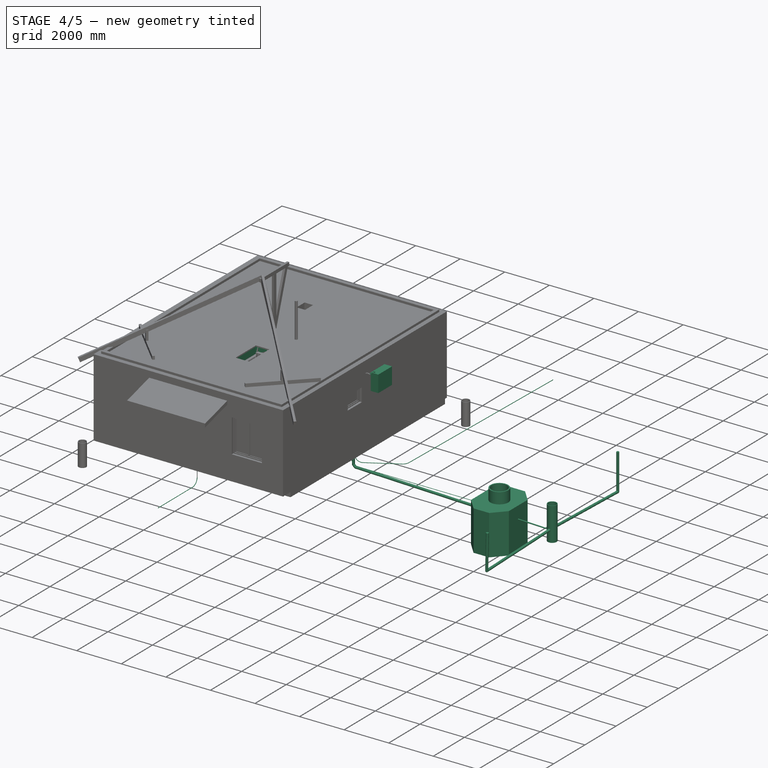
[diagram: stage 4 of 5 — iso view after this stage's code; geometry added in this stage tinted green]
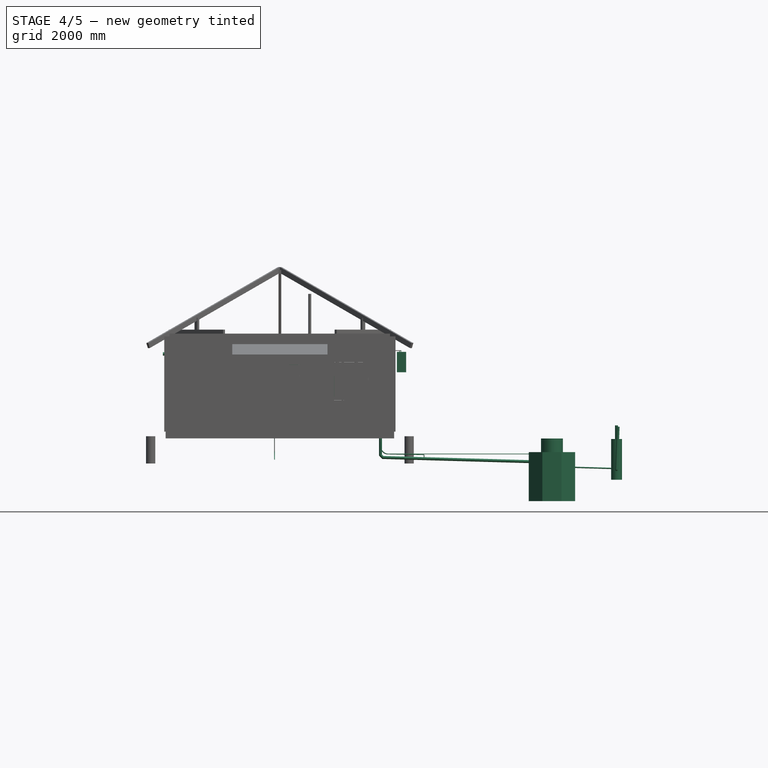
[diagram: stage 4 of 5 — front view after this stage's code; geometry added in this stage tinted green]
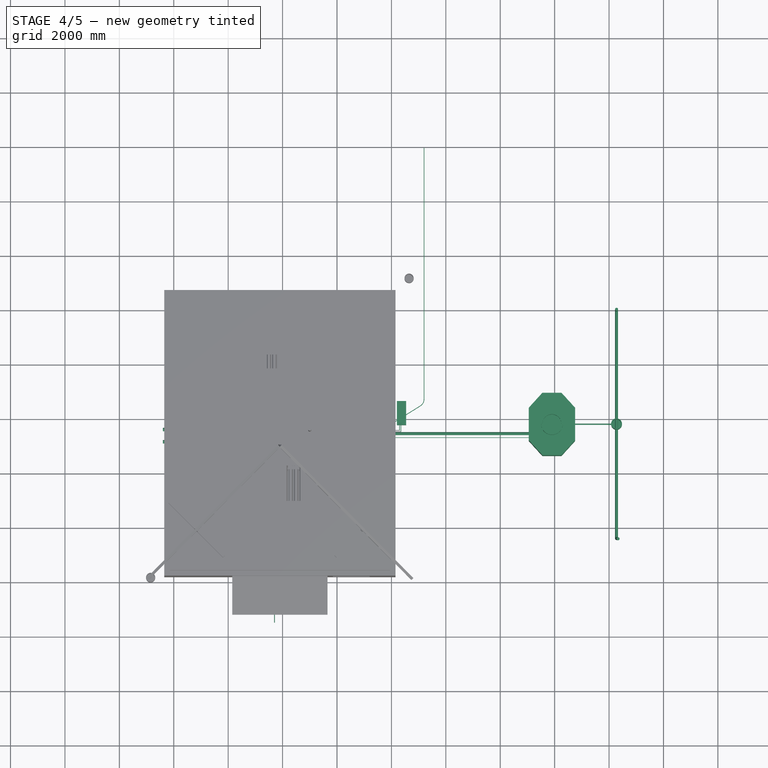
[diagram: stage 4 of 5 — top view after this stage's code; geometry added in this stage tinted green]
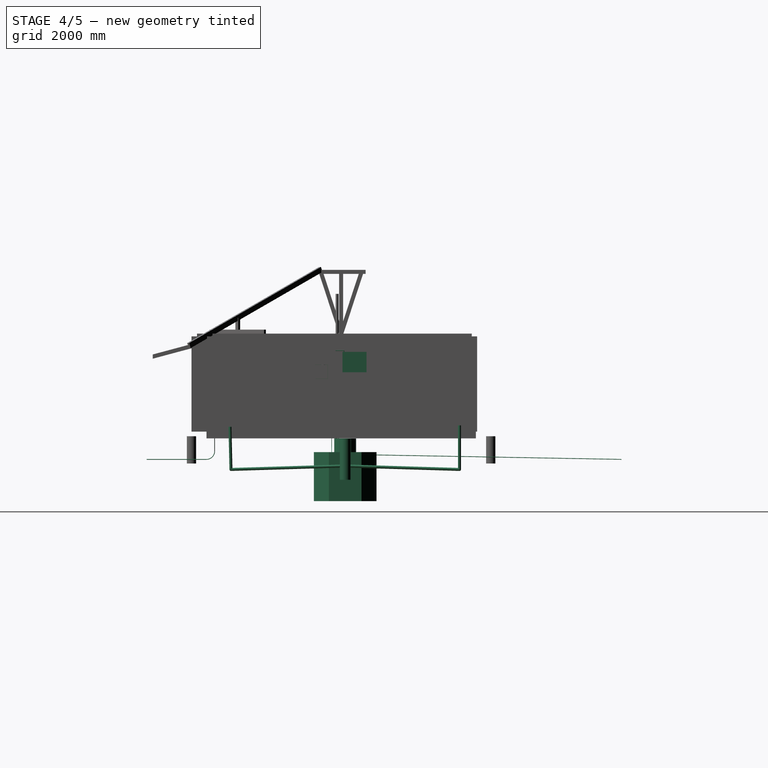
[diagram: stage 4 of 5 — right view after this stage's code; geometry added in this stage tinted green]
FEATURE [Part::Part2DObjectPython] Rectangle496  # Draft 2D object (typed FeaturePython)
  ChamferSize = 0
  Columns = 1
  FilletRadius = 0
  Height = 2500
  Length = 0
  MakeFace = false
  Placement = pos=(0,5700,0) rot=(0.57735,0.57735,0.57735;2.0944rad)
  Rows = 1
FEATURE [Part::Part2DObjectPython] Wire103  label="стояк_кан."  # Draft 2D object (typed FeaturePython)
  ChamferSize = 0
  Closed = true
  End = (7600,3450,100)
  FilletRadius = 0
  Length = 300
  MakeFace = false
  Placement = pos=(7600,3450,-200) rot=(0,0,1;0rad)
  Points = (2) [(0,0,0),(0,0,300)]
  Start = (7600,3450,-200)
  Subdivisions = 0
FEATURE [Part::FeaturePython] Pipe  label="стояк канализационный D110"  # Arch/BIM object (typed FeaturePython)
  Base = -> Wire103
  Diameter = 110
  HorizontalArea = 0
  IfcRole = 98
  Length = 300
  MoveWithHost = false
  OffsetEnd = 0
  OffsetStart = 0
  PerimeterLength = 0
  VerticalArea = 0
FEATURE [Part::Part2DObjectPython] Rectangle504  # Draft 2D object (typed FeaturePython)
  ChamferSize = 0
  Columns = 1
  FilletRadius = 0
  Height = 0
  Length = 200
  MakeFace = false
  Placement = pos=(5450,7650,4250) rot=(0,0,1;0rad)
  Rows = 1
FEATURE [Part::Part2DObjectPython] Line353  # Draft 2D object (typed FeaturePython)
  ChamferSize = 0
  Closed = false
  End = (7600,3450,-201.806)
  FilletRadius = 0
  Length = 800
  MakeFace = false
  Placement = pos=(7600,3450,-1001.81) rot=(0,0,-1;1.5708rad)
  Points = (2) [(0,0,0),(0,0,800)]
  Start = (7600,3450,-1001.81)
  Subdivisions = 0
FEATURE [Part::FeaturePython] Pipe006  label="стояк D110 _001"  # Arch/BIM object (typed FeaturePython)
  Base = -> Line353
  Diameter = 110
  HorizontalArea = 0
  IfcRole = 98
  Length = 800
  MoveWithHost = false
  OffsetEnd = 0
  OffsetStart = 0
  PerimeterLength = 0
  VerticalArea = 0
FEATURE [App::DocumentObjectGroup] Group011  label="умывальник001"
  Group = -> [Face001,Ellipse001,Extrude045,Structure250]
FEATURE [Part::Part2DObjectPython] Wire127  # Draft 2D object (typed FeaturePython)
  ChamferSize = 0
  Closed = false
  End = (7600,3450,-1001.81)
  FilletRadius = 0
  Length = 127.012
  MakeFace = true
  Placement = pos=(7660.81,3450,-1103.63) rot=(0.862856,-0.357407,0.357407;1.71777rad)
  Points = (4) [(0,0,0),(0,61,1.35447e-14),(0,86,1.90958e-14),(29,115,0)]
  Start = (7660.81,3450,-1103.63)
  Subdivisions = 0
FEATURE [Part::Part2DObjectPython] Wire129  # Draft 2D object (typed FeaturePython)
  ChamferSize = 0
  Closed = false
  End = (7660.81,3450,-1103.63)
  FilletRadius = 0
  Length = 127.012
  MakeFace = true
  Placement = pos=(7775.81,3450,-1132.63) rot=(0.57735,-0.57735,0.57735;2.0944rad)
  Points = (4) [(0,0,0),(0,61,1.35447e-14),(0,86,1.90958e-14),(29,115,0)]
  Start = (7775.81,3450,-1132.63)
  Subdivisions = 0
FEATURE [Part::FeaturePython] Pipe027  label="Отвод D110 (45) 002"  # Arch/BIM object (typed FeaturePython)
  Base = -> Wire129
  Diameter = 110
  HorizontalArea = 0
  IfcRole = 98
  Length = 127.012
  MoveWithHost = false
  OffsetEnd = 0
  OffsetStart = 0
  PerimeterLength = 0
  VerticalArea = 0
FEATURE [Part::FeaturePython] Pipe028  label="Отвод D110 (45) 001"  # Arch/BIM object (typed FeaturePython)
  Base = -> Wire127
  Diameter = 110
  HorizontalArea = 0
  IfcRole = 98
  Length = 127.012
  MoveWithHost = false
  OffsetEnd = 0
  OffsetStart = 0
  PerimeterLength = 0
  VerticalArea = 0
FEATURE [Part::Part2DObjectPython] Line394  # Draft 2D object (typed FeaturePython)
  ChamferSize = 0
  Closed = false
  End = (13075.8,3450,-1282.63)
  FilletRadius = 0
  Length = 5302.12
  MakeFace = false
  Placement = pos=(7775.81,3450,-1132.63) rot=(0,0,-1;1.5708rad)
  Points = (2) [(0,0,0),(-3.3518e-05,5300,-150)]
  Start = (7775.81,3450,-1132.63)
  Subdivisions = 0
FEATURE [Part::FeaturePython] Pipe029  label="труба к септику D110"  # Arch/BIM object (typed FeaturePython)
  Base = -> Line394
  Diameter = 110
  HorizontalArea = 0
  IfcRole = 98
  Length = 5302.12
  MoveWithHost = false
  OffsetEnd = 0
  OffsetStart = 0
  PerimeterLength = 0
  VerticalArea = 0
FEATURE [Part::Part2DObjectPython] Circle  label="люк_нар."  # Draft 2D object (typed FeaturePython)
  FirstAngle = 0
  LastAngle = 0
  MakeFace = false
  Placement = pos=(13900,3799.18,-932.63) rot=(0,0,1;1.5708rad)
  Radius = 400
FEATURE [Part::Part2DObjectPython] Wire130  label="контур"  # Draft 2D object (typed FeaturePython)
  ChamferSize = 0
  Closed = true
  End = (14250,2649.18,-932.63)
  FilletRadius = 0
  Length = 6773.21
  MakeFace = false
  Placement = pos=(13550,2649.18,-932.63) rot=(0,0,1;1.5708rad)
  Points = (8) [(0,0,0),(550,500,0),(1750,500,0),(2300,0,0),(2300,-700,0),(1750,-1200,0),(550,-1200,0),(6.82121e-12,-700,0)]
  Start = (13550,2649.18,-932.63)
  Subdivisions = 0
FEATURE [Part::Part2DObjectPython] Circle001  label="люк_внутр."  # Draft 2D object (typed FeaturePython)
  FirstAngle = 0
  LastAngle = 0
  MakeFace = false
  Placement = pos=(13900,3799.18,-932.63) rot=(0,0,1;1.5708rad)
  Radius = 350
FEATURE [Part::FeaturePython] Structure252  label="Structure003"  # Arch/BIM object (typed FeaturePython)
  Base = -> Wire130
  FaceMaker = 0
  Height = 100
  HorizontalArea = 3.36e+06
  IfcRole = 0
  Length = 0
  MoveWithHost = false
  Nodes = (2) [(5300,13950,-932.63),(5300,13950,-832.63)]
  NodesOffset = 0
  Normal = (0,0,1)
  PerimeterLength = 6773.21
  Placement = pos=(0,0,-1800) rot=(0,0,1;0rad)
  VerticalArea = 677321
  Width = 100
FEATURE [Part::FeaturePython] Wall073  label="Wall"  # Arch/BIM object (typed FeaturePython)
  Align = 1
  Base = -> Wire130
  BlockHeight = 0
  BlockLength = 0
  CountBroken = 0
  CountEntire = 0
  Face = 0
  Height = 1600
  HorizontalArea = 644162
  IfcRole = 156
  Joint = 0
  Length = 6773.21
  MakeBlocks = false
  MoveWithHost = false
  Normal = (0,0,-1)
  OffsetFirst = 0
  OffsetSecond = 0
  PerimeterLength = 6773.21
  Placement = pos=(0,0,-100) rot=(0,0,1;0rad)
  VerticalArea = 2.06132e+07
  Width = 100
FEATURE [Part::FeaturePython] Structure253  label="Structure004"  # Arch/BIM object (typed FeaturePython)
  Base = -> Circle001
  FaceMaker = 0
  Height = 600
  HorizontalArea = 384845
  IfcRole = 0
  Length = 0
  MoveWithHost = false
  Nodes = (2) [(13900,3799.18,-932.63),(13900,3799.18,-332.63)]
  NodesOffset = 0
  Normal = (0,0,0)
  PerimeterLength = 2199.11
  Placement = pos=(0,0,-100) rot=(0,0,1;0rad)
  VerticalArea = 1.31947e+06
  Width = 100
FEATURE [Part::FeaturePython] Structure251  label="Structure002"  # Arch/BIM object (typed FeaturePython)
  Base = -> Wire130
  FaceMaker = 0
  Height = 100
  HorizontalArea = 2.97515e+06
  IfcRole = 0
  Length = 0
  MoveWithHost = false
  Nodes = (2) [(5300,13950,-932.63),(5300,13950,-1032.63)]
  NodesOffset = 0
  Normal = (0,0,0)
  PerimeterLength = 6773.21
  Subtractions = -> [Structure253]
  VerticalArea = 897233
  Width = 100
FEATURE [Part::FeaturePython] Structure254  label="Structure005"  # Arch/BIM object (typed FeaturePython)
  Base = -> Circle
  FaceMaker = 0
  Height = 200
  HorizontalArea = 117810
  IfcRole = 0
  Length = 0
  MoveWithHost = false
  Nodes = (2) [(13900,3799.18,-932.63),(13900,3799.18,-732.63)]
  NodesOffset = 0
  Normal = (0,0,0)
  PerimeterLength = 2513.27
  Subtractions = -> [Structure253]
  VerticalArea = 942478
  Width = 100
FEATURE [Part::FeaturePython] Structure255  label="кольца проставочные"  # Arch/BIM object (typed FeaturePython)
  Base = -> Circle
  FaceMaker = 0
  Height = 300
  HorizontalArea = 117810
  IfcRole = 0
  Length = 0
  MoveWithHost = false
  Nodes = (2) [(13900,3799.18,-932.63),(13900,3799.18,-632.63)]
  NodesOffset = 0
  Normal = (0,0,0)
  PerimeterLength = 2513.27
  Placement = pos=(0,0,200) rot=(0,0,1;0rad)
  Subtractions = -> [Structure253]
  VerticalArea = 1.41372e+06
  Width = 100
FEATURE [App::GeometryPython] BuildingPart053  label="ЛОС Октагон-БИО"  # Arch/BIM object (typed FeaturePython)
  Area = 0
  Group = -> [Structure251,Structure252,Wall073,Structure254,Structure255]
  Height = 0
  IfcRole = 0
  LevelOffset = 0
FEATURE [Part::Part2DObjectPython] Circle004  # Draft 2D object (typed FeaturePython)
  FirstAngle = 0
  LastAngle = 0
  MakeFace = false
  Placement = pos=(16275,3799.18,0) rot=(0,0,-1;1.5708rad)
  Radius = 200
FEATURE [Part::Part2DObjectPython] Circle005  # Draft 2D object (typed FeaturePython)
  FirstAngle = 0
  LastAngle = 0
  MakeFace = false
  Placement = pos=(16275,3799.18,0) rot=(0,0,-1;1.5708rad)
  Radius = 174
FEATURE [Part::FeaturePython] Structure257  label="Structure007"  # Arch/BIM object (typed FeaturePython)
  Base = -> Circle005
  FaceMaker = 0
  Height = 1500
  HorizontalArea = 95114.9
  IfcRole = 0
  Length = 0
  MoveWithHost = false
  Nodes = (2) [(16275,3799.18,0),(16275,3799.18,-1500)]
  NodesOffset = 0
  Normal = (0,0,-1)
  PerimeterLength = 1093.27
  VerticalArea = 1.63991e+06
  Width = 100
FEATURE [Part::FeaturePython] Structure256  label="Structure006"  # Arch/BIM object (typed FeaturePython)
  Base = -> Circle004
  FaceMaker = 0
  Height = 1500
  HorizontalArea = 125664
  IfcRole = 0
  Length = 0
  MoveWithHost = false
  Nodes = (2) [(16275,3799.18,0),(16275,3799.18,-1500)]
  NodesOffset = 0
  Normal = (0,0,-1)
  PerimeterLength = 1256.64
  Placement = pos=(0,0,-450) rot=(0,0,1;0rad)
  Subtractions = -> [Structure257]
  VerticalArea = 3.03289e+06
  Width = 100
FEATURE [Part::FeaturePython] Structure258  label="Structure008"  # Arch/BIM object (typed FeaturePython)
  Base = -> Circle004
  FaceMaker = 0
  Height = 30
  HorizontalArea = 125664
  IfcRole = 0
  Length = 0
  MoveWithHost = false
  Nodes = (2) [(16275,3799.18,0),(16275,3799.18,30)]
  NodesOffset = 0
  Normal = (0,0,0)
  PerimeterLength = 1256.64
  Placement = pos=(0,0,-1950) rot=(0,0,1;0rad)
  VerticalArea = 37699.1
  Width = 100
FEATURE [App::GeometryPython] BuildingPart054  label="дренажный колодец D400 h1500 001"  # Arch/BIM object (typed FeaturePython)
  Area = 0
  Group = -> [Structure256,Structure258]
  Height = 0
  IfcRole = 0
  LevelOffset = 0
  Placement = pos=(0,0,1) rot=(0,0,1;0rad)
FEATURE [Part::Part2DObjectPython] Line402  # Draft 2D object (typed FeaturePython)
  ChamferSize = 0
  Closed = false
  End = (16101,3799.18,-1532.63)
  FilletRadius = 0
  Length = 1351.59
  MakeFace = false
  Placement = pos=(14750,3799.18,-1492.63) rot=(0,0,-1;1.5708rad)
  Points = (2) [(0,0,0),(5.45697e-12,1351,-40)]
  Start = (14750,3799.18,-1492.63)
  Subdivisions = 0
FEATURE [Part::FeaturePython] Pipe030  label="труба отводящяя D50"  # Arch/BIM object (typed FeaturePython)
  Base = -> Line402
  Diameter = 50
  HorizontalArea = 0
  IfcRole = 98
  Length = 1351.59
  MoveWithHost = false
  OffsetEnd = 0
  OffsetStart = 0
  PerimeterLength = 0
  VerticalArea = 0
FEATURE [Part::Part2DObjectPython] Wire131  # Draft 2D object (typed FeaturePython)
  ChamferSize = 0
  Closed = false
  End = (16332,-436.356,0)
  FilletRadius = 0
  Length = 11595
  MakeFace = false
  Placement = pos=(16275,7999.18,50) rot=(0,0,-1;1.5708rad)
  Points = (6) [(0,0,0),(-4.54747e-13,0,-1620),(4000,0,-1500),(4400,0,-1500),(8400,0,-1620),(8435.54,56.9757,-50)]
  Start = (16275,7999.18,50)
  Subdivisions = 0
FEATURE [Part::FeaturePython] Pipe031  label="Фильтрационная траншея"  # Arch/BIM object (typed FeaturePython)
  Base = -> Wire131
  Diameter = 110
  HorizontalArea = 0
  IfcRole = 98
  Length = 11595
  MoveWithHost = false
  OffsetEnd = 0
  OffsetStart = 0
  PerimeterLength = 0
  VerticalArea = 0
FEATURE [Part::Part2DObjectPython] Rectangle518  label="Внутренний блок сплит-системы_001"  # Draft 2D object (typed FeaturePython)
  ChamferSize = 0
  Columns = 1
  FilletRadius = 0
  Height = 635
  Length = 950
  MakeFace = false
  Placement = pos=(3965,3525,0) rot=(0,0,-1;1.5708rad)
  Rows = 1
FEATURE [Part::Part2DObjectPython] Rectangle519  label="Внешний блок сплит-системы_001"  # Draft 2D object (typed FeaturePython)
  ChamferSize = 0
  Columns = 1
  FilletRadius = 0
  Height = 880
  Length = 340
  MakeFace = false
  Placement = pos=(8200,3700,0) rot=(0,0,1;0rad)
  Rows = 1
FEATURE [Part::Part2DObjectPython] Wire142  label="приёмный_воздуховод_001"  # Draft 2D object (typed FeaturePython)
  ChamferSize = 0
  Closed = false
  End = (4800,3050,-2500)
  FilletRadius = 0
  Length = 3000
  MakeFace = true
  Placement = pos=(4525,1812.5,0) rot=(0,0,-1;1.5708rad)
  Points = (4) [(-1237.5,75,0),(-1237.5,425,0),(-1237.5,425,-2500),(-1237.5,275,-2500)]
  Start = (4600,3050,0)
  Subdivisions = 0
FEATURE [Part::Part2DObjectPython] Rectangle520  label="воздуховод_профиль_001"  # Draft 2D object (typed FeaturePython)
  ChamferSize = 0
  Columns = 1
  FilletRadius = 0
  Height = 200
  Length = 700
  MakeFace = true
  Placement = pos=(4600,3400,-200) rot=(0.57735,-0.57735,-0.57735;2.0944rad)
  Rows = 1
FEATURE [Part::FeaturePython] Pipe032  label="приёмный_воздуховод_002"  # Arch/BIM object (typed FeaturePython)
  Base = -> Wire142
  Diameter = 50
  HorizontalArea = 0
  IfcRole = 98
  Length = 3000
  MoveWithHost = false
  OffsetEnd = 0
  OffsetStart = 0
  PerimeterLength = 0
  Placement = pos=(0,0,2650) rot=(0,0,1;0rad)
  Profile = -> Rectangle520
  VerticalArea = 0
FEATURE [Part::Part2DObjectPython] Line436  # Draft 2D object (typed FeaturePython)
  ChamferSize = 0
  Closed = true
  End = (6900,3700,0)
  FilletRadius = 0
  Length = 0
  MakeFace = true
  Placement = pos=(6900,3700,0) rot=(0,0,1;0rad)
  Points = (2) [(0,0,0),(0,0,0)]
  Start = (6900,3700,0)
  Subdivisions = 0
FEATURE [Part::FeaturePython] Structure260  label="Внутренний блок сплит-системы"  # Arch/BIM object (typed FeaturePython)
  Base = -> Rectangle518
  FaceMaker = 0
  Height = 270
  HorizontalArea = 603250
  IfcRole = 0
  Length = 0
  MoveWithHost = false
  Nodes = (2) [(4282.5,3050,0),(4282.5,3050,270)]
  NodesOffset = 0
  Normal = (0,0,0)
  PerimeterLength = 3170
  Placement = pos=(0,0,2510) rot=(0,0,1;0rad)
  VerticalArea = 855900
  Width = 100
FEATURE [Part::Part2DObjectPython] Wire143  label="подающий воздуховод 039"  # Draft 2D object (typed FeaturePython)
  ChamferSize = 0
  Closed = false
  End = (3965,2810,0)
  FilletRadius = 0
  Length = 5875
  MakeFace = true
  Placement = pos=(5800,475,0) rot=(0,0,1;3.14159rad)
  Points = (5) [(-1600,-3425,0),(-1600,-1925,0),(2100,-1925,0),(2100,-2335,0),(1835,-2335,0)]
  Start = (7400,3900,0)
  Subdivisions = 0
FEATURE [Part::Part2DObjectPython] Line445  label="подающий воздуховод 046"  # Draft 2D object (typed FeaturePython)
  ChamferSize = 0
  Closed = false
  End = (3475,-200,-200)
  FilletRadius = 0
  Length = 200
  MakeFace = true
  Placement = pos=(3475,-200,0) rot=(0,0,1;0rad)
  Points = (2) [(0,0,0),(0,0,-200)]
  Start = (3475,-200,0)
  Subdivisions = 0
FEATURE [Part::FeaturePython] Pipe033  label="подающий воздуховод 001"  # Arch/BIM object (typed FeaturePython)
  Base = -> Wire143
  Diameter = 200
  HorizontalArea = 0
  IfcRole = 98
  Length = 5875
  MoveWithHost = false
  OffsetEnd = 0
  OffsetStart = 0
  PerimeterLength = 0
  Placement = pos=(0,0,2650) rot=(0,0,1;0rad)
  VerticalArea = 0
FEATURE [Part::FeaturePython] Pipe034  label="подающий воздуховод 019"  # Arch/BIM object (typed FeaturePython)
  Base = -> Line445
  Diameter = 200
  HorizontalArea = 0
  IfcRole = 98
  Length = 200
  MoveWithHost = false
  OffsetEnd = 0
  OffsetStart = 0
  PerimeterLength = 0
  Placement = pos=(0,0,2650) rot=(0,0,1;0rad)
  VerticalArea = 0
FEATURE [Part::Part2DObjectPython] Wire144  label="подающий воздуховод 043"  # Draft 2D object (typed FeaturePython)
  ChamferSize = 0
  Closed = false
  End = (3965,3300,0)
  FilletRadius = 0
  Length = 3047.84
  MakeFace = true
  Placement = pos=(9950,4275,0) rot=(0,0,1;3.14159rad)
  Points = (5) [(8550,375,0),(8550,775,0),(6850,775,0),(6650,975,0),(5985,975,0)]
  Start = (1400,3900,0)
  Subdivisions = 0
FEATURE [Part::Part2DObjectPython] Line448  label="подающий воздуховод 044"  # Draft 2D object (typed FeaturePython)
  ChamferSize = 0
  Closed = false
  End = (3700,3300,0)
  FilletRadius = 0
  Length = 600
  MakeFace = true
  Placement = pos=(3700,4075,0) rot=(0,0,1;3.14159rad)
  Points = (2) [(0,175,0),(0,775,0)]
  Start = (3700,3900,0)
  Subdivisions = 0
FEATURE [Part::Part2DObjectPython] Line451  label="подающий воздуховод 045"  # Draft 2D object (typed FeaturePython)
  ChamferSize = 0
  Closed = false
  End = (2850,3900,0)
  FilletRadius = 0
  Length = 400
  MakeFace = true
  Placement = pos=(2850,3300,0) rot=(0,0,1;3.14159rad)
  Points = (2) [(0,-200,0),(0,-600,0)]
  Start = (2850,3500,0)
  Subdivisions = 0
FEATURE [Part::Part2DObjectPython] Wire145  label="подающий воздуховод 041"  # Draft 2D object (typed FeaturePython)
  ChamferSize = 0
  Closed = false
  End = (3125,-800,0)
  FilletRadius = 0
  Length = 4690
  MakeFace = true
  Placement = pos=(3525,3225,0) rot=(0,0,1;3.14159rad)
  Points = (6) [(-440,175,0),(50,175,0),(50,1075,0),(50,1175,0),(50,4025,0),(400,4025,0)]
  Start = (3965,3050,0)
  Subdivisions = 0
FEATURE [Part::FeaturePython] Pipe035  label="подающий воздуховод 020"  # Arch/BIM object (typed FeaturePython)
  Base = -> Wire145
  Diameter = 200
  HorizontalArea = 0
  IfcRole = 98
  Length = 4690
  MoveWithHost = false
  OffsetEnd = 0
  OffsetStart = 0
  PerimeterLength = 0
  Placement = pos=(0,0,2650) rot=(0,0,1;0rad)
  VerticalArea = 0
FEATURE [Part::FeaturePython] Pipe037  label="подающий воздуховод 022"  # Arch/BIM object (typed FeaturePython)
  Base = -> Wire144
  Diameter = 200
  HorizontalArea = 0
  IfcRole = 98
  Length = 3047.84
  MoveWithHost = false
  OffsetEnd = 0
  OffsetStart = 0
  PerimeterLength = 0
  Placement = pos=(0,0,2650) rot=(0,0,1;0rad)
  VerticalArea = 0
FEATURE [Part::FeaturePython] Pipe038  label="подающий воздуховод 023"  # Arch/BIM object (typed FeaturePython)
  Base = -> Line448
  Diameter = 200
  HorizontalArea = 0
  IfcRole = 98
  Length = 600
  MoveWithHost = false
  OffsetEnd = 0
  OffsetStart = 0
  PerimeterLength = 0
  Placement = pos=(0,0,2650) rot=(0,0,1;0rad)
  VerticalArea = 0
FEATURE [Part::FeaturePython] Pipe039  label="подающий воздуховод 024"  # Arch/BIM object (typed FeaturePython)
  Base = -> Line451
  Diameter = 200
  HorizontalArea = 0
  IfcRole = 98
  Length = 400
  MoveWithHost = false
  OffsetEnd = 0
  OffsetStart = 0
  PerimeterLength = 0
  Placement = pos=(0,0,2650) rot=(0,0,1;0rad)
  VerticalArea = 0
FEATURE [Part::Part2DObjectPython] Line462  label="вытяжная вентиляция 004"  # Draft 2D object (typed FeaturePython)
  ChamferSize = 0
  Closed = false
  End = (3100,3080,-200)
  FilletRadius = 0
  Length = 3700.01
  MakeFace = true
  Placement = pos=(-500,3165,0) rot=(0,0,1;1.5708rad)
  Points = (4) [(-85,-100,0),(-85.021,-3300,0),(-85,-3300,-200),(-84.9971,-3600,-200)]
  Start = (-400,3080,0)
  Subdivisions = 0
FEATURE [Part::FeaturePython] Pipe041  label="вытяжная вентиляция 002"  # Arch/BIM object (typed FeaturePython)
  Base = -> Line462
  Diameter = 125
  HorizontalArea = 0
  IfcRole = 98
  Length = 3700.01
  MoveWithHost = false
  OffsetEnd = 0
  OffsetStart = 0
  PerimeterLength = 0
  Placement = pos=(0,0,2675) rot=(0,0,1;0rad)
  VerticalArea = 0
FEATURE [Part::FeaturePython] Structure261  label="Внешний блок сплит-системы"  # Arch/BIM object (typed FeaturePython)
  Base = -> Rectangle519
  FaceMaker = 0
  Height = 750
  HorizontalArea = 299200
  IfcRole = 0
  Length = 0
  MoveWithHost = false
  Nodes = (2) [(8350,3740,0),(8350,3740,750)]
  NodesOffset = 0
  Normal = (0,0,0)
  PerimeterLength = 2440
  Placement = pos=(0,0,2000) rot=(0,0,1;0rad)
  VerticalArea = 1830000
  Width = 100
FEATURE [Part::Part2DObjectPython] Wire149  label="трассы системы кондиционирования 002"  # Draft 2D object (typed FeaturePython)
  ChamferSize = 0
  Closed = false
  End = (8300,3750,-49.9963)
  FilletRadius = 0
  Length = 4150
  MakeFace = true
  Placement = pos=(4500,3500,-50) rot=(0,0,1;1.5708rad)
  Points = (5) [(0,0,0),(0,0,50),(9.09495e-13,-3800,50),(250,-3800,50),(250,-3800,0.0037117)]
  Start = (4500,3500,-50)
  Subdivisions = 0
FEATURE [Part::FeaturePython] Pipe043  label="трассы сплит-системы 001"  # Arch/BIM object (typed FeaturePython)
  Base = -> Wire149
  Diameter = 25
  HorizontalArea = 0
  IfcRole = 98
  Length = 4150
  MoveWithHost = false
  OffsetEnd = 0
  OffsetStart = 0
  PerimeterLength = 0
  Placement = pos=(0,0,2800) rot=(0,0,1;0rad)
  VerticalArea = 0
FEATURE [Part::Part2DObjectPython] Wire150  label="трассы системы кондиционирования 001"  # Draft 2D object (typed FeaturePython)
  ChamferSize = 0
  Closed = false
  End = (8350,3750,-50)
  FilletRadius = 0
  Length = 4250
  MakeFace = true
  Placement = pos=(4500,3450,-50) rot=(0,0,1;1.5708rad)
  Points = (5) [(0,0,0),(0,0,50),(9.09495e-13,-3850,50),(300,-3850,50),(300,-3850,0)]
  Start = (4500,3450,-50)
  Subdivisions = 0
FEATURE [Part::FeaturePython] Pipe044  label="трассы сплит-системы 002"  # Arch/BIM object (typed FeaturePython)
  Base = -> Wire150
  Diameter = 25
  HorizontalArea = 0
  IfcRole = 98
  Length = 4250
  MoveWithHost = false
  OffsetEnd = 0
  OffsetStart = 0
  PerimeterLength = 0
  Placement = pos=(0,0,2800) rot=(0,0,1;0rad)
  VerticalArea = 0
FEATURE [Part::Part2DObjectPython] Rectangle523  label="рекуператор LGH-15 контур"  # Draft 2D object (typed FeaturePython)
  ChamferSize = 0
  Columns = 1
  FilletRadius = 0
  Height = 610
  Length = 800
  MakeFace = false
  Placement = pos=(1000,3610,0) rot=(0,0,1;3.14159rad)
  Rows = 1
FEATURE [Part::FeaturePython] Structure262  label="рекуператор LGH-15"  # Arch/BIM object (typed FeaturePython)
  Base = -> Rectangle523
  FaceMaker = 0
  Height = 300
  HorizontalArea = 488000
  IfcRole = 0
  Length = 0
  MoveWithHost = false
  Nodes = (2) [(5475,7525,0),(5475,7525,500)]
  NodesOffset = 0
  Normal = (0,0,0)
  PerimeterLength = 2820
  Placement = pos=(0,0,2495) rot=(0,0,1;0rad)
  VerticalArea = 846000
  Width = 100
FEATURE [Part::Part2DObjectPython] Wire153  label="Труба подачи воздуха к ЛОС ПНД 20мм 001"  # Draft 2D object (typed FeaturePython)
  ChamferSize = 0
  Closed = false
  End = (7599.99,3300,350)
  FilletRadius = 300
  Length = 6697.05
  MakeFace = false
  Placement = pos=(13075.8,3300,-1000) rot=(0,0,-1;1.5708rad)
  Points = (4) [(0,0,0),(0,-5475.81,0),(0.00167414,-5475.81,1050),(0.00167414,-5475.81,1350)]
  Start = (13075.8,3300,-1000)
  Subdivisions = 0
FEATURE [Part::FeaturePython] Pipe048  label="Труба подачи воздуха к ЛОС ПНД 20мм"  # Arch/BIM object (typed FeaturePython)
  Base = -> Wire153
  Diameter = 20
  HorizontalArea = 0
  IfcRole = 98
  Length = 6697.05
  MoveWithHost = false
  OffsetEnd = 0
  OffsetStart = 0
  PerimeterLength = 0
  VerticalArea = 0
FEATURE [App::GeometryPython] BuildingPart052  label="Наружная канализация"  # Arch/BIM object (typed FeaturePython)
  Area = 0
  Group = -> [Pipe029,Pipe006,Pipe027,Pipe028,BuildingPart053,BuildingPart054,Pipe030,Pipe031,Pipe048]
  Height = 0
  IfcRole = 0
  LevelOffset = 0
FEATURE [Part::Part2DObjectPython] Wire154  label="Водопровод ПНД 25мм 001"  # Draft 2D object (typed FeaturePython)
  ChamferSize = 0
  Closed = false
  End = (9200,13950,-1200)
  FilletRadius = 300
  Length = 12435.6
  MakeFace = false
  Placement = pos=(7750,3550,300) rot=(0,0,-1;1.5708rad)
  Points = (4) [(0,-150,0),(0,-150,-1300),(-1000,1450,-1330),(-10400,1450,-1500)]
  Start = (7600,3550,300)
  Subdivisions = 0
FEATURE [Part::FeaturePython] Pipe049  label="Водопровод ПНД 25мм"  # Arch/BIM object (typed FeaturePython)
  Base = -> Wire154
  Diameter = 25
  HorizontalArea = 0
  IfcRole = 98
  Length = 12435.6
  MoveWithHost = false
  OffsetEnd = 0
  OffsetStart = 0
  PerimeterLength = 0
  VerticalArea = 0
FEATURE [Part::FeaturePython] Structure270  label="Щиток ЩРВ-24"  # Arch/BIM object (typed FeaturePython)
  FaceMaker = 0
  Height = 360
  HorizontalArea = 35750
  IfcRole = 0
  Length = 275
  MoveWithHost = false
  Nodes = (2) [(1.77636e-15,2.48044e-15,0),(1.77636e-15,2.48044e-15,360)]
  NodesOffset = 0
  Normal = (0,0,0)
  PerimeterLength = 810
  Placement = pos=(3587.5,-1065,1500) rot=(0,0,-1;0rad)
  VerticalArea = 291600
  Width = 130
FEATURE [Part::Part2DObjectPython] Wire157  label="Ввод кабеля ПНД 25мм 001"  # Draft 2D object (typed FeaturePython)
  ChamferSize = 0
  Closed = false
  End = (3703.4,-1000,1500)
  FilletRadius = 300
  Length = 5071.24
  MakeFace = false
  Placement = pos=(3703.4,-3500,-1200) rot=(0,0,-1;1.5708rad)
  Points = (3) [(0,0,0),(-2500,1.36424e-12,0),(-2500,-3.63798e-12,2700)]
  Start = (3703.4,-3500,-1200)
  Subdivisions = 0
FEATURE [Part::FeaturePython] Pipe050  label="Ввод кабеля ПНД 25мм"  # Arch/BIM object (typed FeaturePython)
  Base = -> Wire157
  Diameter = 25
  HorizontalArea = 0
  IfcRole = 98
  Length = 5071.24
  MoveWithHost = false
  OffsetEnd = 0
  OffsetStart = 0
  PerimeterLength = 0
  VerticalArea = 0
FEATURE [App::GeometryPython] BuildingPart060  label="Электрика"  # Arch/BIM object (typed FeaturePython)
  Area = 0
  Group = -> [Pipe050,Structure270]
  Height = 0
  IfcRole = 0
  LevelOffset = 0
FEATURE [Part::Part2DObjectPython] Wire158  label="приточная вентиляция 001"  # Draft 2D object (typed FeaturePython)
  ChamferSize = 0
  Closed = false
  End = (-400,3530,0)
  FilletRadius = 0
  Length = 6194.99
  MakeFace = true
  Placement = pos=(6975,3530,250) rot=(0,0,1;1.5708rad)
  Points = (9) [(-480,2175,-275),(70,2175,-275),(70,2175,-450),(70,3125,-450),(0.00366211,3125,-450),(-0.000732422,5875,-450),(-0.000488281,5875,-250),+2 more]
  Start = (4800,3050,-25)
  Subdivisions = 0
FEATURE [Part::FeaturePython] Pipe042  label="приточная вентиляция 002"  # Arch/BIM object (typed FeaturePython)
  Base = -> Wire158
  Diameter = 125
  HorizontalArea = 0
  IfcRole = 98
  Length = 6194.99
  MoveWithHost = false
  OffsetEnd = 0
  OffsetStart = 0
  PerimeterLength = 0
  Placement = pos=(0,0,2675) rot=(0,0,1;0rad)
  VerticalArea = 0
FEATURE [Part::Box] Box3070  label="сиденье001"
  AttacherType = Attacher::AttachEngine3D
  Height = 50
  Length = 520
  Placement = pos=(5104.67,6366.96,400) rot=(0,0,1;2.37104rad)
  Width = 480
FEATURE [Part::Box] Box3071  label="ножка005"
  AttacherType = Attacher::AttachEngine3D
  Height = 400
  Length = 40
  Placement = pos=(4453.78,6385.58,0) rot=(0,0,1;2.37104rad)
  Width = 40
FEATURE [Part::Box] Box3072  label="ножка006"
  AttacherType = Attacher::AttachEngine3D
  Height = 400
  Length = 40
  Placement = pos=(5104.68,6366.95,0) rot=(0,0,1;2.37104rad)
  Width = 40
FEATURE [Part::Box] Box3073  label="ножка007"
  AttacherType = Attacher::AttachEngine3D
  Height = 400
  Length = 40
  Placement = pos=(4760.25,6701.3,0) rot=(0,0,1;2.37104rad)
  Width = 40
FEATURE [Part::Box] Box3074  label="ножка008"
  AttacherType = Attacher::AttachEngine3D
  Height = 400
  Length = 40
  Placement = pos=(4798.19,6051.25,0) rot=(0,0,1;2.37104rad)
  Width = 40
FEATURE [Part::Box] Box3075  label="спинка001"
  AttacherType = Attacher::AttachEngine3D
  Height = 510
  Length = 50
  Placement = pos=(4767.43,6694.33,400) rot=(0,0,1;2.37104rad)
  Width = 480
FEATURE [Part::MultiFuse] Fusion003  label="стул001"
  Shapes = -> [Box3072,Box3073,Box3071,Box3070,Box3074,Box3075]
FEATURE [Part::Box] Box3076  label="ножка009"
  AttacherType = Attacher::AttachEngine3D
  Height = 400
  Length = 40
  Placement = pos=(5300.89,5563.64,0) rot=(0,0,-1;0.748104rad)
  Width = 40
FEATURE [Part::Box] Box3077  label="ножка010"
  AttacherType = Attacher::AttachEngine3D
  Height = 400
  Length = 40
  Placement = pos=(5652.74,5237.11,0) rot=(0,0,-1;0.748104rad)
  Width = 40
FEATURE [Part::Box] Box3078  label="ножка011"
  AttacherType = Attacher::AttachEngine3D
  Height = 400
  Length = 40
  Placement = pos=(5952.05,5559.62,0) rot=(0,0,-1;0.748104rad)
  Width = 40
FEATURE [Part::Box] Box3079  label="сиденье002"
  AttacherType = Attacher::AttachEngine3D
  Height = 50
  Length = 520
  Placement = pos=(5300.91,5563.63,400) rot=(0,0,-1;0.748104rad)
  Width = 480
FEATURE [Part::Box] Box3080  label="ножка012"
  AttacherType = Attacher::AttachEngine3D
  Height = 400
  Length = 40
  Placement = pos=(5600.22,5886.14,0) rot=(0,0,-1;0.748104rad)
  Width = 40
FEATURE [Part::Box] Box3081  label="спинка002"
  AttacherType = Attacher::AttachEngine3D
  Height = 510
  Length = 50
  Placement = pos=(5645.41,5243.91,400) rot=(0,0,-1;0.748104rad)
  Width = 480
FEATURE [Part::MultiFuse] Fusion004  label="стул002"
  Shapes = -> [Box3076,Box3077,Box3078,Box3079,Box3080,Box3081]
FEATURE [Part::Part2DObjectPython] Rectangle541  label="проём_055"  # Draft 2D object (typed FeaturePython)
  ChamferSize = 0
  Columns = 1
  FilletRadius = 0
  Height = 150
  Length = 800
  MakeFace = true
  Placement = pos=(5050,1400,0) rot=(0,0,-1;1.5708rad)
  Rows = 1
FEATURE [App::FeaturePython] Dimension026  # Draft dimension (typed FeaturePython)
  Diameter = false
  Dimline = (7200,1900,0)
  Direction = (0,0,0)
  Distance = 2850
  End = (7750,3300,0)
  Normal = (0,0,1)
  Start = (4900,3300,0)
FEATURE [Part::FeaturePython] Wall074  label="стена_над_дверью_021"  # Arch/BIM object (typed FeaturePython)
  Align = 2
  Base = -> Rectangle541
  BlockHeight = 0
  BlockLength = 0
  CountBroken = 0
  CountEntire = 0
  Face = 0
  Height = 700
  HorizontalArea = 120000
  IfcRole = 156
  Joint = 0
  Length = 0
  MakeBlocks = false
  MoveWithHost = false
  Normal = (0,0,0)
  OffsetFirst = 0
  OffsetSecond = 0
  PerimeterLength = 1900
  Placement = pos=(1.819e-12,3.1832e-12,2120) rot=(0,0,1;0rad)
  VerticalArea = 1330000
  Width = 200
FEATURE [Part::Part2DObjectPython] Line517  # Draft 2D object (typed FeaturePython)
  ChamferSize = 0
  Closed = false
  End = (5950,1400,0)
  FilletRadius = 0
  Length = 800
  MakeFace = true
  Placement = pos=(5500,1400,0) rot=(0,0,-1;1.73595rad)
  Points = (2) [(57.5404,-345.238,0),(-73.9806,443.877,0)]
  Start = (5150,1400,0)
  Subdivisions = 0
FEATURE [Part::Part2DObjectPython] Arc003  # Draft 2D object (typed FeaturePython)
  FirstAngle = -90
  LastAngle = 0
  MakeFace = true
  Placement = pos=(3600,1700,0) rot=(0,0,-1;1.5708rad)
  Radius = 900
FEATURE [Part::Part2DObjectPython] Line518  # Draft 2D object (typed FeaturePython)
  ChamferSize = 0
  Closed = false
  End = (3600,1700,0)
  FilletRadius = 0
  Length = 900
  MakeFace = true
  Placement = pos=(3150,1700,0) rot=(0,0,-1;1.43252rad)
  Points = (2) [(-62.0267,-445.705,0),(62.0267,445.705,0)]
  Start = (2700,1700,0)
  Subdivisions = 0
FEATURE [Part::Box] Box3084  label="ТВ 55" 002"
  AttacherType = Attacher::AttachEngine3D
  Height = 750
  Length = 1250
  Placement = pos=(4835.97,3859.51,1100) rot=(0,0,1;0rad)
  Width = 90
FEATURE [App::FeaturePython] Dimension028  # Draft dimension (typed FeaturePython)
  Diameter = false
  Dimline = (4100,2500,0)
  Direction = (0,0,0)
  Distance = 1100
  End = (2800,2200,0)
  Normal = (0,0,1)
  Start = (2800,3300,0)
FEATURE [Part::Part2DObjectPython] Rectangle544  # Draft 2D object (typed FeaturePython)
  ChamferSize = 0
  Columns = 1
  FilletRadius = 0
  Height = 300
  Length = 1750
  MakeFace = false
  Placement = pos=(6000,8283.09,0) rot=(0,0,1;3.14159rad)
  Rows = 1
FEATURE [Part::Part2DObjectPython] Rectangle545  # Draft 2D object (typed FeaturePython)
  ChamferSize = 0
  Columns = 1
  FilletRadius = 0
  Height = 950
  Length = 1750
  MakeFace = false
  Placement = pos=(6000,8283.09,0) rot=(0,0,1;3.14159rad)
  Rows = 1
  Support = -> [Rectangle544]
FEATURE [Part::FeaturePython] Structure275  label="Structure018"  # Arch/BIM object (typed FeaturePython)
  Base = -> Rectangle544
  FaceMaker = 0
  Height = 400
  HorizontalArea = 525000
  IfcRole = 0
  Length = 0
  MoveWithHost = false
  Nodes = (2) [(5125,8133.09,0),(5125,8133.09,400)]
  NodesOffset = 0
  Normal = (0,0,0)
  PerimeterLength = 4100
  Placement = pos=(0,0,400) rot=(0,0,1;0rad)
  VerticalArea = 1.64e+06
  Width = 100
FEATURE [Part::FeaturePython] Structure276  label="Structure019"  # Arch/BIM object (typed FeaturePython)
  Base = -> Rectangle545
  FaceMaker = 0
  Height = 400
  HorizontalArea = 1.6625e+06
  IfcRole = 0
  Length = 0
  MoveWithHost = false
  Nodes = (2) [(906.577,7240.7,0),(906.577,7240.7,400)]
  NodesOffset = 0
  Normal = (0,0,0)
  PerimeterLength = 5400
  VerticalArea = 2160000
  Width = 100
FEATURE [Part::Part2DObjectPython] Rectangle546  # Draft 2D object (typed FeaturePython)
  ChamferSize = 0
  Columns = 1
  FilletRadius = 0
  Height = 950
  Length = 250
  MakeFace = false
  Placement = pos=(6000,8283.09,0) rot=(0,0,1;3.14159rad)
  Rows = 1
FEATURE [Part::FeaturePython] Structure277  label="Structure020"  # Arch/BIM object (typed FeaturePython)
  Base = -> Rectangle546
  FaceMaker = 0
  Height = 200
  HorizontalArea = 237500
  IfcRole = 0
  Length = 0
  MoveWithHost = false
  Nodes = (2) [(1656.58,7240.7,0),(1656.58,7240.7,200)]
  NodesOffset = 0
  Normal = (0,0,0)
  PerimeterLength = 2400
  Placement = pos=(0,0,400) rot=(0,0,1;0rad)
  VerticalArea = 480000
  Width = 100
FEATURE [Part::Part2DObjectPython] Rectangle547  # Draft 2D object (typed FeaturePython)
  ChamferSize = 0
  Columns = 1
  FilletRadius = 0
  Height = 950
  Length = 250
  MakeFace = false
  Placement = pos=(4500,8283.09,0) rot=(0,0,1;3.14159rad)
  Rows = 1
FEATURE [Part::FeaturePython] Structure278  label="Structure021"  # Arch/BIM object (typed FeaturePython)
  Base = -> Rectangle547
  FaceMaker = 0
  Height = 200
  HorizontalArea = 237500
  IfcRole = 0
  Length = 0
  MoveWithHost = false
  Nodes = (2) [(156.577,7240.7,0),(156.577,7240.7,200)]
  NodesOffset = 0
  Normal = (0,0,0)
  PerimeterLength = 2400
  Placement = pos=(0,0,400) rot=(0,0,1;0rad)
  VerticalArea = 480000
  Width = 100
FEATURE [App::DocumentObjectGroup] ____________002  label="кабинет"
  Group = -> [Equipment010,Box3138,Box3139,Box3140]
FEATURE [Part::Part2DObjectPython] Wire170  label="вытяжная вентиляция 005"  # Draft 2D object (typed FeaturePython)
  ChamferSize = 0
  Closed = false
  End = (4975,2300,-200)
  FilletRadius = 0
  Length = 3574.91
  MakeFace = true
  Placement = pos=(5325,-800,100) rot=(0,0,1;0rad)
  Points = (5) [(-100,0,-75),(-350,0,-75),(-350,2899.91,-75),(-350,2900,-300),(-350,3100,-300)]
  Start = (5225,-800,25)
  Subdivisions = 0
FEATURE [Part::FeaturePython] Pipe040  label="вытяжная вентиляция 001"  # Arch/BIM object (typed FeaturePython)
  Base = -> Wire170
  Diameter = 125
  HorizontalArea = 0
  IfcRole = 98
  Length = 3574.91
  MoveWithHost = false
  OffsetEnd = 0
  OffsetStart = 0
  PerimeterLength = 0
  Placement = pos=(0,0,2675) rot=(0,0,1;0rad)
  VerticalArea = 0
FEATURE [Part::FeaturePython] Wall091  label="обрамление лестницы ГБ 150"  # Arch/BIM object (typed FeaturePython)
  Align = 0
  Base = -> Rectangle387
  BlockHeight = 0
  BlockLength = 0
  CountBroken = 0
  CountEntire = 0
  Face = 0
  Height = 300
  HorizontalArea = 690000
  IfcRole = 156
  Joint = 0
  Length = 3800
  MakeBlocks = false
  MoveWithHost = false
  Normal = (0,0,1)
  Offset = 25
  OffsetFirst = 0
  OffsetSecond = 0
  PerimeterLength = 5200
  Placement = pos=(0,0,2970) rot=(0,0,1;0rad)
  VerticalArea = 2760000
  Width = 150
FEATURE [Part::Part2DObjectPython] Wire  label="подающий воздуховод 053"  # Draft 2D object (typed FeaturePython)
  ChamferSize = 0
  Closed = false
  End = (1400,2200,0)
  FilletRadius = 0
  Length = 2475
  MakeFace = false
  Placement = pos=(3475,2600,0) rot=(0,0,1;0rad)
  Points = (3) [(0,0,0),(-2075,0,0),(-2075,-400,0)]
  Start = (3475,2600,0)
  Subdivisions = 0
FEATURE [App::DocumentObjectGroup] Group066  label="Отопление_и_вентиляция"
  Group = -> [Rectangle518,Rectangle519,Rectangle520,Wire142,Line462,Wire143,Wire145,Wire144,Line448,Line451,Wire149,Wire150,Rectangle523,Wire158,Line555,Line553,Line445,Line554,Wire171,Wire170,Line560,Line561,Wire]
FEATURE [Part::FeaturePython] Pipe036  label="подающий воздуховод 021"  # Arch/BIM object (typed FeaturePython)
  Base = -> Wire
  Diameter = 200
  HorizontalArea = 0
  IfcRole = 98
  Length = 2475
  MoveWithHost = false
  OffsetEnd = 0
  OffsetStart = 0
  PerimeterLength = 0
  Placement = pos=(0,0,2650) rot=(0,0,1;0rad)
  VerticalArea = 0
FEATURE [Part::FeaturePython] Wall085  label="Стена ЖБ 150мм нар.несущая"  # Arch/BIM object (typed FeaturePython)
  Align = 0
  Base = -> Rectangle565
  BlockHeight = 0
  BlockLength = 0
  CountBroken = 0
  CountEntire = 0
  Face = 0
  Height = 3000
  HorizontalArea = 5.5725e+06
  IfcRole = 156
  Joint = 0
  Length = 35200
  MakeBlocks = false
  MoveWithHost = false
  Normal = (0,0,0)
  OffsetFirst = 0
  OffsetSecond = 0
  PerimeterLength = 35400
  Placement = pos=(0,0,-180) rot=(0,0,1;0rad)
  Subtractions = -> [Structure188,Structure192,Structure191,Structure293,Structure196,Structure194,Structure195,Structure193,Structure369,Structure373,Structure376,Structure372,Structure375,Structure374,Structure377,Structure378,Structure379]
  VerticalArea = 2.01086e+08
  Width = 150
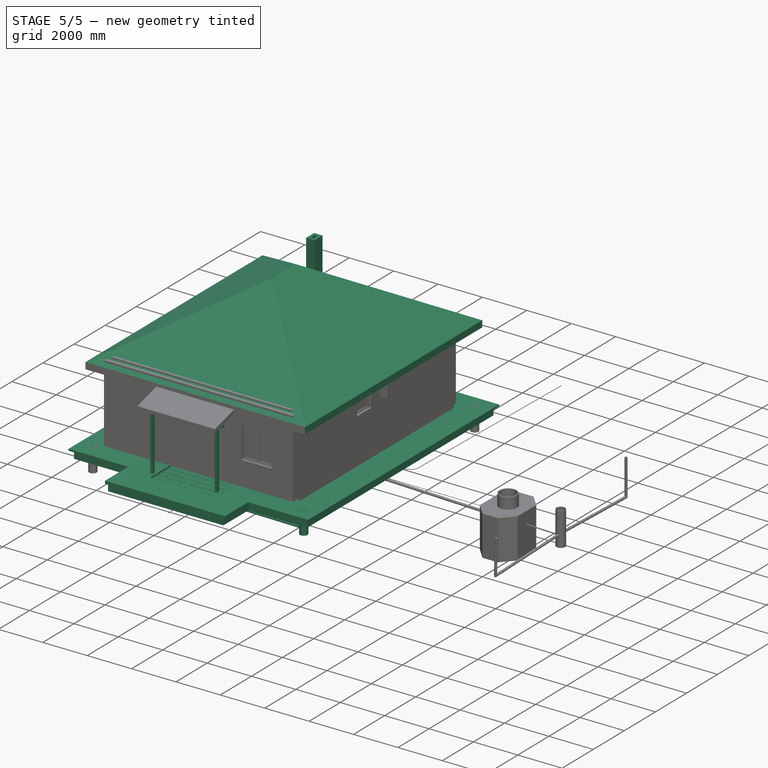
[diagram: stage 5 of 5 — iso view after this stage's code; geometry added in this stage tinted green]
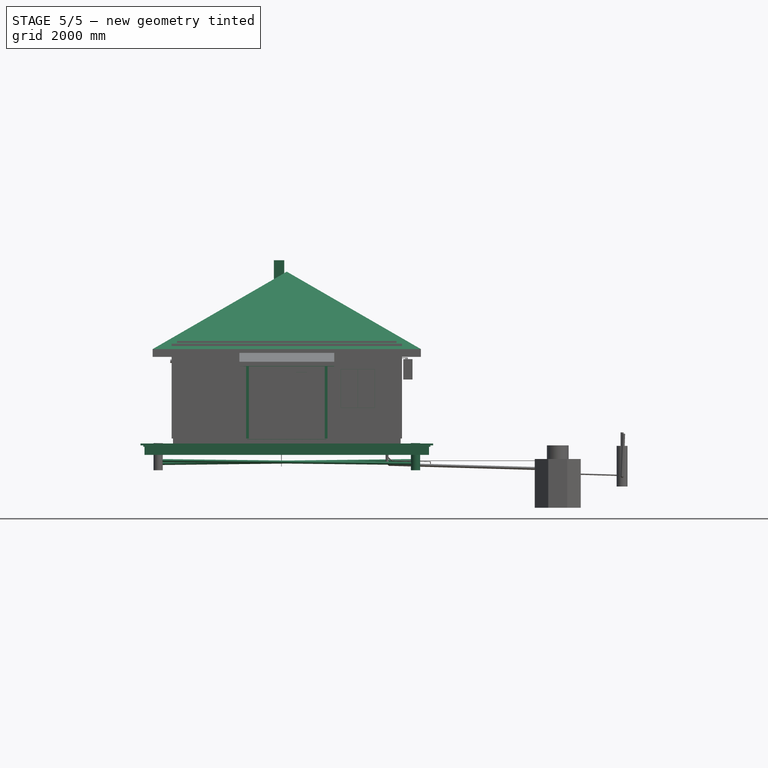
[diagram: stage 5 of 5 — front view after this stage's code; geometry added in this stage tinted green]
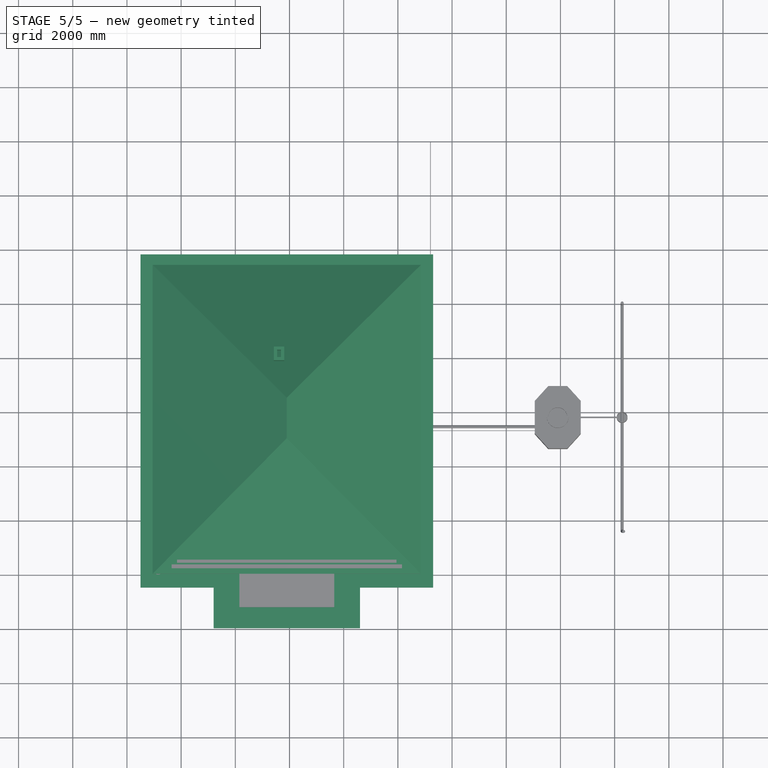
[diagram: stage 5 of 5 — top view after this stage's code; geometry added in this stage tinted green]
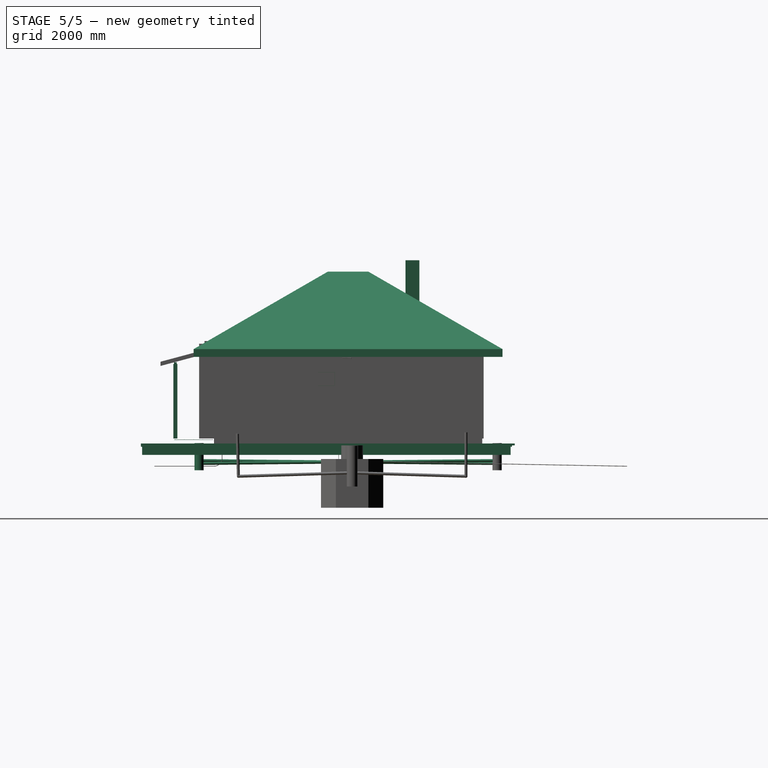
[diagram: stage 5 of 5 — right view after this stage's code; geometry added in this stage tinted green]
FEATURE [Part::Extrusion] Extrude043  label="Водогрей001"
  Base = -> Face
  Dir = (0,0,1)
  DirMode = 0
  FaceMakerClass = Part::FaceMakerBullseye
  LengthFwd = 1100
  LengthRev = 0
  Solid = false
  Symmetric = false
FEATURE [Part::Extrusion] Extrude045  label="умывальник002"
  Base = -> Face001
  Dir = (0,0,1)
  DirMode = 0
  FaceMakerClass = Part::FaceMakerBullseye
  LengthFwd = 200
  LengthRev = 0
  Solid = false
  Symmetric = false
FEATURE [Part::Part2DObjectPython] DWire002  # Draft 2D object (typed FeaturePython)
  ChamferSize = 0
  Closed = true
  End = (5260,3050,376)
  FilletRadius = 0
  Length = 1202.35
  MakeFace = false
  Placement = pos=(7958.82,4749.32,-124) rot=(0,0,-1;1.5708rad)
  Points = (4) [(1299.32,-2698.82,500),(1299.32,-2497.64,500),(1699.32,-2497.64,500),(1699.32,-2698.82,500)]
  Start = (5260,3450,376)
  Subdivisions = 0
FEATURE [Part::Extrusion] Extrude046  label="унитаз002"
  Base = -> Face002
  Dir = (0,0,-1)
  DirMode = 0
  FaceMakerClass = Part::FaceMakerBullseye
  LengthFwd = 400
  LengthRev = 0
  Solid = true
  Symmetric = false
FEATURE [Part::Extrusion] Extrude047  label="унитаз003"
  Base = -> DWire002
  Dir = (0,0,1)
  DirMode = 0
  FaceMakerClass = Part::FaceMakerBullseye
  LengthFwd = 350
  LengthRev = 0
  Solid = true
  Symmetric = false
FEATURE [Part::Fuse] Fusion002  label="унитаз001"
  Base = -> Extrude046
  Tool = -> Extrude047
FEATURE [App::DocumentObjectGroup] Group010  label="Унитаз"
  Group = -> [Ellipse,Face002,DWire002,Fusion002]
FEATURE [Part::Part2DObjectPython] Rectangle361  label="кух.зона"  # Draft 2D object (typed FeaturePython)
  ChamferSize = 0
  Columns = 1
  FilletRadius = 0
  Height = 3550
  Length = 700
  MakeFace = false
  Placement = pos=(7100,3800,0) rot=(0,0,1;0rad)
  Rows = 1
FEATURE [Part::Part2DObjectPython] Rectangle362  label="проём_032"  # Draft 2D object (typed FeaturePython)
  ChamferSize = 0
  Columns = 1
  FilletRadius = 0
  Height = 150
  Length = 800
  MakeFace = true
  Placement = pos=(4800,450,0) rot=(0,0,1;3.14159rad)
  Rows = 1
FEATURE [Part::Part2DObjectPython] Rectangle363  label="проём_033"  # Draft 2D object (typed FeaturePython)
  ChamferSize = 0
  Columns = 1
  FilletRadius = 0
  Height = 150
  Length = 900
  MakeFace = true
  Placement = pos=(1400,3550,0) rot=(0,0,-1;1.5708rad)
  Rows = 1
FEATURE [Part::Part2DObjectPython] Rectangle364  label="проём_034"  # Draft 2D object (typed FeaturePython)
  ChamferSize = 0
  Columns = 1
  FilletRadius = 0
  Height = 350
  Length = 900
  MakeFace = true
  Placement = pos=(8150,2300,0) rot=(0,0,1;1.5708rad)
  Rows = 1
FEATURE [Part::Part2DObjectPython] Rectangle365  label="проём_035"  # Draft 2D object (typed FeaturePython)
  ChamferSize = 0
  Columns = 1
  FilletRadius = 0
  Height = 350
  Length = 1000
  MakeFace = true
  Placement = pos=(-350,3600,0) rot=(0,0,-1;1.5708rad)
  Rows = 1
FEATURE [Part::Part2DObjectPython] Rectangle367  label="проём_036"  # Draft 2D object (typed FeaturePython)
  ChamferSize = 0
  Columns = 1
  FilletRadius = 0
  Height = 900
  Length = 150
  MakeFace = true
  Placement = pos=(3600,800,0) rot=(0,0,1;0rad)
  Rows = 1
FEATURE [Part::Part2DObjectPython] Rectangle372  label="проём_058"  # Draft 2D object (typed FeaturePython)
  ChamferSize = 0
  Columns = 1
  FilletRadius = 0
  Height = 1020
  Length = 150
  MakeFace = true
  Placement = pos=(3200,5515,0) rot=(0,0,1;0rad)
  Rows = 1
FEATURE [Part::Part2DObjectPython] Rectangle374  label="проём_038"  # Draft 2D object (typed FeaturePython)
  ChamferSize = 0
  Columns = 1
  FilletRadius = 0
  Height = 1350
  Length = 350
  MakeFace = true
  Placement = pos=(7200,-1850,0) rot=(0,0,1;1.5708rad)
  Rows = 1
FEATURE [Part::Part2DObjectPython] Rectangle375  label="проём_039"  # Draft 2D object (typed FeaturePython)
  ChamferSize = 0
  Columns = 1
  FilletRadius = 0
  Height = 350
  Length = 1350
  MakeFace = true
  Placement = pos=(-2.998e-13,-900,0) rot=(0,0,1;1.5708rad)
  Rows = 1
FEATURE [Part::Part2DObjectPython] Rectangle377  label="проём_001"  # Draft 2D object (typed FeaturePython)
  ChamferSize = 0
  Columns = 1
  FilletRadius = 0
  Height = 500
  Length = 350
  MakeFace = true
  Placement = pos=(4700,-1850,0) rot=(0,0,1;1.5708rad)
  Rows = 1
FEATURE [Part::Part2DObjectPython] Rectangle381  label="дымоход"  # Draft 2D object (typed FeaturePython)
  ChamferSize = 0
  Columns = 1
  FilletRadius = 0
  Height = 380
  Length = 510
  MakeFace = false
  Placement = pos=(3805,5770,0) rot=(0,0,1;1.5708rad)
  Rows = 1
FEATURE [Part::Part2DObjectPython] Wire060  label="стена_001"  # Draft 2D object (typed FeaturePython)
  ChamferSize = 0
  Closed = true
  End = (5050,3650,0)
  FilletRadius = 0
  Length = 2500
  MakeFace = true
  Placement = pos=(-375,6425,0) rot=(0,0,1;0rad)
  Points = (4) [(5575,-2775,0),(5575,-3875,0),(5425,-3875,0),(5425,-2775,0)]
  Start = (5200,3650,0)
  Subdivisions = 0
FEATURE [Part::Part2DObjectPython] Wire061  label="стена_067"  # Draft 2D object (typed FeaturePython)
  ChamferSize = 0
  Closed = true
  End = (3200,8300,0)
  FilletRadius = 0
  Length = 3830
  MakeFace = true
  Placement = pos=(3225,8750.77,0) rot=(0,0,1;0rad)
  Points = (4) [(125,-450.773,0),(125,-2215.77,0),(-25,-2215.77,0),(-25,-450.773,0)]
  Start = (3350,8300,0)
  Subdivisions = 0
FEATURE [Part::Part2DObjectPython] Wire062  label="стена_068"  # Draft 2D object (typed FeaturePython)
  ChamferSize = 0
  Closed = true
  End = (7800,1650,0)
  FilletRadius = 0
  Length = 6200
  MakeFace = true
  Placement = pos=(8125,3700,0) rot=(0,0,1;0rad)
  Points = (8) [(-325,-2200,0),(-2925,-2200,0),(-2925,-2300,0),(-3075,-2300,0),(-3075,-1950,0),(-2925,-1950,0),(-2925,-2050,0),(-325,-2050,0)]
  Start = (7800,1500,0)
  Subdivisions = 0
FEATURE [Part::Part2DObjectPython] Wire063  label="стена_069"  # Draft 2D object (typed FeaturePython)
  ChamferSize = 0
  Closed = true
  End = (5200,-1500,0)
  FilletRadius = 0
  Length = 5000
  MakeFace = true
  Placement = pos=(8125,1325,0) rot=(0,0,1;0rad)
  Points = (8) [(-3075,-2825,0),(-3075,-1025,0),(-3325,-1025,0),(-3325,-875,0),(-3075,-875,0),(-3075,-725,0),(-2925,-725,0),(-2925,-2825,0)]
  Start = (5050,-1500,0)
  Subdivisions = 0
FEATURE [Part::Part2DObjectPython] Wire064  label="стена_070"  # Draft 2D object (typed FeaturePython)
  ChamferSize = 0
  Closed = true
  End = (3600,-1500,0)
  FilletRadius = 0
  Length = 5400
  MakeFace = true
  Placement = pos=(3975,-975,0) rot=(0,0,1;0rad)
  Points = (8) [(-225,-525,0),(-225,1275,0),(25,1275,0),(25,1425,0),(-225,1425,0),(-225,1775,0),(-375,1775,0),(-375,-525,0)]
  Start = (3750,-1500,0)
  Subdivisions = 0
FEATURE [Part::Part2DObjectPython] Wire066  label="стена_072"  # Draft 2D object (typed FeaturePython)
  ChamferSize = 0
  Closed = true
  End = (1400,3650,0)
  FilletRadius = 0
  Length = 500
  MakeFace = true
  Placement = pos=(1325,-5.29e-14,0) rot=(0,0,1;0rad)
  Points = (4) [(225,3650,0),(225,3550,0),(75,3550,0),(75,3650,0)]
  Start = (1550,3650,0)
  Subdivisions = 0
FEATURE [Part::FeaturePython] Wall030  label="стена_105"  # Arch/BIM object (typed FeaturePython)
  Align = 2
  Base = -> Wire060
  BlockHeight = 0
  BlockLength = 0
  CountBroken = 0
  CountEntire = 0
  Face = 0
  Height = 3000
  HorizontalArea = 165000
  IfcRole = 156
  Joint = 0
  Length = 0
  MakeBlocks = false
  MoveWithHost = false
  Normal = (0,0,0)
  OffsetFirst = 0
  OffsetSecond = 0
  PerimeterLength = 2500
  Placement = pos=(0,0,-180) rot=(0,0,1;0rad)
  VerticalArea = 7500000
  Width = 200
FEATURE [Part::FeaturePython] Wall031  label="стена_106"  # Arch/BIM object (typed FeaturePython)
  Align = 2
  Base = -> Wire061
  BlockHeight = 0
  BlockLength = 0
  CountBroken = 0
  CountEntire = 0
  Face = 0
  Height = 3000
  HorizontalArea = 264750
  IfcRole = 156
  Joint = 0
  Length = 0
  MakeBlocks = false
  MoveWithHost = false
  Normal = (0,0,0)
  OffsetFirst = 0
  OffsetSecond = 0
  PerimeterLength = 3830
  Placement = pos=(0,0,-180) rot=(0,0,1;0rad)
  VerticalArea = 11490000
  Width = 200
FEATURE [Part::FeaturePython] Wall032  label="стена_110"  # Arch/BIM object (typed FeaturePython)
  Align = 2
  Base = -> Wire062
  BlockHeight = 0
  BlockLength = 0
  CountBroken = 0
  CountEntire = 0
  Face = 0
  Height = 3000
  HorizontalArea = 442500
  IfcRole = 156
  Joint = 0
  Length = 0
  MakeBlocks = false
  MoveWithHost = false
  Normal = (0,0,0)
  OffsetFirst = 0
  OffsetSecond = 0
  PerimeterLength = 6200
  Placement = pos=(0,0,-180) rot=(0,0,1;0rad)
  VerticalArea = 18600000
  Width = 200
FEATURE [Part::FeaturePython] Wall033  label="стена_111"  # Arch/BIM object (typed FeaturePython)
  Align = 2
  Base = -> Wire063
  BlockHeight = 0
  BlockLength = 0
  CountBroken = 0
  CountEntire = 0
  Face = 0
  Height = 3000
  HorizontalArea = 352500
  IfcRole = 156
  Joint = 0
  Length = 0
  MakeBlocks = false
  MoveWithHost = false
  Normal = (0,0,0)
  OffsetFirst = 0
  OffsetSecond = 0
  PerimeterLength = 5000
  Placement = pos=(0,0,-180) rot=(0,0,1;0rad)
  VerticalArea = 15000000
  Width = 200
FEATURE [Part::FeaturePython] Wall034  label="стена_107"  # Arch/BIM object (typed FeaturePython)
  Align = 2
  Base = -> Wire064
  BlockHeight = 0
  BlockLength = 0
  CountBroken = 0
  CountEntire = 0
  Face = 0
  Height = 3000
  HorizontalArea = 382500
  IfcRole = 156
  Joint = 0
  Length = 0
  MakeBlocks = false
  MoveWithHost = false
  Normal = (0,0,0)
  OffsetFirst = 0
  OffsetSecond = 0
  PerimeterLength = 5400
  Placement = pos=(0,0,-180) rot=(0,0,1;0rad)
  VerticalArea = 16200000
  Width = 200
FEATURE [Part::FeaturePython] Wall036  label="стена_108"  # Arch/BIM object (typed FeaturePython)
  Align = 2
  Base = -> Wire066
  BlockHeight = 0
  BlockLength = 0
  CountBroken = 0
  CountEntire = 0
  Face = 0
  Height = 3000
  HorizontalArea = 15000
  IfcRole = 156
  Joint = 0
  Length = 0
  MakeBlocks = false
  MoveWithHost = false
  Normal = (0,0,0)
  OffsetFirst = 0
  OffsetSecond = 0
  PerimeterLength = 500
  Placement = pos=(0,0,-180) rot=(0,0,1;0rad)
  VerticalArea = 1500000
  Width = 200
FEATURE [Part::Part2DObjectPython] Rectangle382  label="проём_041"  # Draft 2D object (typed FeaturePython)
  ChamferSize = 0
  Columns = 1
  FilletRadius = 0
  Height = 1250
  Length = 150
  MakeFace = true
  Placement = pos=(4700,3650,0) rot=(0,0,1;1.5708rad)
  Rows = 1
FEATURE [Part::FeaturePython] Wall049  label="стена_над_дверью_017"  # Arch/BIM object (typed FeaturePython)
  Align = 2
  Base = -> Rectangle367
  BlockHeight = 0
  BlockLength = 0
  CountBroken = 0
  CountEntire = 0
  Face = 0
  Height = 700
  HorizontalArea = 135000
  IfcRole = 156
  Joint = 0
  Length = 0
  MakeBlocks = false
  MoveWithHost = false
  Normal = (0,0,0)
  OffsetFirst = 0
  OffsetSecond = 0
  PerimeterLength = 2100
  Placement = pos=(1.819e-12,3.1832e-12,2120) rot=(0,0,1;0rad)
  VerticalArea = 1.47e+06
  Width = 200
FEATURE [Part::FeaturePython] Wall050  label="стена_над_дверью_019"  # Arch/BIM object (typed FeaturePython)
  Align = 2
  Base = -> Rectangle363
  BlockHeight = 0
  BlockLength = 0
  CountBroken = 0
  CountEntire = 0
  Face = 0
  Height = 700
  HorizontalArea = 135000
  IfcRole = 156
  Joint = 0
  Length = 0
  MakeBlocks = false
  MoveWithHost = false
  Normal = (0,0,0)
  OffsetFirst = 0
  OffsetSecond = 0
  PerimeterLength = 2100
  Placement = pos=(1.819e-12,3.1832e-12,2120) rot=(0,0,1;0rad)
  VerticalArea = 1.47e+06
  Width = 200
FEATURE [Part::FeaturePython] Wall052  label="стена_над_дверью_020"  # Arch/BIM object (typed FeaturePython)
  Align = 2
  Base = -> Rectangle362
  BlockHeight = 0
  BlockLength = 0
  CountBroken = 0
  CountEntire = 0
  Face = 0
  Height = 700
  HorizontalArea = 120000
  IfcRole = 156
  Joint = 0
  Length = 0
  MakeBlocks = false
  MoveWithHost = false
  Normal = (0,0,0)
  OffsetFirst = 0
  OffsetSecond = 0
  PerimeterLength = 1900
  Placement = pos=(0,6.8212e-12,2120) rot=(0,0,1;0rad)
  VerticalArea = 1330000
  Width = 200
FEATURE [Part::Part2DObjectPython] Wire069  label="крыша_кромка"  # Draft 2D object (typed FeaturePython)
  ChamferSize = 0
  Closed = true
  End = (8700,9200,2920)
  FilletRadius = 0
  Length = 41400
  MakeFace = false
  Placement = pos=(-275,8000,2920) rot=(0,0,1;0rad)
  Points = (4) [(-625,1200,0),(-625,-9900,0),(8975,-9900,0),(8975,1200,0)]
  Start = (-900,9200,2920)
  Subdivisions = 0
FEATURE [Part::FeaturePython] Roof002  label="Крыша"  # Arch/BIM object (typed FeaturePython)
  Angles = [30,30,30,30]
  Base = -> Wire069
  BorderLength = 42600
  Face = 2
  Flip = false
  Heights = [2771.28,2771.28,2771.28,2771.28]
  HorizontalArea = 1.1286e+08
  IdRel = [0,0,0,0]
  IfcRole = 111
  MoveWithHost = false
  Overhang = [150,150,150,150]
  PerimeterLength = 51001.5
  RidgeLength = 31745
  Runs = [4800,4800,4800,4800]
  Thickness = [250,250,250,250]
  VerticalArea = 1.22976e+07
FEATURE [Part::Part2DObjectPython] Rectangle395  label="проём_045"  # Draft 2D object (typed FeaturePython)
  ChamferSize = 0
  Columns = 1
  FilletRadius = 0
  Height = 1350
  Length = 350
  MakeFace = true
  Placement = pos=(1450,8650,0) rot=(0,0,-1;1.5708rad)
  Rows = 1
FEATURE [Part::Part2DObjectPython] Rectangle398  # Draft 2D object (typed FeaturePython)
  ChamferSize = 0
  Columns = 1
  FilletRadius = 0
  Height = 300
  Length = 0
  MakeFace = false
  Placement = pos=(6000,5700,0) rot=(0,0,1;0rad)
  Rows = 1
FEATURE [Part::Part2DObjectPython] Rectangle399  label="ванна_190х75_001"  # Draft 2D object (typed FeaturePython)
  ChamferSize = 0
  Columns = 1
  FilletRadius = 0
  Height = 750
  Length = 2000
  MakeFace = false
  Placement = pos=(7800,1650,0) rot=(0,0,1;1.5708rad)
  Rows = 1
FEATURE [Part::Part2DObjectPython] Ellipse002  # Draft 2D object (typed FeaturePython)
  FirstAngle = 0
  LastAngle = 0
  MajorRadius = 800
  MakeFace = false
  MinorRadius = 250
  Placement = pos=(7425,2700,650) rot=(0,0,1;1.5708rad)
FEATURE [Part::FeaturePython] Structure180  label="Ванна_003"  # Arch/BIM object (typed FeaturePython)
  Base = -> Ellipse002
  FaceMaker = 0
  Height = 400
  HorizontalArea = 628319
  IfcRole = 0
  Length = 0
  MoveWithHost = true
  Nodes = (2) [(7425,2700,650),(7425,2700,250)]
  NodesOffset = 0
  Normal = (0,0,-1)
  PerimeterLength = 3547.07
  VerticalArea = 1.4122e+06
  Width = 100
FEATURE [Part::FeaturePython] Structure179  label="Ванна_002"  # Arch/BIM object (typed FeaturePython)
  Base = -> Rectangle399
  FaceMaker = 0
  Height = 650
  HorizontalArea = 1.5e+06
  IfcRole = 0
  Length = 0
  MoveWithHost = false
  Nodes = (2) [(7375,2550,0),(7375,2550,650)]
  NodesOffset = 0
  Normal = (0,0,0)
  PerimeterLength = 5300
  Subtractions = -> [Structure180]
  VerticalArea = 4.9872e+06
  Width = 100
FEATURE [App::DocumentObjectGroup] Group038  label="кровать_2_сп_004"
  Group = -> [Extrude053,Extrude051,Extrude052]
FEATURE [Part::FeaturePython] Structure185  label="кух.зона 002"  # Arch/BIM object (typed FeaturePython)
  Base = -> Rectangle361
  FaceMaker = 0
  Height = 900
  HorizontalArea = 2485000
  IfcRole = 0
  Length = 0
  MoveWithHost = false
  Nodes = (2) [(-4700,-6400,0),(-4700,-6400,800)]
  NodesOffset = 0
  Normal = (0,0,0)
  PerimeterLength = 8500
  VerticalArea = 7650000
  Width = 100
FEATURE [Part::Part2DObjectPython] Rectangle412  label="кух.зона002"  # Draft 2D object (typed FeaturePython)
  ChamferSize = 0
  Columns = 1
  FilletRadius = 0
  Height = 2250
  Length = 500
  MakeFace = false
  Placement = pos=(7300,5100,0) rot=(0,0,1;0rad)
  Rows = 1
FEATURE [Part::FeaturePython] Structure  label="кух.зона 001"  # Arch/BIM object (typed FeaturePython)
  Base = -> Rectangle412
  FaceMaker = 0
  Height = 1000
  HorizontalArea = 1.125e+06
  IfcRole = 0
  Length = 0
  MoveWithHost = false
  Nodes = (2) [(-4700,-6400,0),(-4700,-6400,800)]
  NodesOffset = 0
  Normal = (0,0,0)
  PerimeterLength = 5500
  Placement = pos=(0,0,1500) rot=(0,0,1;0rad)
  VerticalArea = 5.5e+06
  Width = 100
FEATURE [Part::Part2DObjectPython] Rectangle416  label="проём_в_утепл_лестн. 001"  # Draft 2D object (typed FeaturePython)
  ChamferSize = 0
  Columns = 1
  FilletRadius = 0
  Height = 1700
  Length = 1025
  MakeFace = false
  Placement = pos=(3837.5,700,3410) rot=(0,0,1;0rad)
  Rows = 1
FEATURE [Part::Part2DObjectPython] Rectangle423  # Draft 2D object (typed FeaturePython)
  ChamferSize = 0
  Columns = 1
  FilletRadius = 0
  Height = 150
  Length = 0
  MakeFace = false
  Placement = pos=(5575,8350,5466.07) rot=(0,0.707107,0.707107;3.14159rad)
  Rows = 1
FEATURE [Part::Part2DObjectPython] Rectangle425  # Draft 2D object (typed FeaturePython)
  ChamferSize = 0
  Columns = 1
  FilletRadius = 0
  Height = 2206.07
  Length = 0
  MakeFace = false
  Placement = pos=(2000,8350,3410) rot=(0,0.707107,0.707107;3.14159rad)
  Rows = 1
FEATURE [Part::Part2DObjectPython] Rectangle444  label="основание ГБ D500 шир. 250 h200 контур"  # Draft 2D object (typed FeaturePython)
  ChamferSize = 0
  Columns = 1
  FilletRadius = 0
  Height = 9875
  Length = 8250
  MakeFace = false
  Placement = pos=(-250,-1250,0) rot=(0,0,1;0rad)
  Rows = 1
FEATURE [Part::Part2DObjectPython] Rectangle445  label="плита_9.7х8.2"  # Draft 2D object (typed FeaturePython)
  ChamferSize = 0
  Columns = 1
  FilletRadius = 0
  Height = 9700
  Length = 8200
  MakeFace = false
  Placement = pos=(-200,-1200,0) rot=(0,0,1;0rad)
  Rows = 1
FEATURE [Part::FeaturePython] Structure130  label="фундамент_плита h0.25"  # Arch/BIM object (typed FeaturePython)
  Base = -> Rectangle445
  FaceMaker = 0
  Height = 250
  HorizontalArea = 79540000
  IfcRole = 0
  Length = 0
  MoveWithHost = false
  Nodes = (2) [(3875,3875,0),(3875,3875,350)]
  NodesOffset = 0
  Normal = (0,0,-1)
  PerimeterLength = 35800
  Placement = pos=(0,0,-180) rot=(0,0,1;0rad)
  VerticalArea = 8950000
  Width = 100
FEATURE [Part::FeaturePython] Structure159  label="Утепление плиты 50мм ЭППС"  # Arch/BIM object (typed FeaturePython)
  Base = -> Rectangle445
  FaceMaker = 0
  Height = 50
  HorizontalArea = 79540000
  IfcRole = 0
  Length = 0
  MoveWithHost = false
  Nodes = (2) [(3875,3875,0),(3875,3875,150)]
  NodesOffset = 0
  Normal = (0,0,0)
  PerimeterLength = 35800
  Placement = pos=(0,0,-480) rot=(0,0,1;0rad)
  VerticalArea = 1790000
  Width = 100
FEATURE [Part::Part2DObjectPython] Rectangle446  label="подушка_12м*10.5м"  # Draft 2D object (typed FeaturePython)
  ChamferSize = 0
  Columns = 1
  FilletRadius = 0
  Height = 12000
  Length = 10500
  MakeFace = false
  Placement = pos=(-1350,-2350,0) rot=(0,0,1;0rad)
  Rows = 1
FEATURE [Part::FeaturePython] Structure160  label="Подушка песок h0.3"  # Arch/BIM object (typed FeaturePython)
  Base = -> Rectangle446
  FaceMaker = 0
  Height = 300
  HorizontalArea = 126000000
  IfcRole = 0
  Length = 0
  MoveWithHost = false
  Nodes = (2) [(3875,3875,0),(3875,3875,350)]
  NodesOffset = 0
  Normal = (0,0,0)
  PerimeterLength = 45000
  Placement = pos=(0,0,-780) rot=(0,0,1;0rad)
  VerticalArea = 13500000
  Width = 100
FEATURE [Part::FeaturePython] Wall  label="дымоход002"  # Arch/BIM object (typed FeaturePython)
  Align = 1
  Base = -> Rectangle381
  BlockHeight = 65
  BlockLength = 250
  CountBroken = 262
  CountEntire = 0
  Face = 0
  Height = 4300
  HorizontalArea = 156000
  IfcRole = 156
  Joint = 5
  Length = 1780
  MakeBlocks = false
  MoveWithHost = false
  Normal = (0,0,0)
  OffsetFirst = 0
  OffsetSecond = 125
  PerimeterLength = 1780
  Placement = pos=(0,0,2100) rot=(0,0,1;0rad)
  VerticalArea = 11180000
  Width = 120
FEATURE [Part::Part2DObjectPython] Rectangle482  label="плита_крыльца_001"  # Draft 2D object (typed FeaturePython)
  ChamferSize = 0
  Columns = 1
  FilletRadius = 0
  Height = 1500
  Length = 3000
  MakeFace = false
  Placement = pos=(2400,-2800,0) rot=(0,0,1;0rad)
  Rows = 1
FEATURE [Part::Part2DObjectPython] Rectangle483  label="подушка_крыльца_002"  # Draft 2D object (typed FeaturePython)
  ChamferSize = 0
  Columns = 1
  FilletRadius = 0
  Height = 1600
  Length = 5200
  MakeFace = false
  Placement = pos=(1300,-3950,0) rot=(0,0,1;0rad)
  Rows = 1
FEATURE [Part::FeaturePython] Structure237  label="фундамент_плита_крыльца h0.2"  # Arch/BIM object (typed FeaturePython)
  Base = -> Rectangle482
  FaceMaker = 0
  Height = 250
  HorizontalArea = 4500000
  IfcRole = 0
  Length = 0
  MoveWithHost = false
  Nodes = (2) [(3875,3875,0),(3875,3875,350)]
  NodesOffset = 0
  Normal = (0,0,-1)
  PerimeterLength = 9000
  Placement = pos=(0,0,-180) rot=(0,0,1;0rad)
  VerticalArea = 2250000
  Width = 100
FEATURE [Part::FeaturePython] Structure239  label="Подушка_крыльца_песок h0.3"  # Arch/BIM object (typed FeaturePython)
  Base = -> Rectangle483
  FaceMaker = 0
  Height = 300
  HorizontalArea = 8320000
  IfcRole = 0
  Length = 0
  MoveWithHost = false
  Nodes = (2) [(3900,-3150,0),(3900,-3150,-300)]
  NodesOffset = 0
  Normal = (0,0,-1)
  PerimeterLength = 13600
  Placement = pos=(0,0,-480) rot=(0,0,1;0rad)
  VerticalArea = 4080000
  Width = 100
FEATURE [Part::Part2DObjectPython] Wire096  label="отмостка_утепл_контур"  # Draft 2D object (typed FeaturePython)
  ChamferSize = 0
  Closed = true
  End = (-200,-1200,0)
  FilletRadius = 0
  Length = 39000
  MakeFace = false
  Placement = pos=(-275,8125,0) rot=(0,0,1;0rad)
  Points = (8) [(75,375,0),(8275,375,0),(8275,-9325,0),(5675,-9325,0),(5675,-10925,0),(2675,-10925,0),(2675,-9325,0),(75,-9325,0)]
  Start = (-200,8500,0)
  Subdivisions = 0
FEATURE [Part::FeaturePython] Wall068  label="Утепление отмостки 50мм ЭППС"  # Arch/BIM object (typed FeaturePython)
  Align = 1
  Base = -> Wire096
  BlockHeight = 0
  BlockLength = 0
  CountBroken = 0
  CountEntire = 0
  Face = 0
  Height = 50
  HorizontalArea = 52560000
  IfcRole = 156
  Joint = 0
  Length = 39000
  MakeBlocks = false
  MoveWithHost = false
  Normal = (0,0,0)
  OffsetFirst = 0
  OffsetSecond = 0
  PerimeterLength = 48600
  Placement = pos=(0,0,-480) rot=(0,0,1;0rad)
  VerticalArea = 4380000
  Width = 1200
FEATURE [Part::FeaturePython] Structure242  label="Утепление плиты крыльца 50мм ЭППС"  # Arch/BIM object (typed FeaturePython)
  Base = -> Rectangle482
  FaceMaker = 0
  Height = 50
  HorizontalArea = 4500000
  IfcRole = 0
  Length = 0
  MoveWithHost = false
  Nodes = (2) [(3900,-2150,0),(3900,-2150,50)]
  NodesOffset = 0
  Normal = (0,0,0)
  PerimeterLength = 9000
  Placement = pos=(0,0,-480) rot=(0,0,1;0rad)
  VerticalArea = 450000
  Width = 100
FEATURE [Part::FeaturePython] Structure243  label="прогон 012"  # Arch/BIM object (typed FeaturePython)
  FaceMaker = 0
  Height = 150
  HorizontalArea = 350000
  IfcRole = 8
  Length = 3500
  MoveWithHost = false
  Nodes = (2) [(0,0,2.77556e-16),(0,0,3500)]
  NodesOffset = 0
  Normal = (0,0,0)
  PerimeterLength = 7200
  Placement = pos=(2150,-2725,2560) rot=(0,0,1;0rad)
  VerticalArea = 1080000
  Width = 100
FEATURE [Part::FeaturePython] Structure244  label="стойка 001"  # Arch/BIM object (typed FeaturePython)
  FaceMaker = 0
  Height = 2750
  HorizontalArea = 15000
  IfcRole = 8
  Length = 150
  MoveWithHost = false
  Nodes = (2) [(2.77556e-16,0,0),(2.77556e-16,0,2750)]
  NodesOffset = 0
  Normal = (0,0,0)
  PerimeterLength = 500
  Placement = pos=(2450,-2725,-180) rot=(0,0,-1;1.5708rad)
  VerticalArea = 1375000
  Width = 100
FEATURE [Part::FeaturePython] Structure245  label="стойка 002"  # Arch/BIM object (typed FeaturePython)
  FaceMaker = 0
  Height = 2750
  HorizontalArea = 15000
  IfcRole = 8
  Length = 150
  MoveWithHost = false
  Nodes = (2) [(2.77556e-16,0,0),(2.77556e-16,0,2750)]
  NodesOffset = 0
  Normal = (0,0,0)
  PerimeterLength = 500
  Placement = pos=(5350,-2725,-180) rot=(0,0,-1;1.5708rad)
  VerticalArea = 1375000
  Width = 100
FEATURE [Part::Part2DObjectPython] Wire100  label="перегородка_004"  # Draft 2D object (typed FeaturePython)
  ChamferSize = 0
  Closed = true
  End = (1550,2650,0)
  FilletRadius = 0
  Length = 9400
  MakeFace = true
  Placement = pos=(-950,5100,0) rot=(0,0,1;0rad)
  Points = (10) [(2500,-3150,0),(4700,-3150,0),(4700,-3400,0),(4550,-3400,0),(4550,-3300,0),(950,-3300,0),(950,-3150,0),(2350,-3150,0),(2350,-2450,0),(2500,-2450,0)]
  Start = (1550,1950,0)
  Subdivisions = 0
FEATURE [Part::FeaturePython] Wall071  label="стена_117"  # Arch/BIM object (typed FeaturePython)
  Align = 2
  Base = -> Wire100
  BlockHeight = 0
  BlockLength = 0
  CountBroken = 0
  CountEntire = 0
  Face = 0
  Height = 3000
  HorizontalArea = 682500
  IfcRole = 156
  Joint = 0
  Length = 0
  MakeBlocks = false
  MoveWithHost = false
  Normal = (0,0,0)
  OffsetFirst = 0
  OffsetSecond = 0
  PerimeterLength = 9400
  Placement = pos=(0,0,-180) rot=(0,0,1;0rad)
  VerticalArea = 28200000
  Width = 200
FEATURE [Part::Part2DObjectPython] Wire118  # Draft 2D object (typed FeaturePython)
  ChamferSize = 0
  Closed = false
  End = (7600,3450,-6.23453)
  FilletRadius = 0
  Length = 182
  MakeFace = false
  Placement = pos=(7600,3450,-138.235) rot=(-0.477077,0.621449,0.621449;4.03188rad)
  Points = (3) [(-2.72848e-12,-50,-8.18545e-12),(0,41,9.10383e-15),(0,132,0)]
  Start = (7600,3450,-188.235)
  Subdivisions = 0
FEATURE [Part::Part2DObjectPython] Wire119  # Draft 2D object (typed FeaturePython)
  ChamferSize = 0
  Closed = false
  End = (7548,3398,-23.6954)
  FilletRadius = 0
  Length = 208
  MakeFace = false
  Placement = pos=(7652,3502,-23.6954) rot=(-0.281085,0.678598,0.678598;3.68962rad)
  Points = (3) [(0,0,0),(73.5391,-73.5391,8.90914e-13),(147.078,1.247e-12,4.6839e-11)]
  Start = (7652,3502,-23.6954)
  Subdivisions = 0
FEATURE [Part::Part2DObjectPython] Rectangle506  # Draft 2D object (typed FeaturePython)
  ChamferSize = 0
  Columns = 1
  FilletRadius = 0
  Height = 600
  Length = 200
  MakeFace = false
  Placement = pos=(5469.38,1807.18,0) rot=(0,0,-1;1.5708rad)
  Rows = 1
FEATURE [Part::FeaturePython] Structure250  label="короб_003"  # Arch/BIM object (typed FeaturePython)
  Base = -> Rectangle506
  FaceMaker = 0
  Height = 600
  HorizontalArea = 120000
  IfcRole = 0
  Length = 0
  MoveWithHost = false
  Nodes = (2) [(7650,6725,0),(7650,6725,200)]
  NodesOffset = 0
  Normal = (0,0,0)
  PerimeterLength = 1600
  Placement = pos=(50,50,0) rot=(0,0,1;0rad)
  VerticalArea = 960000
  Width = 100
FEATURE [Part::FeaturePython] Point  # WARN: FeaturePython — macro-defined, semantics opaque (R4)
  X = 3900
  Y = 3650
  Z = 0
FEATURE [Sketcher::SketchObject] Sketch
  MapMode = 5
  Placement = pos=(8000,0,-180) rot=(0.57735,0.57735,0.57735;2.0944rad)
  Support = -> [Structure130]
  sketch-geometry (1):
    g0: LineSegment StartX=-1170 StartY=-210 StartZ=0 EndX=8470 EndY=-210 EndZ=0
FEATURE [Part::FeaturePython] Rebar  label="Нижняя продольная арматура D12 шаг 0.2"  # Arch/BIM object (typed FeaturePython)
  Amount = 40
  AmountCheck = false
  Base = -> Sketch
  Cover = 40
  CoverAlong = Bottom Side
  Diameter = 12
  Direction = (0,0,0)
  Distance = 0
  FrontCover = 70
  HorizontalArea = 0
  Host = -> Structure130
  IfcRole = 109
  LeftBottomCover = 30
  Length = 9640
  MoveWithHost = false
  OffsetEnd = 70
  OffsetStart = 70
  Orientation = Horizontal
  PerimeterLength = 0
  PlacementList = 40 placements: arithmetic series from (-70,0,0) step (-206.667,0,0) to (-8130,0,0)
  RightTopCover = 30
  Rounding = 0
  Spacing = 206.667
  TotalLength = 385600
  TrueSpacing = 200
  VerticalArea = 0
FEATURE [Sketcher::SketchObject] Sketch001
  MapMode = 5
  Placement = pos=(8000,0,-180) rot=(0.57735,0.57735,0.57735;2.0944rad)
  Support = -> [Structure130]
  sketch-geometry (1):
    g0: LineSegment StartX=-1170 StartY=-30 StartZ=0 EndX=8470 EndY=-30 EndZ=0
FEATURE [Part::FeaturePython] Rebar001  label="Верхняя продольная арматура D12 шаг 0.2"  # Arch/BIM object (typed FeaturePython)
  Amount = 40
  AmountCheck = false
  Base = -> Sketch001
  Cover = 30
  CoverAlong = Top Side
  Diameter = 12
  Direction = (0,0,0)
  Distance = 0
  FrontCover = 70
  HorizontalArea = 0
  Host = -> Structure130
  IfcRole = 109
  LeftBottomCover = 30
  Length = 9640
  MoveWithHost = false
  OffsetEnd = 70
  OffsetStart = 70
  Orientation = Horizontal
  PerimeterLength = 0
  PlacementList = 40 placements: arithmetic series from (-70,0,0) step (-206.667,0,0) to (-8130,0,0)
  RightTopCover = 30
  Rounding = 0
  Spacing = 206.667
  TotalLength = 385600
  TrueSpacing = 200
  VerticalArea = 0
FEATURE [Sketcher::SketchObject] Sketch002
  MapMode = 5
  Placement = pos=(0,8500,-180) rot=(0,0.707107,0.707107;3.14159rad)
  Support = -> [Structure130]
  sketch-geometry (1):
    g0: LineSegment StartX=-170 StartY=-198 StartZ=0 EndX=7970 EndY=-198 EndZ=0
FEATURE [Part::FeaturePython] Rebar002  label="Нижняя поперечная арматура D12 шаг 0.2"  # Arch/BIM object (typed FeaturePython)
  Amount = 48
  AmountCheck = false
  Base = -> Sketch002
  Cover = 52
  CoverAlong = Bottom Side
  Diameter = 12
  Direction = (0,0,0)
  Distance = 0
  FrontCover = 70
  HorizontalArea = 0
  Host = -> Structure130
  IfcRole = 109
  LeftBottomCover = 30
  Length = 8140
  MoveWithHost = false
  OffsetEnd = 70
  OffsetStart = 70
  Orientation = Horizontal
  PerimeterLength = 0
  Placement = pos=(7740,0,0) rot=(0,0,1;0rad)
  PlacementList = 48 placements: arithmetic series from (0,-70,1.55431e-14) step (0,-203.404,4.51648e-14) to (0,-9630,2.13829e-12)
  RightTopCover = 30
  Rounding = 0
  Spacing = 203.404
  TotalLength = 390720
  TrueSpacing = 200
  VerticalArea = 0
FEATURE [Sketcher::SketchObject] Sketch003
  MapMode = 5
  Placement = pos=(0,8500,-180) rot=(0,0.707107,0.707107;3.14159rad)
  Support = -> [Structure130]
  sketch-geometry (1):
    g0: LineSegment StartX=-170 StartY=-42 StartZ=0 EndX=7970 EndY=-42 EndZ=0
FEATURE [Part::FeaturePython] Rebar003  label="Верхняя поперечная арматура D12 шаг 0.2"  # Arch/BIM object (typed FeaturePython)
  Amount = 48
  AmountCheck = false
  Base = -> Sketch003
  Cover = 42
  CoverAlong = Top Side
  Diameter = 12
  Direction = (0,0,0)
  Distance = 0
  FrontCover = 64
  HorizontalArea = 0
  Host = -> Structure130
  IfcRole = 109
  LeftBottomCover = 30
  Length = 8140
  MoveWithHost = false
  OffsetEnd = 64
  OffsetStart = 64
  Orientation = Horizontal
  PerimeterLength = 0
  Placement = pos=(7740,0,0) rot=(0,0,1;0rad)
  PlacementList = 48 placements: arithmetic series from (0,-64,1.42109e-14) step (0,-203.66,4.52215e-14) to (0,-9636,2.13962e-12)
  RightTopCover = 30
  Rounding = 0
  Spacing = 203.66
  TotalLength = 390720
  TrueSpacing = 200
  VerticalArea = 0
FEATURE [Sketcher::SketchObject] Sketch009
  MapMode = 5
  Placement = pos=(5400,0,-180) rot=(0.57735,0.57735,0.57735;2.0944rad)
  Support = -> [Structure237]
  sketch-geometry (1):
    g0: LineSegment StartX=-2770 StartY=-198 StartZ=0 EndX=-1330 EndY=-198 EndZ=0
FEATURE [Part::FeaturePython] Rebar004  label="Арматура D12 шаг 0.25 001"  # Arch/BIM object (typed FeaturePython)
  Amount = 11
  AmountCheck = false
  Base = -> Sketch009
  Cover = 52
  CoverAlong = Bottom Side
  Diameter = 12
  Direction = (0,0,0)
  Distance = 0
  FrontCover = 70
  HorizontalArea = 0
  Host = -> Structure237
  IfcRole = 109
  LeftBottomCover = 30
  Length = 1440
  MoveWithHost = false
  OffsetEnd = 70
  OffsetStart = 70
  Orientation = Horizontal
  PerimeterLength = 0
  PlacementList = 11 placements: arithmetic series from (-70,0,0) step (-286,0,0) to (-2930,0,0)
  RightTopCover = 30
  Rounding = 0
  Spacing = 286
  TotalLength = 15840
  TrueSpacing = 250
  VerticalArea = 0
FEATURE [Sketcher::SketchObject] Sketch010
  MapMode = 5
  Placement = pos=(5400,0,-180) rot=(0.57735,0.57735,0.57735;2.0944rad)
  Support = -> [Structure237]
  sketch-geometry (1):
    g0: LineSegment StartX=-2770 StartY=-42 StartZ=0 EndX=-1330 EndY=-42 EndZ=0
FEATURE [Part::FeaturePython] Rebar005  label="Арматура D12 шаг 0.25 002"  # Arch/BIM object (typed FeaturePython)
  Amount = 11
  AmountCheck = false
  Base = -> Sketch010
  Cover = 42
  CoverAlong = Top Side
  Diameter = 12
  Direction = (0,0,0)
  Distance = 0
  FrontCover = 70
  HorizontalArea = 0
  Host = -> Structure237
  IfcRole = 109
  LeftBottomCover = 30
  Length = 1440
  MoveWithHost = false
  OffsetEnd = 70
  OffsetStart = 70
  Orientation = Horizontal
  PerimeterLength = 0
  PlacementList = 11 placements: arithmetic series from (-70,0,0) step (-286,0,0) to (-2930,0,0)
  RightTopCover = 30
  Rounding = 0
  Spacing = 286
  TotalLength = 15840
  TrueSpacing = 250
  VerticalArea = 0
FEATURE [Sketcher::SketchObject] Sketch011
  MapMode = 5
  Placement = pos=(0,-2800,-180) rot=(1,0,0;1.5708rad)
  Support = -> [Structure237]
  sketch-geometry (1):
    g0: LineSegment StartX=2430 StartY=-210 StartZ=0 EndX=5370 EndY=-210 EndZ=0
FEATURE [Part::FeaturePython] Rebar006  label="Арматура D12 шаг 0.25 003"  # Arch/BIM object (typed FeaturePython)
  Amount = 5
  AmountCheck = false
  Base = -> Sketch011
  Cover = 40
  CoverAlong = Bottom Side
  Diameter = 12
  Direction = (0,0,0)
  Distance = 0
  FrontCover = 70
  HorizontalArea = 0
  Host = -> Structure237
  IfcRole = 109
  LeftBottomCover = 30
  Length = 2940
  MoveWithHost = false
  OffsetEnd = 70
  OffsetStart = 70
  Orientation = Horizontal
  PerimeterLength = 0
  PlacementList = 5 placements: arithmetic series from (0,70,-1.55431e-14) step (0,340,-7.54952e-14) to (0,1430,-3.17524e-13)
  RightTopCover = 30
  Rounding = 0
  Spacing = 340
  TotalLength = 14700
  TrueSpacing = 250
  VerticalArea = 0
FEATURE [Sketcher::SketchObject] Sketch012
  MapMode = 5
  Placement = pos=(0,-2800,-180) rot=(1,0,0;1.5708rad)
  Support = -> [Structure237]
  sketch-geometry (1):
    g0: LineSegment StartX=2430 StartY=-30 StartZ=0 EndX=5370 EndY=-30 EndZ=0
FEATURE [Part::FeaturePython] Rebar007  label="Арматура D12 шаг 0.25 004"  # Arch/BIM object (typed FeaturePython)
  Amount = 5
  AmountCheck = false
  Base = -> Sketch012
  Cover = 30
  CoverAlong = Top Side
  Diameter = 12
  Direction = (0,0,0)
  Distance = 0
  FrontCover = 70
  HorizontalArea = 0
  Host = -> Structure237
  IfcRole = 109
  LeftBottomCover = 30
  Length = 2940
  MoveWithHost = false
  OffsetEnd = 70
  OffsetStart = 70
  Orientation = Horizontal
  PerimeterLength = 0
  PlacementList = 5 placements: arithmetic series from (0,70,-1.55431e-14) step (0,340,-7.54952e-14) to (0,1430,-3.17524e-13)
  RightTopCover = 30
  Rounding = 0
  Spacing = 340
  TotalLength = 14700
  TrueSpacing = 250
  VerticalArea = 0
FEATURE [Sketcher::SketchObject] Sketch023
  MapMode = 5
  Placement = pos=(8000,0,-180) rot=(0.57735,0.57735,0.57735;2.0944rad)
  Support = -> [Structure130]
  sketch-geometry (3):
    g0: LineSegment StartX=-250 StartY=-50 StartZ=0 EndX=-1170 EndY=-50 EndZ=0
    g1: LineSegment StartX=-1170 StartY=-50 StartZ=0 EndX=-1170 EndY=-190 EndZ=0
    g2: LineSegment StartX=-1170 StartY=-190 StartZ=0 EndX=-250 EndY=-190 EndZ=0
FEATURE [Part::FeaturePython] Rebar017  label="Конструктивная арматура D8 шаг 0.50 001"  # Arch/BIM object (typed FeaturePython)
  Amount = 16
  AmountCheck = false
  Base = -> Sketch023
  BottomCover = 60
  Diameter = 8
  Direction = (0,0,0)
  Distance = 0
  FrontCover = 500
  HorizontalArea = 0
  Host = -> Structure130
  IfcRole = 109
  LeftCover = 30
  Length = 1980
  MoveWithHost = false
  OffsetEnd = 500
  OffsetStart = 500
  Orientation = Left
  PerimeterLength = 0
  PlacementList = 16 placements: arithmetic series from (-500,0,0) step (-480,0,0) to (-7700,0,0)
  RightCover = 8750
  Rounding = 2
  Spacing = 480
  TopCover = 50
  TotalLength = 31680
  TrueSpacing = 500
  VerticalArea = 0
FEATURE [Sketcher::SketchObject] Sketch024
  MapMode = 5
  Placement = pos=(8000,0,-180) rot=(0.57735,0.57735,0.57735;2.0944rad)
  Support = -> [Structure130]
  sketch-geometry (3):
    g0: LineSegment StartX=4120 StartY=-50 StartZ=0 EndX=3200 EndY=-50 EndZ=0
    g1: LineSegment StartX=3200 StartY=-50 StartZ=0 EndX=3200 EndY=-190 EndZ=0
    g2: LineSegment StartX=3200 StartY=-190 StartZ=0 EndX=4120 EndY=-190 EndZ=0
FEATURE [Part::FeaturePython] Rebar018  label="Конструктивная арматура D8 шаг 0.50 002"  # Arch/BIM object (typed FeaturePython)
  Amount = 16
  AmountCheck = false
  Base = -> Sketch024
  BottomCover = 60
  Diameter = 8
  Direction = (0,0,0)
  Distance = 0
  FrontCover = 500
  HorizontalArea = 0
  Host = -> Structure130
  IfcRole = 109
  LeftCover = 4400
  Length = 1980
  MoveWithHost = false
  OffsetEnd = 500
  OffsetStart = 500
  Orientation = Left
  PerimeterLength = 0
  PlacementList = 16 placements: arithmetic series from (-500,0,0) step (-480,0,0) to (-7700,0,0)
  RightCover = 4380
  Rounding = 2
  Spacing = 480
  TopCover = 50
  TotalLength = 31680
  TrueSpacing = 500
  VerticalArea = 0
FEATURE [Sketcher::SketchObject] Sketch025
  MapMode = 5
  Placement = pos=(8000,0,-180) rot=(0.57735,0.57735,0.57735;2.0944rad)
  Support = -> [Structure130]
  sketch-geometry (3):
    g0: LineSegment StartX=7550 StartY=-50 StartZ=0 EndX=8470 EndY=-50 EndZ=0
    g1: LineSegment StartX=8470 StartY=-50 StartZ=0 EndX=8470 EndY=-190 EndZ=0
    g2: LineSegment StartX=8470 StartY=-190 StartZ=0 EndX=7550 EndY=-190 EndZ=0
FEATURE [Part::FeaturePython] Rebar019  label="Конструктивная арматура D8 шаг 0.50 003"  # Arch/BIM object (typed FeaturePython)
  Amount = 16
  AmountCheck = false
  Base = -> Sketch025
  BottomCover = 60
  Diameter = 8
  Direction = (0,0,0)
  Distance = 0
  FrontCover = 500
  HorizontalArea = 0
  Host = -> Structure130
  IfcRole = 109
  LeftCover = 8750
  Length = 1980
  MoveWithHost = false
  OffsetEnd = 500
  OffsetStart = 500
  Orientation = Right
  PerimeterLength = 0
  PlacementList = 16 placements: arithmetic series from (-500,0,0) step (-480,0,0) to (-7700,0,0)
  RightCover = 30
  Rounding = 2
  Spacing = 480
  TopCover = 50
  TotalLength = 31680
  TrueSpacing = 500
  VerticalArea = 0
FEATURE [Sketcher::SketchObject] Sketch026
  MapMode = 5
  Placement = pos=(0,-1200,-180) rot=(1,0,0;1.5708rad)
  Support = -> [Structure130]
  sketch-geometry (3):
    g0: LineSegment StartX=7550 StartY=-50 StartZ=0 EndX=7970 EndY=-50 EndZ=0
    g1: LineSegment StartX=7970 StartY=-50 StartZ=0 EndX=7970 EndY=-190 EndZ=0
    g2: LineSegment StartX=7970 StartY=-190 StartZ=0 EndX=7550 EndY=-190 EndZ=0
FEATURE [Part::FeaturePython] Rebar020  label="Конструктивная арматура D8 шаг 0.50 004"  # Arch/BIM object (typed FeaturePython)
  Amount = 19
  AmountCheck = false
  Base = -> Sketch026
  BottomCover = 60
  Diameter = 8
  Direction = (0,0,0)
  Distance = 0
  FrontCover = 500
  HorizontalArea = 0
  Host = -> Structure130
  IfcRole = 109
  LeftCover = 7750
  Length = 980
  MoveWithHost = false
  OffsetEnd = 500
  OffsetStart = 500
  Orientation = Right
  PerimeterLength = 0
  PlacementList = 19 placements: arithmetic series from (0,500,-1.11022e-13) step (0,483.333,-1.07322e-13) to (0,9200,-2.04281e-12)
  RightCover = 30
  Rounding = 2
  Spacing = 483.333
  TopCover = 50
  TotalLength = 18620
  TrueSpacing = 500
  VerticalArea = 0
FEATURE [Sketcher::SketchObject] Sketch027
  MapMode = 5
  Placement = pos=(0,-1200,-180) rot=(1,0,0;1.5708rad)
  Support = -> [Structure130]
  sketch-geometry (3):
    g0: LineSegment StartX=250 StartY=-50 StartZ=0 EndX=-170 EndY=-50 EndZ=0
    g1: LineSegment StartX=-170 StartY=-50 StartZ=0 EndX=-170 EndY=-190 EndZ=0
    g2: LineSegment StartX=-170 StartY=-190 StartZ=0 EndX=250 EndY=-190 EndZ=0
FEATURE [Part::FeaturePython] Rebar021  label="Конструктивная арматура D8 шаг 0.50 005"  # Arch/BIM object (typed FeaturePython)
  Amount = 19
  AmountCheck = false
  Base = -> Sketch027
  BottomCover = 60
  Diameter = 8
  Direction = (0,0,0)
  Distance = 0
  FrontCover = 500
  HorizontalArea = 0
  Host = -> Structure130
  IfcRole = 109
  LeftCover = 30
  Length = 980
  MoveWithHost = false
  OffsetEnd = 500
  OffsetStart = 500
  Orientation = Left
  PerimeterLength = 0
  PlacementList = 19 placements: arithmetic series from (0,500,-1.11022e-13) step (0,483.333,-1.07322e-13) to (0,9200,-2.04281e-12)
  RightCover = 7750
  Rounding = 2
  Spacing = 483.333
  TopCover = 50
  TotalLength = 18620
  TrueSpacing = 500
  VerticalArea = 0
FEATURE [Part::Part2DObjectPython] Circle006  # Draft 2D object (typed FeaturePython)
  FirstAngle = 0
  LastAngle = 0
  MakeFace = false
  Placement = pos=(-850,9150,0) rot=(0,0,1;0rad)
  Radius = 170
FEATURE [Part::Part2DObjectPython] Circle007  # Draft 2D object (typed FeaturePython)
  FirstAngle = 0
  LastAngle = 0
  MakeFace = false
  Placement = pos=(-850,9150,0) rot=(0,0,1;0rad)
  Radius = 150
FEATURE [Part::FeaturePython] Structure264  label="Structure010"  # Arch/BIM object (typed FeaturePython)
  Base = -> Circle007
  FaceMaker = 0
  Height = 1500
  HorizontalArea = 70685.8
  IfcRole = 0
  Length = 0
  MoveWithHost = false
  Nodes = (2) [(-850,9150,0),(-850,9150,-1500)]
  NodesOffset = 0
  Normal = (0,0,-1)
  PerimeterLength = 942.478
  VerticalArea = 1.41372e+06
  Width = 100
FEATURE [Part::FeaturePython] Structure263  label="Structure009"  # Arch/BIM object (typed FeaturePython)
  Base = -> Circle006
  FaceMaker = 0
  Height = 1000
  HorizontalArea = 20106.2
  IfcRole = 0
  Length = 0
  MoveWithHost = false
  Nodes = (2) [(-850,9150,0),(-850,9150,-1000)]
  NodesOffset = 0
  Normal = (0,0,-1)
  PerimeterLength = 1068.14
  Placement = pos=(0,0,-350) rot=(0,0,1;0rad)
  Subtractions = -> [Structure264]
  VerticalArea = 2.01062e+06
  Width = 100
FEATURE [Part::FeaturePython] Structure265  label="Structure011"  # Arch/BIM object (typed FeaturePython)
  Base = -> Circle006
  FaceMaker = 0
  Height = 30
  HorizontalArea = 90792
  IfcRole = 0
  Length = 0
  MoveWithHost = false
  Nodes = (2) [(-850,9150,0),(-850,9150,30)]
  NodesOffset = 0
  Normal = (0,0,0)
  PerimeterLength = 1068.14
  Placement = pos=(0,0,-1350) rot=(0,0,1;0rad)
  VerticalArea = 32044.2
  Width = 100
FEATURE [App::GeometryPython] BuildingPart057  label="дренажный колодец D340 h1000 001"  # Arch/BIM object (typed FeaturePython)
  Area = 0
  Group = -> [Structure263,Structure265]
  Height = 0
  IfcRole = 0
  LevelOffset = 0
  Placement = pos=(0,50,1) rot=(0,0,1;0rad)
FEATURE [Part::Part2DObjectPython] Circle008  # Draft 2D object (typed FeaturePython)
  FirstAngle = 0
  LastAngle = 0
  MakeFace = false
  Placement = pos=(8650,-1850,0) rot=(0,0,1;0rad)
  Radius = 150
FEATURE [Part::FeaturePython] Structure266  label="Structure012"  # Arch/BIM object (typed FeaturePython)
  Base = -> Circle008
  FaceMaker = 0
  Height = 1500
  HorizontalArea = 70685.8
  IfcRole = 0
  Length = 0
  MoveWithHost = false
  Nodes = (2) [(-1225,8975,0),(-1225,8975,-1000)]
  NodesOffset = 0
  Normal = (0,0,-1)
  PerimeterLength = 942.478
  VerticalArea = 1.41372e+06
  Width = 100
FEATURE [Part::Part2DObjectPython] Circle009  # Draft 2D object (typed FeaturePython)
  FirstAngle = 0
  LastAngle = 0
  MakeFace = false
  Placement = pos=(8650,-1850,0) rot=(0,0,1;0rad)
  Radius = 170
FEATURE [Part::FeaturePython] Structure267  label="Structure013"  # Arch/BIM object (typed FeaturePython)
  Base = -> Circle009
  FaceMaker = 0
  Height = 1000
  HorizontalArea = 20106.2
  IfcRole = 0
  Length = 0
  MoveWithHost = false
  Nodes = (2) [(-1225,8975,0),(-1225,8975,-1000)]
  NodesOffset = 0
  Normal = (0,0,-1)
  PerimeterLength = 1068.14
  Placement = pos=(0,0,-350) rot=(0,0,1;0rad)
  Subtractions = -> [Structure266]
  VerticalArea = 2.01062e+06
  Width = 100
FEATURE [Part::FeaturePython] Structure268  label="Structure014"  # Arch/BIM object (typed FeaturePython)
  Base = -> Circle009
  FaceMaker = 0
  Height = 30
  HorizontalArea = 90792
  IfcRole = 0
  Length = 0
  MoveWithHost = false
  Nodes = (2) [(8650,-1850,0),(8650,-1850,30)]
  NodesOffset = 0
  Normal = (0,0,0)
  PerimeterLength = 1068.14
  Placement = pos=(0,0,-1350) rot=(0,0,1;0rad)
  VerticalArea = 32044.2
  Width = 100
FEATURE [App::GeometryPython] BuildingPart059  label="дренажный колодец D340 h1000 002"  # Arch/BIM object (typed FeaturePython)
  Area = 0
  Group = -> [Structure267,Structure268]
  Height = 0
  IfcRole = 0
  LevelOffset = 0
  Placement = pos=(0,50,1) rot=(0,0,1;0rad)
FEATURE [Part::Part2DObjectPython] Wire151  # Draft 2D object (typed FeaturePython)
  ChamferSize = 0
  Closed = false
  End = (-850,9175,-1100)
  FilletRadius = 0
  Length = 20426.2
  MakeFace = false
  Placement = pos=(9350,-1850,-1100) rot=(0,0,1;0rad)
  Points = (3) [(-800,-4.54747e-13,0),(-10200,4.54747e-13,110),(-10200,11025,0)]
  Start = (8550,-1850,-1100)
  Subdivisions = 0
FEATURE [Part::Part2DObjectPython] Wire152  # Draft 2D object (typed FeaturePython)
  ChamferSize = 0
  Closed = false
  End = (8650,-1875,-1100)
  FilletRadius = 0
  Length = 20426.2
  MakeFace = false
  Placement = pos=(-1550,9150,-1100) rot=(0,0,1;0rad)
  Points = (3) [(800,0,0),(10200,0,110),(10200,-11025,0)]
  Start = (-750,9150,-1100)
  Subdivisions = 0
FEATURE [Part::FeaturePython] Pipe046  label="труба дренажная D110 002"  # Arch/BIM object (typed FeaturePython)
  Base = -> Wire152
  Diameter = 110
  HorizontalArea = 0
  IfcRole = 98
  Length = 20426.2
  MoveWithHost = false
  OffsetEnd = 0
  OffsetStart = 0
  PerimeterLength = 0
  VerticalArea = 0
FEATURE [Part::FeaturePython] Pipe047  label="труба дренажная D110 001"  # Arch/BIM object (typed FeaturePython)
  Base = -> Wire151
  Diameter = 110
  HorizontalArea = 0
  IfcRole = 98
  Length = 20426.2
  MoveWithHost = false
  OffsetEnd = 0
  OffsetStart = 0
  PerimeterLength = 0
  VerticalArea = 0
FEATURE [Part::Part2DObjectPython] Arc006  # Draft 2D object (typed FeaturePython)
  FirstAngle = -90
  LastAngle = 0
  MakeFace = false
  Placement = pos=(5150,1400,0) rot=(0,0,1;0rad)
  Radius = 800
FEATURE [Part::Part2DObjectPython] Wire159  label="стена_116"  # Draft 2D object (typed FeaturePython)
  ChamferSize = 0
  Closed = true
  End = (3200,3800,0)
  FilletRadius = 0
  Length = 3730
  MakeFace = true
  Placement = pos=(2125,2950,0) rot=(0,0,1;3.14159rad)
  Points = (4) [(-1225,-850,0),(-1225,-2565,0),(-1075,-2565,0),(-1075,-850,0)]
  Start = (3350,3800,0)
  Subdivisions = 0
FEATURE [Part::FeaturePython] Wall035  label="стена_109"  # Arch/BIM object (typed FeaturePython)
  Align = 2
  Base = -> Wire159
  BlockHeight = 0
  BlockLength = 0
  CountBroken = 0
  CountEntire = 0
  Face = 0
  Height = 3000
  HorizontalArea = 257250
  IfcRole = 156
  Joint = 0
  Length = 0
  MakeBlocks = false
  MoveWithHost = false
  Normal = (0,0,0)
  OffsetFirst = 0
  OffsetSecond = 0
  PerimeterLength = 3730
  Placement = pos=(0,0,-180) rot=(0,0,1;0rad)
  VerticalArea = 1.119e+07
  Width = 200
FEATURE [App::DocumentObjectGroup] Group015  label="кухня-гостиная"
  Group = -> [Box3084,Structure,Structure185,BuildingPart065,Box3111,Array021,Rectangle554,Box3113,Loft,BuildingPart063,Structure286,Box3142]
FEATURE [Part::Part2DObjectPython] Rectangle604  label="камино-печь 4х2.5 кирпича Н.Золотарёв"  # Draft 2D object (typed FeaturePython)
  ChamferSize = 0
  Columns = 1
  FilletRadius = 30
  Height = 1020
  Length = 630
  MakeFace = true
  Placement = pos=(3175,5515,0) rot=(0,0,1;0rad)
  Rows = 1
FEATURE [Part::FeaturePython] Structure171  label=" печь Т образная Борисова002"  # Arch/BIM object (typed FeaturePython)
  Base = -> Rectangle604
  FaceMaker = 0
  Height = 2100
  HorizontalArea = 641827
  IfcRole = 0
  Length = 0
  MoveWithHost = false
  Nodes = (2) [(2725,3165,0),(2725,3165,2100)]
  NodesOffset = 0
  Normal = (0,0,0)
  PerimeterLength = 3248.5
  VerticalArea = 6.82184e+06
  Width = 100
FEATURE [App::GeometryPython] BuildingPart056  label="Внутренняя канализация"  # Arch/BIM object (typed FeaturePython)
  Area = 0
  Group = -> [Pipe,Pipe057,Pipe058,Pipe059,Pipe060,Pipe062,Pipe063]
  Height = 0
  IfcRole = 0
  LevelOffset = 0
FEATURE [App::GeometryPython] BuildingPart051  label="Канализация"  # Arch/BIM object (typed FeaturePython)
  Area = 0
  Group = -> [BuildingPart052,BuildingPart056]
  Height = 0
  IfcRole = 0
  LevelOffset = 0
FEATURE [Part::Part2DObjectPython] Line626  label="накосное стропило line"  # Draft 2D object (typed FeaturePython)
  ChamferSize = 0
  Closed = false
  End = (3900,4400,5979.96)
  FilletRadius = 0
  Length = 7400
  MakeFace = true
  Placement = pos=(-816.456,9191.46,3541.61) rot=(0,0,1;0rad)
  Points = (2) [(-127.982,52.9817,-358.59),(4716.46,-4791.46,2438.35)]
  Start = (-944.437,9244.44,3183.02)
  Subdivisions = 0
FEATURE [Part::Part2DObjectPython] Rectangle665  label="брус_сечение_003"  # Draft 2D object (typed FeaturePython)
  ChamferSize = 0
  Columns = 1
  FilletRadius = 0
  Height = 150
  Length = 100
  MakeFace = false
  Placement = pos=(3850,4400,5701.28) rot=(0,0,1;0rad)
  Rows = 1
FEATURE [Part::Part2DObjectPython] Line646  # Draft 2D object (typed FeaturePython)
  ChamferSize = 0
  Closed = false
  End = (7800,8300,0)
  FilletRadius = 0
  Length = 12138
  MakeFace = true
  Placement = pos=(-1.492e-13,-1000,0) rot=(0,0,1;0rad)
  Points = (2) [(0,0,0),(7800,9300,0)]
  Start = (-1.492e-13,-1000,0)
  Subdivisions = 0
FEATURE [Part::Part2DObjectPython] Rectangle666  label="прощадь по ЖБ стене внешн."  # Draft 2D object (typed FeaturePython)
  ChamferSize = 0
  Columns = 1
  FilletRadius = 0
  Height = 10100
  Length = 8100
  MakeFace = false
  Placement = pos=(-150,-1650,0) rot=(0,0,1;0rad)
  Rows = 1
FEATURE [Part::Part2DObjectPython] Rectangle667  label="прощадь по внешн. контуру стены"  # Draft 2D object (typed FeaturePython)
  ChamferSize = 0
  Columns = 1
  FilletRadius = 0
  Height = 10500
  Length = 8500
  MakeFace = false
  Placement = pos=(-350,-1850,0) rot=(0,0,1;0rad)
  Rows = 1
FEATURE [App::DocumentObjectGroup] Group036  label="План_помещений"
  Group = -> [Rectangle565,Rectangle575,ShapeString001,Rectangle576,Rectangle577,Rectangle578,Rectangle580,Rectangle581,Rectangle582,Rectangle583,Wire162,ShapeString004,ShapeString005,ShapeString,ShapeString002,ShapeString003,ShapeString006,ShapeString007,ShapeString008,Line646,Rectangle666,Rectangle667]
FEATURE [Part::Part2DObjectPython] Wire200  label="отмостка_контур"  # Draft 2D object (typed FeaturePython)
  ChamferSize = 0
  Closed = true
  End = (-200,-1200,0)
  FilletRadius = 0
  Length = 38800
  MakeFace = false
  Placement = pos=(-275,8125,0) rot=(0,0,1;0rad)
  Points = (8) [(75,375,0),(8275,375,0),(8275,-9325,0),(5575,-9325,0),(5575,-10825,0),(2775,-10825,0),(2775,-9325,0),(75,-9325,0)]
  Start = (-200,8500,0)
  Subdivisions = 0
FEATURE [Part::FeaturePython] Wall069  label="отмостка_бетон"  # Arch/BIM object (typed FeaturePython)
  Align = 1
  Base = -> Wire200
  BlockHeight = 0
  BlockLength = 0
  CountBroken = 0
  CountEntire = 0
  Face = 0
  Height = 70
  HorizontalArea = 53280000
  IfcRole = 156
  Joint = 0
  Length = 38800
  MakeBlocks = false
  MoveWithHost = false
  Normal = (0,0,0)
  Offset = 100
  OffsetFirst = 0
  OffsetSecond = 0
  PerimeterLength = 49200
  Placement = pos=(0,0,-430) rot=(0,0,1;0rad)
  VerticalArea = 6216000
  Width = 1200
FEATURE [Part::FeaturePython] Wall053  label="Стена ЖБ 150мм внутр. несущая"  # Arch/BIM object (typed FeaturePython)
  Align = 2
  Base = -> Rectangle
  BlockHeight = 0
  BlockLength = 0
  CountBroken = 0
  CountEntire = 0
  Face = 0
  Height = 3000
  HorizontalArea = 1.17e+06
  IfcRole = 156
  Joint = 0
  Length = 0
  MakeBlocks = false
  MoveWithHost = false
  Normal = (0,0,0)
  OffsetFirst = 0
  OffsetSecond = 0
  PerimeterLength = 15900
  Placement = pos=(1.819e-12,3.1832e-12,-180) rot=(0,0,1;0rad)
  Subtractions = -> [Structure363,Structure364,Structure371,Structure370]
  VerticalArea = 3.919e+07
  Width = 200
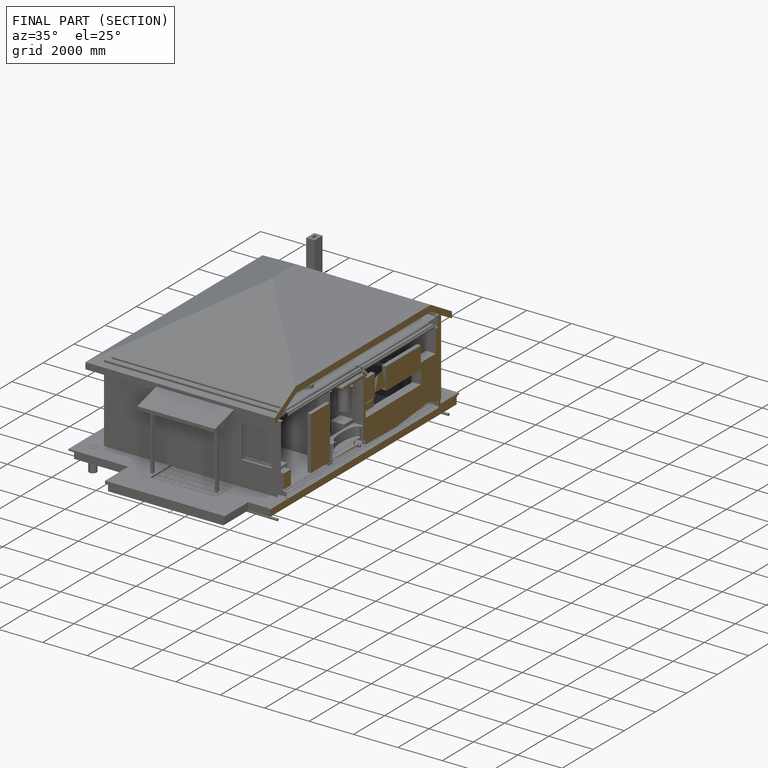
[diagram: finished part — half-section view (interior)]
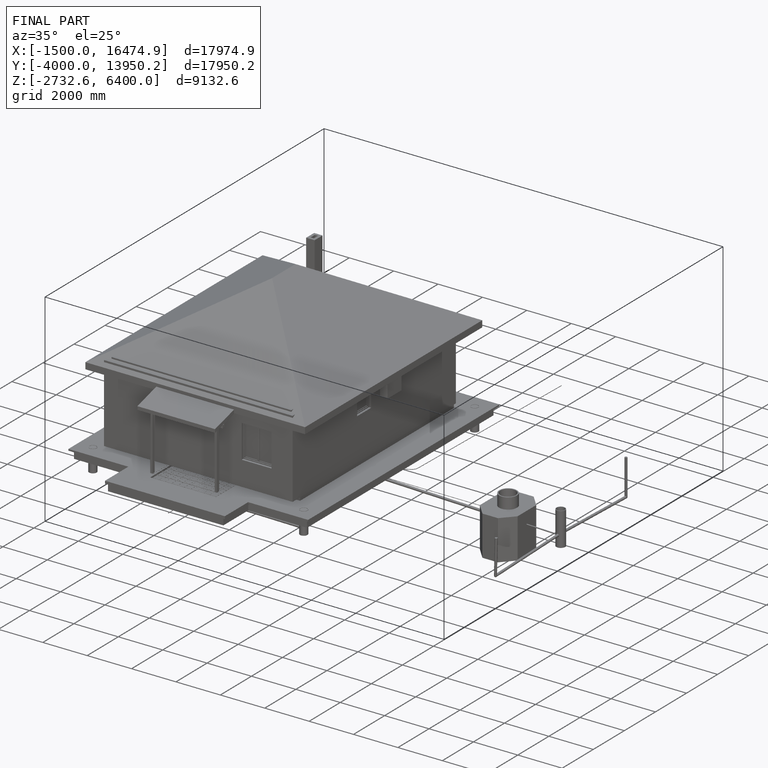
[diagram: finished part — iso view with bounding-box wireframe]
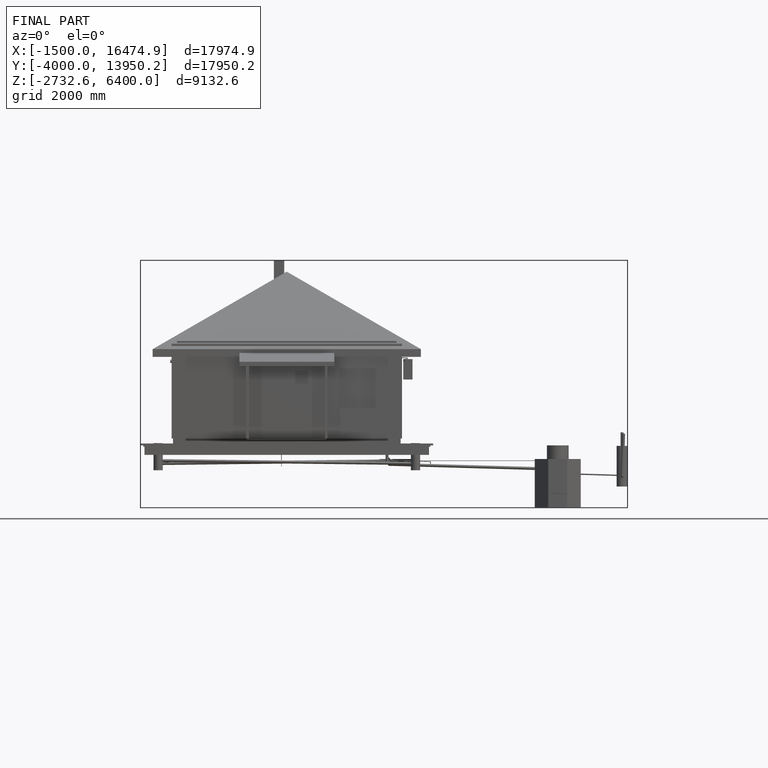
[diagram: finished part — front view with bounding-box wireframe]
